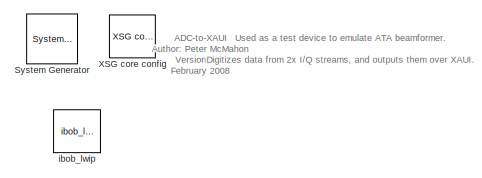
[diagram: root canvas - part 1/5, top left region]
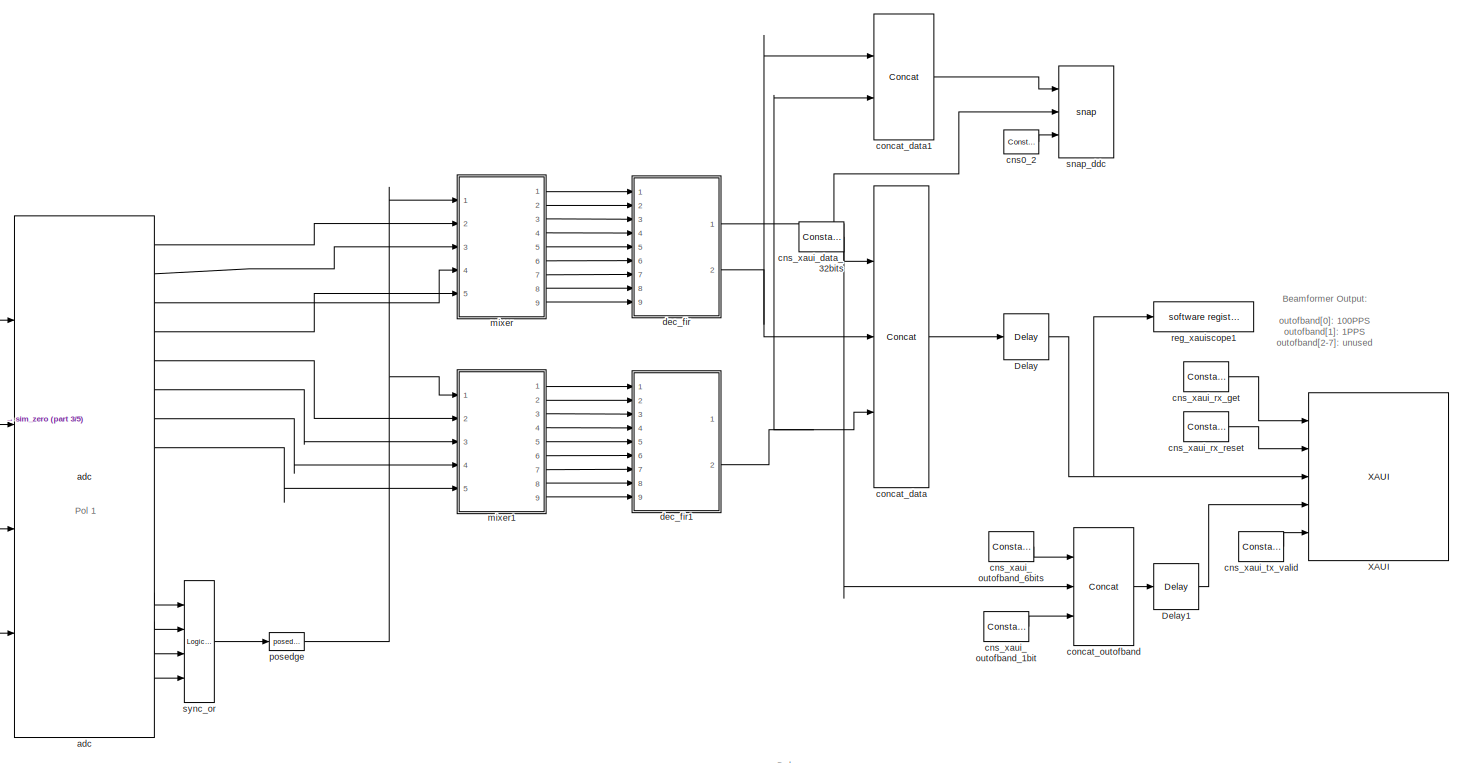
[diagram: root canvas - part 2/5, top left region]
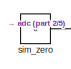
[diagram: root canvas - part 3/5, top left region]
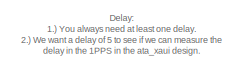
[diagram: root canvas - part 4/5, middle left region]
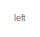
[diagram: root canvas - part 5/5, bottom right region]
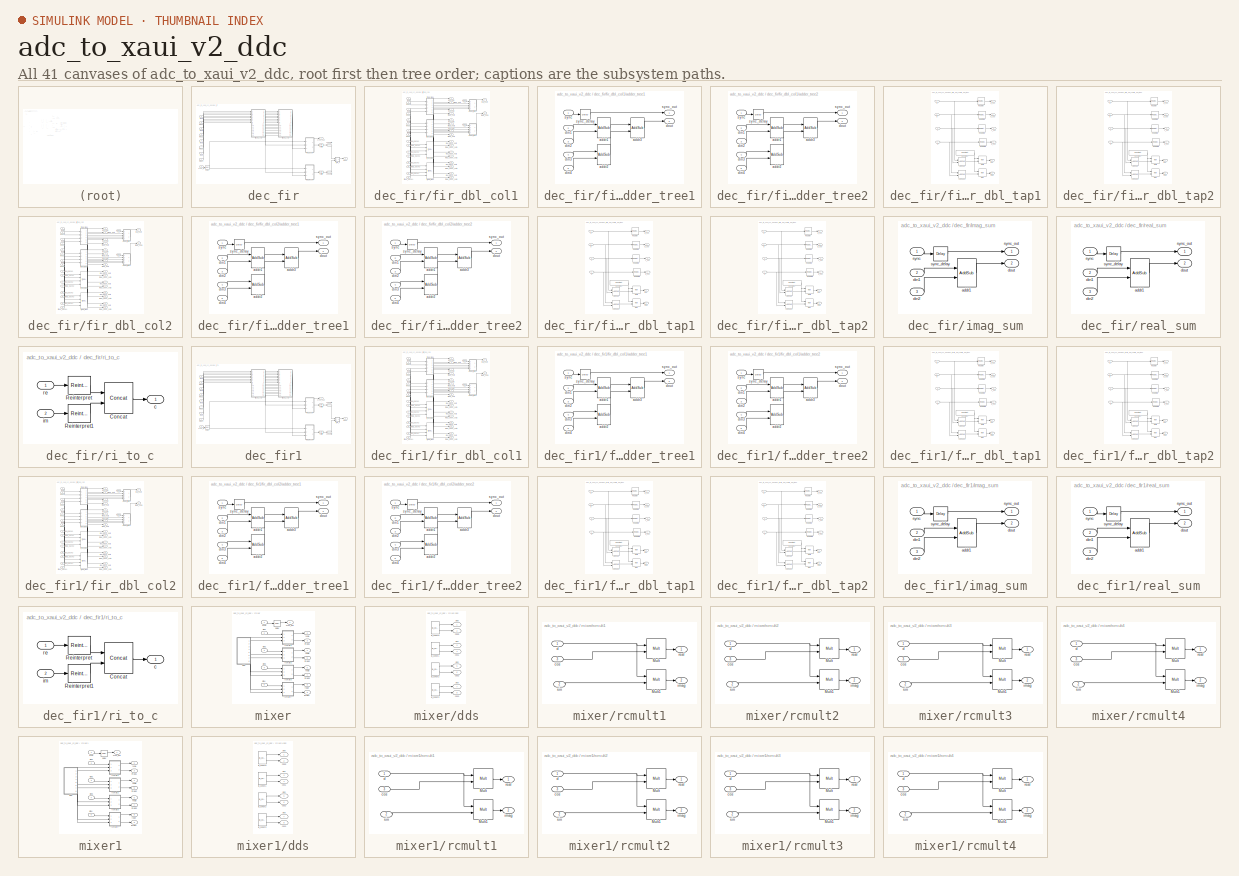
[diagram: thumbnail index - all 41 canvases of the model, root first then tree order]
MODEL adc_to_xaui_v2_ddc
KIND model
BLOCK [Reference]  System Generator  REF=xbsIndex_r3/ System Generator
  AttributesFormatString = System\\nGenerator
  Ports = []
  ShowPortLabels = on
  SourceBlock = xbsIndex_r3/ System Generator
  SourceType = Xilinx System Generator
  Tag = genX
  UserData = DataTag0
  UserDataPersistent = on
  core_generation = According to Block Masks
  dbl_ovrd = According to Block Masks
  deprecated_control = off
  directory = ./adc_to_xaui_v2_ddc/sysgen
  eval_field = 0
  incr_netlist = off
  package = ff1152
  part = xc2vp50
  run_coregen = off
  simulink_period = 1
  speed = -7
  synthesis_tool = XST
  sysclk_period = 8
  testbench = off
  trim_vbits = Everywhere in SubSystem
  xilinxfamily = Virtex2P
BLOCK [Reference] Delay  REF=xbsIndex_r3/Delay
  Ports = [1, 1]
  SourceBlock = xbsIndex_r3/Delay
  SourceType = Xilinx Delay Block
  accept_only_valid = off
  dbl_ovrd = off
  en = off
  explicit_period = off
  init_zero = on
  latency = 5
  period = 1
  reg_retiming = off
  show_param = off
  xl_area = [0, 0, 0, 0, 0, 0, 0]
  xl_use_area = off
BLOCK [Reference] Delay1  REF=xbsIndex_r3/Delay
  Ports = [1, 1]
  SourceBlock = xbsIndex_r3/Delay
  SourceType = Xilinx Delay Block
  accept_only_valid = off
  dbl_ovrd = off
  en = off
  explicit_period = off
  init_zero = on
  latency = 5
  period = 1
  reg_retiming = off
  show_param = off
  xl_area = [0, 0, 0, 0, 0, 0, 0]
  xl_use_area = off
BLOCK [Reference] XAUI  REF=xps_library/XAUI  (lib defined in mdl_00b5cec29cd0, mdl_02ab6ecaa3d1, +5 more)
  Ports = [5, 7]
  ShowPortLabels = on
  SourceBlock = xps_library/XAUI
  SourceType = xaui
  Tag = xps:xaui
  demux = 1
  port = iBOB:1
  pre_emph = 2
  show_param = on
  swing = 800
BLOCK [Reference] XSG core config  REF=xps_library/XSG core config  (lib defined in mdl_00b5cec29cd0, mdl_02ab6ecaa3d1, +5 more)
  Ports = []
  ShowPortLabels = on
  SourceBlock = xps_library/XSG core config
  SourceType = xsg core config
  Tag = xps:xsg
  clk_rate = 125
  clk_src = adc0_clk
  gpio_clk_bit_index = 0
  gpio_clk_io_group = iBOB:sma
  hw_sys = iBOB
  ibob_linux = off
  mpc_type = powerpc405
  sample_period = 1
  synthesis_tool = XST
BLOCK [Reference] adc  REF=xps_library/adc  (lib defined in mdl_00b5cec29cd0, mdl_02ab6ecaa3d1, +5 more)
  Ports = [4, 17]
  ShowPortLabels = on
  SourceBlock = xps_library/adc
  SourceType = adc
  Tag = xps:adc
  adc_brd = iBOB:adc0
  adc_clk_rate = 500
  adc_interleave = off
  sample_period = 1
BLOCK [Reference] cns0_2  REF=xbsIndex_r3/Constant
  Ports = [0, 1]
  SourceBlock = xbsIndex_r3/Constant
  SourceType = Xilinx Constant Block
  arith_type = Boolean
  bin_pt = 0
  carry = CIN
  const = 0
  dbl_ovrd = off
  equ = P=C
  explicit_period = on
  inp1 = P
  inp2 = PCIN>>17
  iostate = 0
  n_bits = 1
  opr = +
  opselect = C
  period = 1
BLOCK [Reference] cns_xaui_data_32bits  REF=xbsIndex_r3/Constant
  Ports = [0, 1]
  SourceBlock = xbsIndex_r3/Constant
  SourceType = Xilinx Constant Block
  arith_type = Unsigned
  bin_pt = 0
  carry = CIN
  const = 0
  dbl_ovrd = off
  equ = P=C
  explicit_period = on
  inp1 = P
  inp2 = PCIN>>17
  iostate = 0
  n_bits = 32
  opr = +
  opselect = C
  period = 1
BLOCK [Reference] cns_xaui_outofband_1bit  REF=xbsIndex_r3/Constant
  Ports = [0, 1]
  SourceBlock = xbsIndex_r3/Constant
  SourceType = Xilinx Constant Block
  arith_type = Unsigned
  bin_pt = 0
  carry = CIN
  const = 0
  dbl_ovrd = off
  equ = P=C
  explicit_period = on
  inp1 = P
  inp2 = PCIN>>17
  iostate = 0
  n_bits = 1
  opr = +
  opselect = C
  period = 1
BLOCK [Reference] cns_xaui_outofband_6bits  REF=xbsIndex_r3/Constant
  Ports = [0, 1]
  SourceBlock = xbsIndex_r3/Constant
  SourceType = Xilinx Constant Block
  arith_type = Unsigned
  bin_pt = 0
  carry = CIN
  const = 0
  dbl_ovrd = off
  equ = P=C
  explicit_period = on
  inp1 = P
  inp2 = PCIN>>17
  iostate = 0
  n_bits = 6
  opr = +
  opselect = C
  period = 1
BLOCK [Reference] cns_xaui_rx_get  REF=xbsIndex_r3/Constant
  Ports = [0, 1]
  SourceBlock = xbsIndex_r3/Constant
  SourceType = Xilinx Constant Block
  arith_type = Boolean
  bin_pt = 0
  carry = CIN
  const = 1
  dbl_ovrd = off
  equ = P=C
  explicit_period = on
  inp1 = P
  inp2 = PCIN>>17
  iostate = 0
  n_bits = 1
  opr = +
  opselect = C
  period = 1
BLOCK [Reference] cns_xaui_rx_reset  REF=xbsIndex_r3/Constant
  Ports = [0, 1]
  SourceBlock = xbsIndex_r3/Constant
  SourceType = Xilinx Constant Block
  arith_type = Boolean
  bin_pt = 0
  carry = CIN
  const = 0
  dbl_ovrd = off
  equ = P=C
  explicit_period = on
  inp1 = P
  inp2 = PCIN>>17
  iostate = 0
  n_bits = 1
  opr = +
  opselect = C
  period = 1
BLOCK [Reference] cns_xaui_tx_valid  REF=xbsIndex_r3/Constant
  Ports = [0, 1]
  SourceBlock = xbsIndex_r3/Constant
  SourceType = Xilinx Constant Block
  arith_type = Boolean
  bin_pt = 0
  carry = CIN
  const = 1
  dbl_ovrd = off
  equ = P=C
  explicit_period = on
  inp1 = P
  inp2 = PCIN>>17
  iostate = 0
  n_bits = 8
  opr = +
  opselect = C
  period = 1
BLOCK [Reference] concat_data  REF=xbsIndex_r3/Concat
  Ports = [3, 1]
  SourceBlock = xbsIndex_r3/Concat
  SourceType = Xilinx Bus Concatenator
  dbl_ovrd = off
  explicit_period = off
  num_inputs = 3
  period = 1
BLOCK [Reference] concat_data1  REF=xbsIndex_r3/Concat
  Ports = [2, 1]
  SourceBlock = xbsIndex_r3/Concat
  SourceType = Xilinx Bus Concatenator
  dbl_ovrd = off
  explicit_period = off
  num_inputs = 2
  period = 1
BLOCK [Reference] concat_outofband  REF=xbsIndex_r3/Concat
  Ports = [3, 1]
  SourceBlock = xbsIndex_r3/Concat
  SourceType = Xilinx Bus Concatenator
  dbl_ovrd = off
  explicit_period = off
  num_inputs = 3
  period = 1
BLOCK [SubSystem] dec_fir
  AncestorBlock = casper_library/Downconverter/dec_fir
  AttributesFormatString = 16 taps\n8_7 r/i
  MaskCallbackString = |||||
  MaskDescription = FIR filter which can handle multiple time samples in parallel and decimates down to 1 time sample.  If coefficients are symmetric, will automatically fold before multiplying.
  MaskEnableString = on,on,on,on,on,on
  MaskHelp = \n<h1>Description</h1>\n\nFIR filter which can handle multiple time samples in parallel and decimates down to 1 time sample.  If coefficients are symmetric, will automatically fold before multiplying.\n\n<h2>Mask Parameters</h2>\n\n<b>Number of Parallel Streams</b> (n_inputs): The number of time samples which arrive in parallel.<br><br>\n\n<b>Coefficients</b> (coeff): The FIR coefficients.  If thi...<+492ch>
  MaskIconFrame = on
  MaskIconOpaque = on
  MaskIconRotate = none
  MaskIconUnits = autoscale
  MaskInitialization = dec_fir_init(gcb, ...\n    'n_inputs', n_inputs, ...\n    'coeff', coeff, ...\n    'n_bits', n_bits, ...\n    'quantization', quantization, ...\n    'add_latency', add_latency, ...\n    'mult_latency', mult_latency);
  MaskPromptString = Number of Parallel Streams|Coefficients|Bit Width Out|Quantization Behavior|Add Latency|Mult Latency
  MaskSelfModifiable = on
  MaskStyleString = edit,edit,edit,popup(Truncate|Round  (unbiased: +/- Inf)|Round  (unbiased: Even Values)),edit,edit
  MaskTabNameString = ,,,,,
  MaskToolTipString = on,on,on,on,on,on
  MaskTunableValueString = on,on,on,on,on,on
  MaskType = dec_fir
  MaskValueString = 4|.9 * [-0.0161   -0.0428   -0.0504   -0.0249    0.0354    0.1170    0.1948    0.2422    0.2422    0.1948    0.1170  0.0354   -0.0249   -0.0504   -0.0428   -0.0161]|8|Round  (unbiased: Even Values)|2|2
  MaskVarAliasString = ,,,,,
  MaskVariables = n_inputs=@1;coeff=@2;n_bits=@3;quantization=&4;add_latency=@5;mult_latency=@6;
  MaskVisibilityString = on,on,on,on,on,on
  MinAlgLoopOccurrences = off
  Ports = [9, 2]
  RTWSystemCode = Auto
  TreatAsAtomicUnit = off
  UserData = DataTag1
  UserDataPersistent = on
BLOCK [Reference] dec_fir/convert1  REF=xbsIndex_r3/Convert
  Ports = [1, 1]
  SourceBlock = xbsIndex_r3/Convert
  SourceType = Xilinx Converter Block
  arith_type = Signed  (2's comp)
  bin_pt = 7
  dbl_ovrd = off
  explicit_period = on
  inserted_by_tool = off
  latency = 2
  n_bits = 8
  overflow = Saturate
  period = 1
  pipeline = on
  quantization = Round  (unbiased: Even Values)
  show_param = on
  xl_area = [0, 0, 0, 0, 0, 0, 0]
  xl_use_area = off
BLOCK [Reference] dec_fir/convert2  REF=xbsIndex_r3/Convert
  Ports = [1, 1]
  SourceBlock = xbsIndex_r3/Convert
  SourceType = Xilinx Converter Block
  arith_type = Signed  (2's comp)
  bin_pt = 7
  dbl_ovrd = off
  explicit_period = on
  inserted_by_tool = off
  latency = 2
  n_bits = 8
  overflow = Saturate
  period = 1
  pipeline = on
  quantization = Round  (unbiased: Even Values)
  show_param = on
  xl_area = [0, 0, 0, 0, 0, 0, 0]
  xl_use_area = off
BLOCK [Reference] dec_fir/delay  REF=xbsIndex_r3/Delay
  Ports = [1, 1]
  SourceBlock = xbsIndex_r3/Delay
  SourceType = Xilinx Delay Block
  accept_only_valid = off
  dbl_ovrd = off
  en = off
  explicit_period = off
  init_zero = on
  latency = 12
  period = 1
  reg_retiming = off
  show_param = off
  xl_area = [0, 0, 0, 0, 0, 0, 0]
  xl_use_area = off
BLOCK [Outport] dec_fir/dout
  BusOutputAsStruct = off
  IconDisplay = Port number
  Port = 2
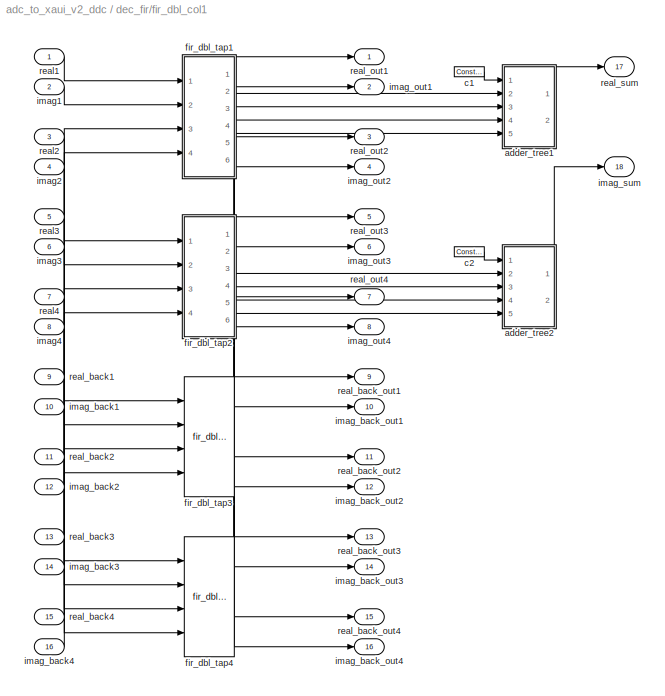
BLOCK [SubSystem] dec_fir/fir_dbl_col1
  AncestorBlock = casper_library/Downconverter/fir_dbl_col
  MaskCallbackString = |||
  MaskEnableString = on,on,on,on
  MaskIconFrame = on
  MaskIconOpaque = on
  MaskIconRotate = none
  MaskIconUnits = autoscale
  MaskInitialization = fir_dbl_col_init(gcb, ...\n    'n_inputs', n_inputs, ...\n    'coeff', coeff, ...\n    'mult_latency', mult_latency, ...\n    'add_latency', add_latency);
  MaskPromptString = Inputs|Coefficients|Add latency|Mult Latency
  MaskSelfModifiable = on
  MaskStyleString = edit,edit,edit,edit
  MaskTabNameString = ,,,
  MaskToolTipString = on,on,on,on
  MaskTunableValueString = on,on,on,on
  MaskType = fir_dbl_col
  MaskValueString = 4|[-0.02241 -0.04536 -0.03852 -0.01449]|2|2
  MaskVarAliasString = ,,,
  MaskVariables = n_inputs=@1;coeff=@2;add_latency=@3;mult_latency=@4;
  MaskVisibilityString = on,on,on,on
  MinAlgLoopOccurrences = off
  Ports = [16, 18]
  RTWSystemCode = Auto
  TreatAsAtomicUnit = off
  UserData = DataTag2
  UserDataPersistent = on
BLOCK [SubSystem] dec_fir/fir_dbl_col1/adder_tree1
  AncestorBlock = casper_library/Misc/adder_tree
  AttributesFormatString = latency 4
  MaskCallbackString = |
  MaskDescription = Sums all inputs using a tree of adds and delays.
  MaskEnableString = on,on
  MaskHelp = eval('xlWeb([getenv(''MLIB_ROOT''), ''<path>''])')
  MaskIconFrame = on
  MaskIconOpaque = on
  MaskIconRotate = none
  MaskIconUnits = autoscale
  MaskInitialization = adder_tree_init(gcb, ...\n    'n_inputs', n_inputs, ...\n    'latency', latency);
  MaskPromptString = Number of Inputs|Add Latency
  MaskSelfModifiable = on
  MaskStyleString = edit,edit
  MaskTabNameString = ,
  MaskToolTipString = on,on
  MaskTunableValueString = on,on
  MaskType = adder_tree
  MaskValueString = 4|2
  MaskVarAliasString = ,
  MaskVariables = n_inputs=@1;latency=@2;
  MaskVisibilityString = on,on
  MinAlgLoopOccurrences = off
  Ports = [5, 2]
  RTWSystemCode = Auto
  TreatAsAtomicUnit = off
  UserData = DataTag3
  UserDataPersistent = on
BLOCK [Reference] dec_fir/fir_dbl_col1/adder_tree1/addr1  REF=xbsIndex_r3/AddSub
  Ports = [2, 1]
  SourceBlock = xbsIndex_r3/AddSub
  SourceType = Xilinx Adder/Subtractor
  arith_type = Unsigned
  bin_pt = 2
  dbl_ovrd = off
  en = off
  explicit_period = off
  gen_core = off
  latency = 2
  mode = Addition
  n_bits = 8
  overflow = Wrap
  period = 1
  pipeline = on
  precision = Full
  quantization = Truncate
  show_param = off
  use_carryin = off
  use_carryout = off
  use_core = on
  use_rpm = on
  xl_area = [0, 0, 0, 0, 0, 0, 0]
  xl_use_area = off
BLOCK [Reference] dec_fir/fir_dbl_col1/adder_tree1/addr2  REF=xbsIndex_r3/AddSub
  Ports = [2, 1]
  SourceBlock = xbsIndex_r3/AddSub
  SourceType = Xilinx Adder/Subtractor
  arith_type = Unsigned
  bin_pt = 2
  dbl_ovrd = off
  en = off
  explicit_period = off
  gen_core = off
  latency = 2
  mode = Addition
  n_bits = 8
  overflow = Wrap
  period = 1
  pipeline = on
  precision = Full
  quantization = Truncate
  show_param = off
  use_carryin = off
  use_carryout = off
  use_core = on
  use_rpm = on
  xl_area = [0, 0, 0, 0, 0, 0, 0]
  xl_use_area = off
BLOCK [Reference] dec_fir/fir_dbl_col1/adder_tree1/addr3  REF=xbsIndex_r3/AddSub
  Ports = [2, 1]
  SourceBlock = xbsIndex_r3/AddSub
  SourceType = Xilinx Adder/Subtractor
  arith_type = Unsigned
  bin_pt = 2
  dbl_ovrd = off
  en = off
  explicit_period = off
  gen_core = off
  latency = 2
  mode = Addition
  n_bits = 8
  overflow = Wrap
  period = 1
  pipeline = on
  precision = Full
  quantization = Truncate
  show_param = off
  use_carryin = off
  use_carryout = off
  use_core = on
  use_rpm = on
  xl_area = [0, 0, 0, 0, 0, 0, 0]
  xl_use_area = off
BLOCK [Inport] dec_fir/fir_dbl_col1/adder_tree1/din1
  IconDisplay = Port number
  LatchInput = off
  Port = 2
BLOCK [Inport] dec_fir/fir_dbl_col1/adder_tree1/din2
  IconDisplay = Port number
  LatchInput = off
  Port = 3
BLOCK [Inport] dec_fir/fir_dbl_col1/adder_tree1/din3
  IconDisplay = Port number
  LatchInput = off
  Port = 4
BLOCK [Inport] dec_fir/fir_dbl_col1/adder_tree1/din4
  IconDisplay = Port number
  LatchInput = off
  Port = 5
BLOCK [Outport] dec_fir/fir_dbl_col1/adder_tree1/dout
  BusOutputAsStruct = off
  IconDisplay = Port number
  Port = 2
BLOCK [Inport] dec_fir/fir_dbl_col1/adder_tree1/sync
  IconDisplay = Port number
  LatchInput = off
  Port = 1
BLOCK [Reference] dec_fir/fir_dbl_col1/adder_tree1/sync_delay  REF=xbsIndex_r3/Delay
  Ports = [1, 1]
  SourceBlock = xbsIndex_r3/Delay
  SourceType = Xilinx Delay Block
  accept_only_valid = off
  dbl_ovrd = off
  en = off
  explicit_period = off
  init_zero = on
  latency = 4
  period = 1
  reg_retiming = off
  show_param = off
  xl_area = [0, 0, 0, 0, 0, 0, 0]
  xl_use_area = off
BLOCK [Outport] dec_fir/fir_dbl_col1/adder_tree1/sync_out
  BusOutputAsStruct = off
  IconDisplay = Port number
BLOCK [SubSystem] dec_fir/fir_dbl_col1/adder_tree2
  AncestorBlock = casper_library/Misc/adder_tree
  AttributesFormatString = latency 4
  MaskCallbackString = |
  MaskDescription = Sums all inputs using a tree of adds and delays.
  MaskEnableString = on,on
  MaskHelp = eval('xlWeb([getenv(''MLIB_ROOT''), ''<path>''])')
  MaskIconFrame = on
  MaskIconOpaque = on
  MaskIconRotate = none
  MaskIconUnits = autoscale
  MaskInitialization = adder_tree_init(gcb, ...\n    'n_inputs', n_inputs, ...\n    'latency', latency);
  MaskPromptString = Number of Inputs|Add Latency
  MaskSelfModifiable = on
  MaskStyleString = edit,edit
  MaskTabNameString = ,
  MaskToolTipString = on,on
  MaskTunableValueString = on,on
  MaskType = adder_tree
  MaskValueString = 4|2
  MaskVarAliasString = ,
  MaskVariables = n_inputs=@1;latency=@2;
  MaskVisibilityString = on,on
  MinAlgLoopOccurrences = off
  Ports = [5, 2]
  RTWSystemCode = Auto
  TreatAsAtomicUnit = off
  UserData = DataTag4
  UserDataPersistent = on
BLOCK [Reference] dec_fir/fir_dbl_col1/adder_tree2/addr1  REF=xbsIndex_r3/AddSub
  Ports = [2, 1]
  SourceBlock = xbsIndex_r3/AddSub
  SourceType = Xilinx Adder/Subtractor
  arith_type = Unsigned
  bin_pt = 2
  dbl_ovrd = off
  en = off
  explicit_period = off
  gen_core = off
  latency = 2
  mode = Addition
  n_bits = 8
  overflow = Wrap
  period = 1
  pipeline = on
  precision = Full
  quantization = Truncate
  show_param = off
  use_carryin = off
  use_carryout = off
  use_core = on
  use_rpm = on
  xl_area = [0, 0, 0, 0, 0, 0, 0]
  xl_use_area = off
BLOCK [Reference] dec_fir/fir_dbl_col1/adder_tree2/addr2  REF=xbsIndex_r3/AddSub
  Ports = [2, 1]
  SourceBlock = xbsIndex_r3/AddSub
  SourceType = Xilinx Adder/Subtractor
  arith_type = Unsigned
  bin_pt = 2
  dbl_ovrd = off
  en = off
  explicit_period = off
  gen_core = off
  latency = 2
  mode = Addition
  n_bits = 8
  overflow = Wrap
  period = 1
  pipeline = on
  precision = Full
  quantization = Truncate
  show_param = off
  use_carryin = off
  use_carryout = off
  use_core = on
  use_rpm = on
  xl_area = [0, 0, 0, 0, 0, 0, 0]
  xl_use_area = off
BLOCK [Reference] dec_fir/fir_dbl_col1/adder_tree2/addr3  REF=xbsIndex_r3/AddSub
  Ports = [2, 1]
  SourceBlock = xbsIndex_r3/AddSub
  SourceType = Xilinx Adder/Subtractor
  arith_type = Unsigned
  bin_pt = 2
  dbl_ovrd = off
  en = off
  explicit_period = off
  gen_core = off
  latency = 2
  mode = Addition
  n_bits = 8
  overflow = Wrap
  period = 1
  pipeline = on
  precision = Full
  quantization = Truncate
  show_param = off
  use_carryin = off
  use_carryout = off
  use_core = on
  use_rpm = on
  xl_area = [0, 0, 0, 0, 0, 0, 0]
  xl_use_area = off
BLOCK [Inport] dec_fir/fir_dbl_col1/adder_tree2/din1
  IconDisplay = Port number
  LatchInput = off
  Port = 2
BLOCK [Inport] dec_fir/fir_dbl_col1/adder_tree2/din2
  IconDisplay = Port number
  LatchInput = off
  Port = 3
BLOCK [Inport] dec_fir/fir_dbl_col1/adder_tree2/din3
  IconDisplay = Port number
  LatchInput = off
  Port = 4
BLOCK [Inport] dec_fir/fir_dbl_col1/adder_tree2/din4
  IconDisplay = Port number
  LatchInput = off
  Port = 5
BLOCK [Outport] dec_fir/fir_dbl_col1/adder_tree2/dout
  BusOutputAsStruct = off
  IconDisplay = Port number
  Port = 2
BLOCK [Inport] dec_fir/fir_dbl_col1/adder_tree2/sync
  IconDisplay = Port number
  LatchInput = off
  Port = 1
BLOCK [Reference] dec_fir/fir_dbl_col1/adder_tree2/sync_delay  REF=xbsIndex_r3/Delay
  Ports = [1, 1]
  SourceBlock = xbsIndex_r3/Delay
  SourceType = Xilinx Delay Block
  accept_only_valid = off
  dbl_ovrd = off
  en = off
  explicit_period = off
  init_zero = on
  latency = 4
  period = 1
  reg_retiming = off
  show_param = off
  xl_area = [0, 0, 0, 0, 0, 0, 0]
  xl_use_area = off
BLOCK [Outport] dec_fir/fir_dbl_col1/adder_tree2/sync_out
  BusOutputAsStruct = off
  IconDisplay = Port number
BLOCK [Reference] dec_fir/fir_dbl_col1/c1  REF=xbsIndex_r3/Constant
  Ports = [0, 1]
  SourceBlock = xbsIndex_r3/Constant
  SourceType = Xilinx Constant Block
  arith_type = Unsigned
  bin_pt = 0
  carry = CIN
  const = 1
  dbl_ovrd = off
  equ = P=C
  explicit_period = on
  inp1 = P
  inp2 = PCIN>>17
  iostate = 0
  n_bits = 1
  opr = +
  opselect = C
  period = 1
BLOCK [Reference] dec_fir/fir_dbl_col1/c2  REF=xbsIndex_r3/Constant
  Ports = [0, 1]
  SourceBlock = xbsIndex_r3/Constant
  SourceType = Xilinx Constant Block
  arith_type = Unsigned
  bin_pt = 0
  carry = CIN
  const = 1
  dbl_ovrd = off
  equ = P=C
  explicit_period = on
  inp1 = P
  inp2 = PCIN>>17
  iostate = 0
  n_bits = 1
  opr = +
  opselect = C
  period = 1
BLOCK [SubSystem] dec_fir/fir_dbl_col1/fir_dbl_tap1
  AncestorBlock = casper_library/Downconverter/fir_dbl_tap
  MaskCallbackString = ||
  MaskEnableString = on,on,on
  MaskIconFrame = on
  MaskIconOpaque = on
  MaskIconRotate = none
  MaskIconUnits = autoscale
  MaskPromptString = factor|Add latency|Mult latency
  MaskSelfModifiable = on
  MaskStyleString = edit,edit,edit
  MaskTabNameString = ,,
  MaskToolTipString = on,on,on
  MaskTunableValueString = on,on,on
  MaskType = fir_dbl_tap
  MaskValueString = -0.02241|2|2
  MaskVarAliasString = ,,
  MaskVariables = factor=@1;add_latency=@2;mult_latency=@3;
  MaskVisibilityString = on,on,on
  MinAlgLoopOccurrences = off
  Ports = [4, 6]
  RTWSystemCode = Auto
  TreatAsAtomicUnit = off
BLOCK [Reference] dec_fir/fir_dbl_col1/fir_dbl_tap1/AddSub  REF=xbsIndex_r3/AddSub
  Ports = [2, 1]
  SourceBlock = xbsIndex_r3/AddSub
  SourceType = Xilinx Adder/Subtractor
  arith_type = Signed  (2's comp)
  bin_pt = 16
  dbl_ovrd = off
  en = off
  explicit_period = on
  gen_core = off
  latency = add_latency
  mode = Addition
  n_bits = 18
  overflow = Wrap
  period = 1
  pipeline = off
  precision = User Defined
  quantization = Truncate
  show_param = off
  use_carryin = off
  use_carryout = off
  use_core = on
  use_rpm = on
  xl_area = [0, 0, 0, 0, 0, 0, 0]
  xl_use_area = off
BLOCK [Reference] dec_fir/fir_dbl_col1/fir_dbl_tap1/AddSub1  REF=xbsIndex_r3/AddSub
  Ports = [2, 1]
  SourceBlock = xbsIndex_r3/AddSub
  SourceType = Xilinx Adder/Subtractor
  arith_type = Signed  (2's comp)
  bin_pt = 16
  dbl_ovrd = off
  en = off
  explicit_period = on
  gen_core = off
  latency = add_latency
  mode = Addition
  n_bits = 18
  overflow = Wrap
  period = 1
  pipeline = off
  precision = User Defined
  quantization = Truncate
  show_param = off
  use_carryin = off
  use_carryout = off
  use_core = on
  use_rpm = on
  xl_area = [0, 0, 0, 0, 0, 0, 0]
  xl_use_area = off
BLOCK [Reference] dec_fir/fir_dbl_col1/fir_dbl_tap1/Constant  REF=xbsIndex_r3/Constant
  Ports = [0, 1]
  SourceBlock = xbsIndex_r3/Constant
  SourceType = Xilinx Constant Block
  arith_type = Signed  (2's comp)
  bin_pt = 17
  carry = CIN
  const = factor
  dbl_ovrd = off
  equ = P=C
  explicit_period = on
  inp1 = P
  inp2 = PCIN>>17
  iostate = 0
  n_bits = 18
  opr = +
  opselect = C
  period = 1
BLOCK [Reference] dec_fir/fir_dbl_col1/fir_dbl_tap1/Mult  REF=xbsIndex_r3/Mult
  Ports = [2, 1]
  SourceBlock = xbsIndex_r3/Mult
  SourceType = Xilinx Multiplier
  arith_type = Signed  (2's comp)
  bin_pt = 17
  dbl_ovrd = off
  en = off
  explicit_period = off
  gen_core = off
  latency = mult_latency
  mult_type = Parallel
  n_bits = 18
  overflow = Wrap
  oversample = 2
  period = 1
  pipeline = on
  placement_style = Rectangular Shape
  precision = Full
  quantization = Truncate
  show_param = on
  use_embedded = on
  use_rpm = off
  xl_area = [0, 0, 0, 0, 0, 0, 0]
  xl_use_area = off
BLOCK [Reference] dec_fir/fir_dbl_col1/fir_dbl_tap1/Mult1  REF=xbsIndex_r3/Mult
  Ports = [2, 1]
  SourceBlock = xbsIndex_r3/Mult
  SourceType = Xilinx Multiplier
  arith_type = Signed  (2's comp)
  bin_pt = 17
  dbl_ovrd = off
  en = off
  explicit_period = off
  gen_core = off
  latency = mult_latency
  mult_type = Parallel
  n_bits = 18
  overflow = Wrap
  oversample = 2
  period = 1
  pipeline = on
  placement_style = Rectangular Shape
  precision = Full
  quantization = Truncate
  show_param = on
  use_embedded = on
  use_rpm = off
  xl_area = [0, 0, 0, 0, 0, 0, 0]
  xl_use_area = off
BLOCK [Reference] dec_fir/fir_dbl_col1/fir_dbl_tap1/Register  REF=xbsIndex_r3/Register
  Ports = [1, 1]
  SourceBlock = xbsIndex_r3/Register
  SourceType = Xilinx Register Block
  dbl_ovrd = off
  en = off
  explicit_period = on
  init = 0
  out_en = off
  period = 1
  reg_only_valid = off
  rst = off
  show_param = off
  xl_area = [0, 0, 0, 0, 0, 0, 0]
  xl_use_area = off
BLOCK [Reference] dec_fir/fir_dbl_col1/fir_dbl_tap1/Register1  REF=xbsIndex_r3/Register
  Ports = [1, 1]
  SourceBlock = xbsIndex_r3/Register
  SourceType = Xilinx Register Block
  dbl_ovrd = off
  en = off
  explicit_period = on
  init = 0
  out_en = off
  period = 1
  reg_only_valid = off
  rst = off
  show_param = off
  xl_area = [0, 0, 0, 0, 0, 0, 0]
  xl_use_area = off
BLOCK [Reference] dec_fir/fir_dbl_col1/fir_dbl_tap1/Register2  REF=xbsIndex_r3/Register
  Ports = [1, 1]
  SourceBlock = xbsIndex_r3/Register
  SourceType = Xilinx Register Block
  dbl_ovrd = off
  en = off
  explicit_period = on
  init = 0
  out_en = off
  period = 1
  reg_only_valid = off
  rst = off
  show_param = off
  xl_area = [0, 0, 0, 0, 0, 0, 0]
  xl_use_area = off
BLOCK [Reference] dec_fir/fir_dbl_col1/fir_dbl_tap1/Register3  REF=xbsIndex_r3/Register
  Ports = [1, 1]
  SourceBlock = xbsIndex_r3/Register
  SourceType = Xilinx Register Block
  dbl_ovrd = off
  en = off
  explicit_period = on
  init = 0
  out_en = off
  period = 1
  reg_only_valid = off
  rst = off
  show_param = off
  xl_area = [0, 0, 0, 0, 0, 0, 0]
  xl_use_area = off
BLOCK [Inport] dec_fir/fir_dbl_col1/fir_dbl_tap1/a
  IconDisplay = Port number
  LatchInput = off
  Port = 1
BLOCK [Outport] dec_fir/fir_dbl_col1/fir_dbl_tap1/a_out
  BusOutputAsStruct = off
  IconDisplay = Port number
BLOCK [Inport] dec_fir/fir_dbl_col1/fir_dbl_tap1/b
  IconDisplay = Port number
  LatchInput = off
  Port = 2
BLOCK [Outport] dec_fir/fir_dbl_col1/fir_dbl_tap1/b_out
  BusOutputAsStruct = off
  IconDisplay = Port number
  Port = 2
BLOCK [Inport] dec_fir/fir_dbl_col1/fir_dbl_tap1/c
  IconDisplay = Port number
  LatchInput = off
  Port = 3
BLOCK [Outport] dec_fir/fir_dbl_col1/fir_dbl_tap1/c_out
  BusOutputAsStruct = off
  IconDisplay = Port number
  Port = 3
BLOCK [Inport] dec_fir/fir_dbl_col1/fir_dbl_tap1/d
  IconDisplay = Port number
  LatchInput = off
  Port = 4
BLOCK [Outport] dec_fir/fir_dbl_col1/fir_dbl_tap1/d_out
  BusOutputAsStruct = off
  IconDisplay = Port number
  Port = 4
BLOCK [Outport] dec_fir/fir_dbl_col1/fir_dbl_tap1/imag
  BusOutputAsStruct = off
  IconDisplay = Port number
  Port = 6
BLOCK [Outport] dec_fir/fir_dbl_col1/fir_dbl_tap1/real
  BusOutputAsStruct = off
  IconDisplay = Port number
  Port = 5
BLOCK [SubSystem] dec_fir/fir_dbl_col1/fir_dbl_tap2
  AncestorBlock = casper_library/Downconverter/fir_dbl_tap
  MaskCallbackString = ||
  MaskEnableString = on,on,on
  MaskIconFrame = on
  MaskIconOpaque = on
  MaskIconRotate = none
  MaskIconUnits = autoscale
  MaskPromptString = factor|Add latency|Mult latency
  MaskSelfModifiable = on
  MaskStyleString = edit,edit,edit
  MaskTabNameString = ,,
  MaskToolTipString = on,on,on
  MaskTunableValueString = on,on,on
  MaskType = fir_dbl_tap
  MaskValueString = -0.04536|2|2
  MaskVarAliasString = ,,
  MaskVariables = factor=@1;add_latency=@2;mult_latency=@3;
  MaskVisibilityString = on,on,on
  MinAlgLoopOccurrences = off
  Ports = [4, 6]
  RTWSystemCode = Auto
  TreatAsAtomicUnit = off
BLOCK [Reference] dec_fir/fir_dbl_col1/fir_dbl_tap2/AddSub  REF=xbsIndex_r3/AddSub
  Ports = [2, 1]
  SourceBlock = xbsIndex_r3/AddSub
  SourceType = Xilinx Adder/Subtractor
  arith_type = Signed  (2's comp)
  bin_pt = 16
  dbl_ovrd = off
  en = off
  explicit_period = on
  gen_core = off
  latency = add_latency
  mode = Addition
  n_bits = 18
  overflow = Wrap
  period = 1
  pipeline = off
  precision = User Defined
  quantization = Truncate
  show_param = off
  use_carryin = off
  use_carryout = off
  use_core = on
  use_rpm = on
  xl_area = [0, 0, 0, 0, 0, 0, 0]
  xl_use_area = off
BLOCK [Reference] dec_fir/fir_dbl_col1/fir_dbl_tap2/AddSub1  REF=xbsIndex_r3/AddSub
  Ports = [2, 1]
  SourceBlock = xbsIndex_r3/AddSub
  SourceType = Xilinx Adder/Subtractor
  arith_type = Signed  (2's comp)
  bin_pt = 16
  dbl_ovrd = off
  en = off
  explicit_period = on
  gen_core = off
  latency = add_latency
  mode = Addition
  n_bits = 18
  overflow = Wrap
  period = 1
  pipeline = off
  precision = User Defined
  quantization = Truncate
  show_param = off
  use_carryin = off
  use_carryout = off
  use_core = on
  use_rpm = on
  xl_area = [0, 0, 0, 0, 0, 0, 0]
  xl_use_area = off
BLOCK [Reference] dec_fir/fir_dbl_col1/fir_dbl_tap2/Constant  REF=xbsIndex_r3/Constant
  Ports = [0, 1]
  SourceBlock = xbsIndex_r3/Constant
  SourceType = Xilinx Constant Block
  arith_type = Signed  (2's comp)
  bin_pt = 17
  carry = CIN
  const = factor
  dbl_ovrd = off
  equ = P=C
  explicit_period = on
  inp1 = P
  inp2 = PCIN>>17
  iostate = 0
  n_bits = 18
  opr = +
  opselect = C
  period = 1
BLOCK [Reference] dec_fir/fir_dbl_col1/fir_dbl_tap2/Mult  REF=xbsIndex_r3/Mult
  Ports = [2, 1]
  SourceBlock = xbsIndex_r3/Mult
  SourceType = Xilinx Multiplier
  arith_type = Signed  (2's comp)
  bin_pt = 17
  dbl_ovrd = off
  en = off
  explicit_period = off
  gen_core = off
  latency = mult_latency
  mult_type = Parallel
  n_bits = 18
  overflow = Wrap
  oversample = 2
  period = 1
  pipeline = on
  placement_style = Rectangular Shape
  precision = Full
  quantization = Truncate
  show_param = on
  use_embedded = on
  use_rpm = off
  xl_area = [0, 0, 0, 0, 0, 0, 0]
  xl_use_area = off
BLOCK [Reference] dec_fir/fir_dbl_col1/fir_dbl_tap2/Mult1  REF=xbsIndex_r3/Mult
  Ports = [2, 1]
  SourceBlock = xbsIndex_r3/Mult
  SourceType = Xilinx Multiplier
  arith_type = Signed  (2's comp)
  bin_pt = 17
  dbl_ovrd = off
  en = off
  explicit_period = off
  gen_core = off
  latency = mult_latency
  mult_type = Parallel
  n_bits = 18
  overflow = Wrap
  oversample = 2
  period = 1
  pipeline = on
  placement_style = Rectangular Shape
  precision = Full
  quantization = Truncate
  show_param = on
  use_embedded = on
  use_rpm = off
  xl_area = [0, 0, 0, 0, 0, 0, 0]
  xl_use_area = off
BLOCK [Reference] dec_fir/fir_dbl_col1/fir_dbl_tap2/Register  REF=xbsIndex_r3/Register
  Ports = [1, 1]
  SourceBlock = xbsIndex_r3/Register
  SourceType = Xilinx Register Block
  dbl_ovrd = off
  en = off
  explicit_period = on
  init = 0
  out_en = off
  period = 1
  reg_only_valid = off
  rst = off
  show_param = off
  xl_area = [0, 0, 0, 0, 0, 0, 0]
  xl_use_area = off
BLOCK [Reference] dec_fir/fir_dbl_col1/fir_dbl_tap2/Register1  REF=xbsIndex_r3/Register
  Ports = [1, 1]
  SourceBlock = xbsIndex_r3/Register
  SourceType = Xilinx Register Block
  dbl_ovrd = off
  en = off
  explicit_period = on
  init = 0
  out_en = off
  period = 1
  reg_only_valid = off
  rst = off
  show_param = off
  xl_area = [0, 0, 0, 0, 0, 0, 0]
  xl_use_area = off
BLOCK [Reference] dec_fir/fir_dbl_col1/fir_dbl_tap2/Register2  REF=xbsIndex_r3/Register
  Ports = [1, 1]
  SourceBlock = xbsIndex_r3/Register
  SourceType = Xilinx Register Block
  dbl_ovrd = off
  en = off
  explicit_period = on
  init = 0
  out_en = off
  period = 1
  reg_only_valid = off
  rst = off
  show_param = off
  xl_area = [0, 0, 0, 0, 0, 0, 0]
  xl_use_area = off
BLOCK [Reference] dec_fir/fir_dbl_col1/fir_dbl_tap2/Register3  REF=xbsIndex_r3/Register
  Ports = [1, 1]
  SourceBlock = xbsIndex_r3/Register
  SourceType = Xilinx Register Block
  dbl_ovrd = off
  en = off
  explicit_period = on
  init = 0
  out_en = off
  period = 1
  reg_only_valid = off
  rst = off
  show_param = off
  xl_area = [0, 0, 0, 0, 0, 0, 0]
  xl_use_area = off
BLOCK [Inport] dec_fir/fir_dbl_col1/fir_dbl_tap2/a
  IconDisplay = Port number
  LatchInput = off
  Port = 1
BLOCK [Outport] dec_fir/fir_dbl_col1/fir_dbl_tap2/a_out
  BusOutputAsStruct = off
  IconDisplay = Port number
BLOCK [Inport] dec_fir/fir_dbl_col1/fir_dbl_tap2/b
  IconDisplay = Port number
  LatchInput = off
  Port = 2
BLOCK [Outport] dec_fir/fir_dbl_col1/fir_dbl_tap2/b_out
  BusOutputAsStruct = off
  IconDisplay = Port number
  Port = 2
BLOCK [Inport] dec_fir/fir_dbl_col1/fir_dbl_tap2/c
  IconDisplay = Port number
  LatchInput = off
  Port = 3
BLOCK [Outport] dec_fir/fir_dbl_col1/fir_dbl_tap2/c_out
  BusOutputAsStruct = off
  IconDisplay = Port number
  Port = 3
BLOCK [Inport] dec_fir/fir_dbl_col1/fir_dbl_tap2/d
  IconDisplay = Port number
  LatchInput = off
  Port = 4
BLOCK [Outport] dec_fir/fir_dbl_col1/fir_dbl_tap2/d_out
  BusOutputAsStruct = off
  IconDisplay = Port number
  Port = 4
BLOCK [Outport] dec_fir/fir_dbl_col1/fir_dbl_tap2/imag
  BusOutputAsStruct = off
  IconDisplay = Port number
  Port = 6
BLOCK [Outport] dec_fir/fir_dbl_col1/fir_dbl_tap2/real
  BusOutputAsStruct = off
  IconDisplay = Port number
  Port = 5
BLOCK [Reference] dec_fir/fir_dbl_col1/fir_dbl_tap3  REF=casper_library/Downconverter/fir_dbl_tap  (lib defined in mdl_138b2fc3435f, mdl_4ed325b712b3, +2 more)
  Ports = [4, 6]
  ShowPortLabels = on
  SourceBlock = casper_library/Downconverter/fir_dbl_tap
  SourceType = fir_dbl_tap
  add_latency = 2
  factor = -0.03852
  mult_latency = 2
BLOCK [Reference] dec_fir/fir_dbl_col1/fir_dbl_tap4  REF=casper_library/Downconverter/fir_dbl_tap  (lib defined in mdl_138b2fc3435f, mdl_4ed325b712b3, +2 more)
  Ports = [4, 6]
  ShowPortLabels = on
  SourceBlock = casper_library/Downconverter/fir_dbl_tap
  SourceType = fir_dbl_tap
  add_latency = 2
  factor = -0.01449
  mult_latency = 2
BLOCK [Inport] dec_fir/fir_dbl_col1/imag1
  IconDisplay = Port number
  LatchInput = off
  Port = 2
BLOCK [Inport] dec_fir/fir_dbl_col1/imag2
  IconDisplay = Port number
  LatchInput = off
  Port = 4
BLOCK [Inport] dec_fir/fir_dbl_col1/imag3
  IconDisplay = Port number
  LatchInput = off
  Port = 6
BLOCK [Inport] dec_fir/fir_dbl_col1/imag4
  IconDisplay = Port number
  LatchInput = off
  Port = 8
BLOCK [Inport] dec_fir/fir_dbl_col1/imag_back1
  IconDisplay = Port number
  LatchInput = off
  Port = 10
BLOCK [Inport] dec_fir/fir_dbl_col1/imag_back2
  IconDisplay = Port number
  LatchInput = off
  Port = 12
BLOCK [Inport] dec_fir/fir_dbl_col1/imag_back3
  IconDisplay = Port number
  LatchInput = off
  Port = 14
BLOCK [Inport] dec_fir/fir_dbl_col1/imag_back4
  IconDisplay = Port number
  LatchInput = off
  Port = 16
BLOCK [Outport] dec_fir/fir_dbl_col1/imag_back_out1
  BusOutputAsStruct = off
  IconDisplay = Port number
  Port = 10
BLOCK [Outport] dec_fir/fir_dbl_col1/imag_back_out2
  BusOutputAsStruct = off
  IconDisplay = Port number
  Port = 12
BLOCK [Outport] dec_fir/fir_dbl_col1/imag_back_out3
  BusOutputAsStruct = off
  IconDisplay = Port number
  Port = 14
BLOCK [Outport] dec_fir/fir_dbl_col1/imag_back_out4
  BusOutputAsStruct = off
  IconDisplay = Port number
  Port = 16
BLOCK [Outport] dec_fir/fir_dbl_col1/imag_out1
  BusOutputAsStruct = off
  IconDisplay = Port number
  Port = 2
BLOCK [Outport] dec_fir/fir_dbl_col1/imag_out2
  BusOutputAsStruct = off
  IconDisplay = Port number
  Port = 4
BLOCK [Outport] dec_fir/fir_dbl_col1/imag_out3
  BusOutputAsStruct = off
  IconDisplay = Port number
  Port = 6
BLOCK [Outport] dec_fir/fir_dbl_col1/imag_out4
  BusOutputAsStruct = off
  IconDisplay = Port number
  Port = 8
BLOCK [Outport] dec_fir/fir_dbl_col1/imag_sum
  BusOutputAsStruct = off
  IconDisplay = Port number
  Port = 18
BLOCK [Inport] dec_fir/fir_dbl_col1/real1
  IconDisplay = Port number
  LatchInput = off
  Port = 1
BLOCK [Inport] dec_fir/fir_dbl_col1/real2
  IconDisplay = Port number
  LatchInput = off
  Port = 3
BLOCK [Inport] dec_fir/fir_dbl_col1/real3
  IconDisplay = Port number
  LatchInput = off
  Port = 5
BLOCK [Inport] dec_fir/fir_dbl_col1/real4
  IconDisplay = Port number
  LatchInput = off
  Port = 7
BLOCK [Inport] dec_fir/fir_dbl_col1/real_back1
  IconDisplay = Port number
  LatchInput = off
  Port = 9
BLOCK [Inport] dec_fir/fir_dbl_col1/real_back2
  IconDisplay = Port number
  LatchInput = off
  Port = 11
BLOCK [Inport] dec_fir/fir_dbl_col1/real_back3
  IconDisplay = Port number
  LatchInput = off
  Port = 13
BLOCK [Inport] dec_fir/fir_dbl_col1/real_back4
  IconDisplay = Port number
  LatchInput = off
  Port = 15
BLOCK [Outport] dec_fir/fir_dbl_col1/real_back_out1
  BusOutputAsStruct = off
  IconDisplay = Port number
  Port = 9
BLOCK [Outport] dec_fir/fir_dbl_col1/real_back_out2
  BusOutputAsStruct = off
  IconDisplay = Port number
  Port = 11
BLOCK [Outport] dec_fir/fir_dbl_col1/real_back_out3
  BusOutputAsStruct = off
  IconDisplay = Port number
  Port = 13
BLOCK [Outport] dec_fir/fir_dbl_col1/real_back_out4
  BusOutputAsStruct = off
  IconDisplay = Port number
  Port = 15
BLOCK [Outport] dec_fir/fir_dbl_col1/real_out1
  BusOutputAsStruct = off
  IconDisplay = Port number
BLOCK [Outport] dec_fir/fir_dbl_col1/real_out2
  BusOutputAsStruct = off
  IconDisplay = Port number
  Port = 3
BLOCK [Outport] dec_fir/fir_dbl_col1/real_out3
  BusOutputAsStruct = off
  IconDisplay = Port number
  Port = 5
BLOCK [Outport] dec_fir/fir_dbl_col1/real_out4
  BusOutputAsStruct = off
  IconDisplay = Port number
  Port = 7
BLOCK [Outport] dec_fir/fir_dbl_col1/real_sum
  BusOutputAsStruct = off
  IconDisplay = Port number
  Port = 17
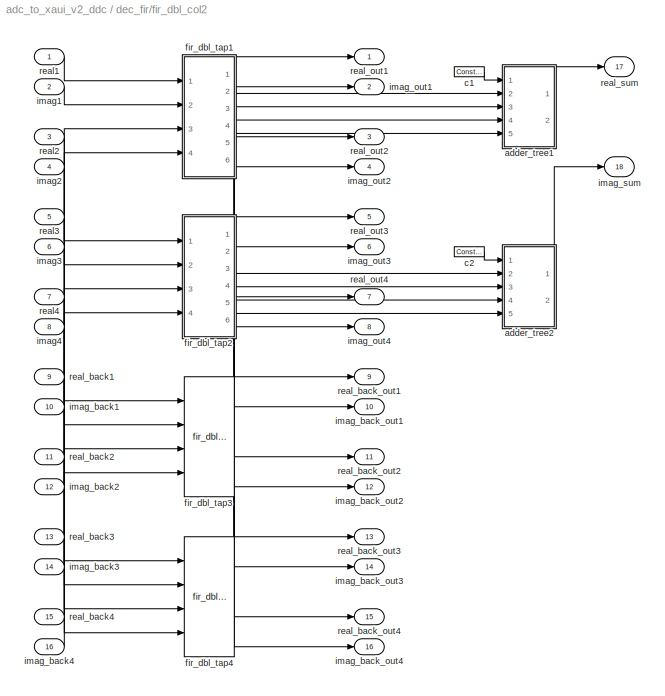
BLOCK [SubSystem] dec_fir/fir_dbl_col2
  AncestorBlock = casper_library/Downconverter/fir_dbl_col
  MaskCallbackString = |||
  MaskEnableString = on,on,on,on
  MaskIconFrame = on
  MaskIconOpaque = on
  MaskIconRotate = none
  MaskIconUnits = autoscale
  MaskInitialization = fir_dbl_col_init(gcb, ...\n    'n_inputs', n_inputs, ...\n    'coeff', coeff, ...\n    'mult_latency', mult_latency, ...\n    'add_latency', add_latency);
  MaskPromptString = Inputs|Coefficients|Add latency|Mult Latency
  MaskSelfModifiable = on
  MaskStyleString = edit,edit,edit,edit
  MaskTabNameString = ,,,
  MaskToolTipString = on,on,on,on
  MaskTunableValueString = on,on,on,on
  MaskType = fir_dbl_col
  MaskValueString = 4|[0.21798 0.17532 0.1053 0.03186]|2|2
  MaskVarAliasString = ,,,
  MaskVariables = n_inputs=@1;coeff=@2;add_latency=@3;mult_latency=@4;
  MaskVisibilityString = on,on,on,on
  MinAlgLoopOccurrences = off
  Ports = [16, 18]
  RTWSystemCode = Auto
  TreatAsAtomicUnit = off
  UserData = DataTag5
  UserDataPersistent = on
BLOCK [SubSystem] dec_fir/fir_dbl_col2/adder_tree1
  AncestorBlock = casper_library/Misc/adder_tree
  AttributesFormatString = latency 4
  MaskCallbackString = |
  MaskDescription = Sums all inputs using a tree of adds and delays.
  MaskEnableString = on,on
  MaskHelp = eval('xlWeb([getenv(''MLIB_ROOT''), ''<path>''])')
  MaskIconFrame = on
  MaskIconOpaque = on
  MaskIconRotate = none
  MaskIconUnits = autoscale
  MaskInitialization = adder_tree_init(gcb, ...\n    'n_inputs', n_inputs, ...\n    'latency', latency);
  MaskPromptString = Number of Inputs|Add Latency
  MaskSelfModifiable = on
  MaskStyleString = edit,edit
  MaskTabNameString = ,
  MaskToolTipString = on,on
  MaskTunableValueString = on,on
  MaskType = adder_tree
  MaskValueString = 4|2
  MaskVarAliasString = ,
  MaskVariables = n_inputs=@1;latency=@2;
  MaskVisibilityString = on,on
  MinAlgLoopOccurrences = off
  Ports = [5, 2]
  RTWSystemCode = Auto
  TreatAsAtomicUnit = off
  UserData = DataTag6
  UserDataPersistent = on
BLOCK [Reference] dec_fir/fir_dbl_col2/adder_tree1/addr1  REF=xbsIndex_r3/AddSub
  Ports = [2, 1]
  SourceBlock = xbsIndex_r3/AddSub
  SourceType = Xilinx Adder/Subtractor
  arith_type = Unsigned
  bin_pt = 2
  dbl_ovrd = off
  en = off
  explicit_period = off
  gen_core = off
  latency = 2
  mode = Addition
  n_bits = 8
  overflow = Wrap
  period = 1
  pipeline = on
  precision = Full
  quantization = Truncate
  show_param = off
  use_carryin = off
  use_carryout = off
  use_core = on
  use_rpm = on
  xl_area = [0, 0, 0, 0, 0, 0, 0]
  xl_use_area = off
BLOCK [Reference] dec_fir/fir_dbl_col2/adder_tree1/addr2  REF=xbsIndex_r3/AddSub
  Ports = [2, 1]
  SourceBlock = xbsIndex_r3/AddSub
  SourceType = Xilinx Adder/Subtractor
  arith_type = Unsigned
  bin_pt = 2
  dbl_ovrd = off
  en = off
  explicit_period = off
  gen_core = off
  latency = 2
  mode = Addition
  n_bits = 8
  overflow = Wrap
  period = 1
  pipeline = on
  precision = Full
  quantization = Truncate
  show_param = off
  use_carryin = off
  use_carryout = off
  use_core = on
  use_rpm = on
  xl_area = [0, 0, 0, 0, 0, 0, 0]
  xl_use_area = off
BLOCK [Reference] dec_fir/fir_dbl_col2/adder_tree1/addr3  REF=xbsIndex_r3/AddSub
  Ports = [2, 1]
  SourceBlock = xbsIndex_r3/AddSub
  SourceType = Xilinx Adder/Subtractor
  arith_type = Unsigned
  bin_pt = 2
  dbl_ovrd = off
  en = off
  explicit_period = off
  gen_core = off
  latency = 2
  mode = Addition
  n_bits = 8
  overflow = Wrap
  period = 1
  pipeline = on
  precision = Full
  quantization = Truncate
  show_param = off
  use_carryin = off
  use_carryout = off
  use_core = on
  use_rpm = on
  xl_area = [0, 0, 0, 0, 0, 0, 0]
  xl_use_area = off
BLOCK [Inport] dec_fir/fir_dbl_col2/adder_tree1/din1
  IconDisplay = Port number
  LatchInput = off
  Port = 2
BLOCK [Inport] dec_fir/fir_dbl_col2/adder_tree1/din2
  IconDisplay = Port number
  LatchInput = off
  Port = 3
BLOCK [Inport] dec_fir/fir_dbl_col2/adder_tree1/din3
  IconDisplay = Port number
  LatchInput = off
  Port = 4
BLOCK [Inport] dec_fir/fir_dbl_col2/adder_tree1/din4
  IconDisplay = Port number
  LatchInput = off
  Port = 5
BLOCK [Outport] dec_fir/fir_dbl_col2/adder_tree1/dout
  BusOutputAsStruct = off
  IconDisplay = Port number
  Port = 2
BLOCK [Inport] dec_fir/fir_dbl_col2/adder_tree1/sync
  IconDisplay = Port number
  LatchInput = off
  Port = 1
BLOCK [Reference] dec_fir/fir_dbl_col2/adder_tree1/sync_delay  REF=xbsIndex_r3/Delay
  Ports = [1, 1]
  SourceBlock = xbsIndex_r3/Delay
  SourceType = Xilinx Delay Block
  accept_only_valid = off
  dbl_ovrd = off
  en = off
  explicit_period = off
  init_zero = on
  latency = 4
  period = 1
  reg_retiming = off
  show_param = off
  xl_area = [0, 0, 0, 0, 0, 0, 0]
  xl_use_area = off
BLOCK [Outport] dec_fir/fir_dbl_col2/adder_tree1/sync_out
  BusOutputAsStruct = off
  IconDisplay = Port number
BLOCK [SubSystem] dec_fir/fir_dbl_col2/adder_tree2
  AncestorBlock = casper_library/Misc/adder_tree
  AttributesFormatString = latency 4
  MaskCallbackString = |
  MaskDescription = Sums all inputs using a tree of adds and delays.
  MaskEnableString = on,on
  MaskHelp = eval('xlWeb([getenv(''MLIB_ROOT''), ''<path>''])')
  MaskIconFrame = on
  MaskIconOpaque = on
  MaskIconRotate = none
  MaskIconUnits = autoscale
  MaskInitialization = adder_tree_init(gcb, ...\n    'n_inputs', n_inputs, ...\n    'latency', latency);
  MaskPromptString = Number of Inputs|Add Latency
  MaskSelfModifiable = on
  MaskStyleString = edit,edit
  MaskTabNameString = ,
  MaskToolTipString = on,on
  MaskTunableValueString = on,on
  MaskType = adder_tree
  MaskValueString = 4|2
  MaskVarAliasString = ,
  MaskVariables = n_inputs=@1;latency=@2;
  MaskVisibilityString = on,on
  MinAlgLoopOccurrences = off
  Ports = [5, 2]
  RTWSystemCode = Auto
  TreatAsAtomicUnit = off
  UserData = DataTag7
  UserDataPersistent = on
BLOCK [Reference] dec_fir/fir_dbl_col2/adder_tree2/addr1  REF=xbsIndex_r3/AddSub
  Ports = [2, 1]
  SourceBlock = xbsIndex_r3/AddSub
  SourceType = Xilinx Adder/Subtractor
  arith_type = Unsigned
  bin_pt = 2
  dbl_ovrd = off
  en = off
  explicit_period = off
  gen_core = off
  latency = 2
  mode = Addition
  n_bits = 8
  overflow = Wrap
  period = 1
  pipeline = on
  precision = Full
  quantization = Truncate
  show_param = off
  use_carryin = off
  use_carryout = off
  use_core = on
  use_rpm = on
  xl_area = [0, 0, 0, 0, 0, 0, 0]
  xl_use_area = off
BLOCK [Reference] dec_fir/fir_dbl_col2/adder_tree2/addr2  REF=xbsIndex_r3/AddSub
  Ports = [2, 1]
  SourceBlock = xbsIndex_r3/AddSub
  SourceType = Xilinx Adder/Subtractor
  arith_type = Unsigned
  bin_pt = 2
  dbl_ovrd = off
  en = off
  explicit_period = off
  gen_core = off
  latency = 2
  mode = Addition
  n_bits = 8
  overflow = Wrap
  period = 1
  pipeline = on
  precision = Full
  quantization = Truncate
  show_param = off
  use_carryin = off
  use_carryout = off
  use_core = on
  use_rpm = on
  xl_area = [0, 0, 0, 0, 0, 0, 0]
  xl_use_area = off
BLOCK [Reference] dec_fir/fir_dbl_col2/adder_tree2/addr3  REF=xbsIndex_r3/AddSub
  Ports = [2, 1]
  SourceBlock = xbsIndex_r3/AddSub
  SourceType = Xilinx Adder/Subtractor
  arith_type = Unsigned
  bin_pt = 2
  dbl_ovrd = off
  en = off
  explicit_period = off
  gen_core = off
  latency = 2
  mode = Addition
  n_bits = 8
  overflow = Wrap
  period = 1
  pipeline = on
  precision = Full
  quantization = Truncate
  show_param = off
  use_carryin = off
  use_carryout = off
  use_core = on
  use_rpm = on
  xl_area = [0, 0, 0, 0, 0, 0, 0]
  xl_use_area = off
BLOCK [Inport] dec_fir/fir_dbl_col2/adder_tree2/din1
  IconDisplay = Port number
  LatchInput = off
  Port = 2
BLOCK [Inport] dec_fir/fir_dbl_col2/adder_tree2/din2
  IconDisplay = Port number
  LatchInput = off
  Port = 3
BLOCK [Inport] dec_fir/fir_dbl_col2/adder_tree2/din3
  IconDisplay = Port number
  LatchInput = off
  Port = 4
BLOCK [Inport] dec_fir/fir_dbl_col2/adder_tree2/din4
  IconDisplay = Port number
  LatchInput = off
  Port = 5
BLOCK [Outport] dec_fir/fir_dbl_col2/adder_tree2/dout
  BusOutputAsStruct = off
  IconDisplay = Port number
  Port = 2
BLOCK [Inport] dec_fir/fir_dbl_col2/adder_tree2/sync
  IconDisplay = Port number
  LatchInput = off
  Port = 1
BLOCK [Reference] dec_fir/fir_dbl_col2/adder_tree2/sync_delay  REF=xbsIndex_r3/Delay
  Ports = [1, 1]
  SourceBlock = xbsIndex_r3/Delay
  SourceType = Xilinx Delay Block
  accept_only_valid = off
  dbl_ovrd = off
  en = off
  explicit_period = off
  init_zero = on
  latency = 4
  period = 1
  reg_retiming = off
  show_param = off
  xl_area = [0, 0, 0, 0, 0, 0, 0]
  xl_use_area = off
BLOCK [Outport] dec_fir/fir_dbl_col2/adder_tree2/sync_out
  BusOutputAsStruct = off
  IconDisplay = Port number
BLOCK [Reference] dec_fir/fir_dbl_col2/c1  REF=xbsIndex_r3/Constant
  Ports = [0, 1]
  SourceBlock = xbsIndex_r3/Constant
  SourceType = Xilinx Constant Block
  arith_type = Unsigned
  bin_pt = 0
  carry = CIN
  const = 1
  dbl_ovrd = off
  equ = P=C
  explicit_period = on
  inp1 = P
  inp2 = PCIN>>17
  iostate = 0
  n_bits = 1
  opr = +
  opselect = C
  period = 1
BLOCK [Reference] dec_fir/fir_dbl_col2/c2  REF=xbsIndex_r3/Constant
  Ports = [0, 1]
  SourceBlock = xbsIndex_r3/Constant
  SourceType = Xilinx Constant Block
  arith_type = Unsigned
  bin_pt = 0
  carry = CIN
  const = 1
  dbl_ovrd = off
  equ = P=C
  explicit_period = on
  inp1 = P
  inp2 = PCIN>>17
  iostate = 0
  n_bits = 1
  opr = +
  opselect = C
  period = 1
BLOCK [SubSystem] dec_fir/fir_dbl_col2/fir_dbl_tap1
  AncestorBlock = casper_library/Downconverter/fir_dbl_tap
  MaskCallbackString = ||
  MaskEnableString = on,on,on
  MaskIconFrame = on
  MaskIconOpaque = on
  MaskIconRotate = none
  MaskIconUnits = autoscale
  MaskPromptString = factor|Add latency|Mult latency
  MaskSelfModifiable = on
  MaskStyleString = edit,edit,edit
  MaskTabNameString = ,,
  MaskToolTipString = on,on,on
  MaskTunableValueString = on,on,on
  MaskType = fir_dbl_tap
  MaskValueString = 0.21798|2|2
  MaskVarAliasString = ,,
  MaskVariables = factor=@1;add_latency=@2;mult_latency=@3;
  MaskVisibilityString = on,on,on
  MinAlgLoopOccurrences = off
  Ports = [4, 6]
  RTWSystemCode = Auto
  TreatAsAtomicUnit = off
BLOCK [Reference] dec_fir/fir_dbl_col2/fir_dbl_tap1/AddSub  REF=xbsIndex_r3/AddSub
  Ports = [2, 1]
  SourceBlock = xbsIndex_r3/AddSub
  SourceType = Xilinx Adder/Subtractor
  arith_type = Signed  (2's comp)
  bin_pt = 16
  dbl_ovrd = off
  en = off
  explicit_period = on
  gen_core = off
  latency = add_latency
  mode = Addition
  n_bits = 18
  overflow = Wrap
  period = 1
  pipeline = off
  precision = User Defined
  quantization = Truncate
  show_param = off
  use_carryin = off
  use_carryout = off
  use_core = on
  use_rpm = on
  xl_area = [0, 0, 0, 0, 0, 0, 0]
  xl_use_area = off
BLOCK [Reference] dec_fir/fir_dbl_col2/fir_dbl_tap1/AddSub1  REF=xbsIndex_r3/AddSub
  Ports = [2, 1]
  SourceBlock = xbsIndex_r3/AddSub
  SourceType = Xilinx Adder/Subtractor
  arith_type = Signed  (2's comp)
  bin_pt = 16
  dbl_ovrd = off
  en = off
  explicit_period = on
  gen_core = off
  latency = add_latency
  mode = Addition
  n_bits = 18
  overflow = Wrap
  period = 1
  pipeline = off
  precision = User Defined
  quantization = Truncate
  show_param = off
  use_carryin = off
  use_carryout = off
  use_core = on
  use_rpm = on
  xl_area = [0, 0, 0, 0, 0, 0, 0]
  xl_use_area = off
BLOCK [Reference] dec_fir/fir_dbl_col2/fir_dbl_tap1/Constant  REF=xbsIndex_r3/Constant
  Ports = [0, 1]
  SourceBlock = xbsIndex_r3/Constant
  SourceType = Xilinx Constant Block
  arith_type = Signed  (2's comp)
  bin_pt = 17
  carry = CIN
  const = factor
  dbl_ovrd = off
  equ = P=C
  explicit_period = on
  inp1 = P
  inp2 = PCIN>>17
  iostate = 0
  n_bits = 18
  opr = +
  opselect = C
  period = 1
BLOCK [Reference] dec_fir/fir_dbl_col2/fir_dbl_tap1/Mult  REF=xbsIndex_r3/Mult
  Ports = [2, 1]
  SourceBlock = xbsIndex_r3/Mult
  SourceType = Xilinx Multiplier
  arith_type = Signed  (2's comp)
  bin_pt = 17
  dbl_ovrd = off
  en = off
  explicit_period = off
  gen_core = off
  latency = mult_latency
  mult_type = Parallel
  n_bits = 18
  overflow = Wrap
  oversample = 2
  period = 1
  pipeline = on
  placement_style = Rectangular Shape
  precision = Full
  quantization = Truncate
  show_param = on
  use_embedded = on
  use_rpm = off
  xl_area = [0, 0, 0, 0, 0, 0, 0]
  xl_use_area = off
BLOCK [Reference] dec_fir/fir_dbl_col2/fir_dbl_tap1/Mult1  REF=xbsIndex_r3/Mult
  Ports = [2, 1]
  SourceBlock = xbsIndex_r3/Mult
  SourceType = Xilinx Multiplier
  arith_type = Signed  (2's comp)
  bin_pt = 17
  dbl_ovrd = off
  en = off
  explicit_period = off
  gen_core = off
  latency = mult_latency
  mult_type = Parallel
  n_bits = 18
  overflow = Wrap
  oversample = 2
  period = 1
  pipeline = on
  placement_style = Rectangular Shape
  precision = Full
  quantization = Truncate
  show_param = on
  use_embedded = on
  use_rpm = off
  xl_area = [0, 0, 0, 0, 0, 0, 0]
  xl_use_area = off
BLOCK [Reference] dec_fir/fir_dbl_col2/fir_dbl_tap1/Register  REF=xbsIndex_r3/Register
  Ports = [1, 1]
  SourceBlock = xbsIndex_r3/Register
  SourceType = Xilinx Register Block
  dbl_ovrd = off
  en = off
  explicit_period = on
  init = 0
  out_en = off
  period = 1
  reg_only_valid = off
  rst = off
  show_param = off
  xl_area = [0, 0, 0, 0, 0, 0, 0]
  xl_use_area = off
BLOCK [Reference] dec_fir/fir_dbl_col2/fir_dbl_tap1/Register1  REF=xbsIndex_r3/Register
  Ports = [1, 1]
  SourceBlock = xbsIndex_r3/Register
  SourceType = Xilinx Register Block
  dbl_ovrd = off
  en = off
  explicit_period = on
  init = 0
  out_en = off
  period = 1
  reg_only_valid = off
  rst = off
  show_param = off
  xl_area = [0, 0, 0, 0, 0, 0, 0]
  xl_use_area = off
BLOCK [Reference] dec_fir/fir_dbl_col2/fir_dbl_tap1/Register2  REF=xbsIndex_r3/Register
  Ports = [1, 1]
  SourceBlock = xbsIndex_r3/Register
  SourceType = Xilinx Register Block
  dbl_ovrd = off
  en = off
  explicit_period = on
  init = 0
  out_en = off
  period = 1
  reg_only_valid = off
  rst = off
  show_param = off
  xl_area = [0, 0, 0, 0, 0, 0, 0]
  xl_use_area = off
BLOCK [Reference] dec_fir/fir_dbl_col2/fir_dbl_tap1/Register3  REF=xbsIndex_r3/Register
  Ports = [1, 1]
  SourceBlock = xbsIndex_r3/Register
  SourceType = Xilinx Register Block
  dbl_ovrd = off
  en = off
  explicit_period = on
  init = 0
  out_en = off
  period = 1
  reg_only_valid = off
  rst = off
  show_param = off
  xl_area = [0, 0, 0, 0, 0, 0, 0]
  xl_use_area = off
BLOCK [Inport] dec_fir/fir_dbl_col2/fir_dbl_tap1/a
  IconDisplay = Port number
  LatchInput = off
  Port = 1
BLOCK [Outport] dec_fir/fir_dbl_col2/fir_dbl_tap1/a_out
  BusOutputAsStruct = off
  IconDisplay = Port number
BLOCK [Inport] dec_fir/fir_dbl_col2/fir_dbl_tap1/b
  IconDisplay = Port number
  LatchInput = off
  Port = 2
BLOCK [Outport] dec_fir/fir_dbl_col2/fir_dbl_tap1/b_out
  BusOutputAsStruct = off
  IconDisplay = Port number
  Port = 2
BLOCK [Inport] dec_fir/fir_dbl_col2/fir_dbl_tap1/c
  IconDisplay = Port number
  LatchInput = off
  Port = 3
BLOCK [Outport] dec_fir/fir_dbl_col2/fir_dbl_tap1/c_out
  BusOutputAsStruct = off
  IconDisplay = Port number
  Port = 3
BLOCK [Inport] dec_fir/fir_dbl_col2/fir_dbl_tap1/d
  IconDisplay = Port number
  LatchInput = off
  Port = 4
BLOCK [Outport] dec_fir/fir_dbl_col2/fir_dbl_tap1/d_out
  BusOutputAsStruct = off
  IconDisplay = Port number
  Port = 4
BLOCK [Outport] dec_fir/fir_dbl_col2/fir_dbl_tap1/imag
  BusOutputAsStruct = off
  IconDisplay = Port number
  Port = 6
BLOCK [Outport] dec_fir/fir_dbl_col2/fir_dbl_tap1/real
  BusOutputAsStruct = off
  IconDisplay = Port number
  Port = 5
BLOCK [SubSystem] dec_fir/fir_dbl_col2/fir_dbl_tap2
  AncestorBlock = casper_library/Downconverter/fir_dbl_tap
  MaskCallbackString = ||
  MaskEnableString = on,on,on
  MaskIconFrame = on
  MaskIconOpaque = on
  MaskIconRotate = none
  MaskIconUnits = autoscale
  MaskPromptString = factor|Add latency|Mult latency
  MaskSelfModifiable = on
  MaskStyleString = edit,edit,edit
  MaskTabNameString = ,,
  MaskToolTipString = on,on,on
  MaskTunableValueString = on,on,on
  MaskType = fir_dbl_tap
  MaskValueString = 0.17532|2|2
  MaskVarAliasString = ,,
  MaskVariables = factor=@1;add_latency=@2;mult_latency=@3;
  MaskVisibilityString = on,on,on
  MinAlgLoopOccurrences = off
  Ports = [4, 6]
  RTWSystemCode = Auto
  TreatAsAtomicUnit = off
BLOCK [Reference] dec_fir/fir_dbl_col2/fir_dbl_tap2/AddSub  REF=xbsIndex_r3/AddSub
  Ports = [2, 1]
  SourceBlock = xbsIndex_r3/AddSub
  SourceType = Xilinx Adder/Subtractor
  arith_type = Signed  (2's comp)
  bin_pt = 16
  dbl_ovrd = off
  en = off
  explicit_period = on
  gen_core = off
  latency = add_latency
  mode = Addition
  n_bits = 18
  overflow = Wrap
  period = 1
  pipeline = off
  precision = User Defined
  quantization = Truncate
  show_param = off
  use_carryin = off
  use_carryout = off
  use_core = on
  use_rpm = on
  xl_area = [0, 0, 0, 0, 0, 0, 0]
  xl_use_area = off
BLOCK [Reference] dec_fir/fir_dbl_col2/fir_dbl_tap2/AddSub1  REF=xbsIndex_r3/AddSub
  Ports = [2, 1]
  SourceBlock = xbsIndex_r3/AddSub
  SourceType = Xilinx Adder/Subtractor
  arith_type = Signed  (2's comp)
  bin_pt = 16
  dbl_ovrd = off
  en = off
  explicit_period = on
  gen_core = off
  latency = add_latency
  mode = Addition
  n_bits = 18
  overflow = Wrap
  period = 1
  pipeline = off
  precision = User Defined
  quantization = Truncate
  show_param = off
  use_carryin = off
  use_carryout = off
  use_core = on
  use_rpm = on
  xl_area = [0, 0, 0, 0, 0, 0, 0]
  xl_use_area = off
BLOCK [Reference] dec_fir/fir_dbl_col2/fir_dbl_tap2/Constant  REF=xbsIndex_r3/Constant
  Ports = [0, 1]
  SourceBlock = xbsIndex_r3/Constant
  SourceType = Xilinx Constant Block
  arith_type = Signed  (2's comp)
  bin_pt = 17
  carry = CIN
  const = factor
  dbl_ovrd = off
  equ = P=C
  explicit_period = on
  inp1 = P
  inp2 = PCIN>>17
  iostate = 0
  n_bits = 18
  opr = +
  opselect = C
  period = 1
BLOCK [Reference] dec_fir/fir_dbl_col2/fir_dbl_tap2/Mult  REF=xbsIndex_r3/Mult
  Ports = [2, 1]
  SourceBlock = xbsIndex_r3/Mult
  SourceType = Xilinx Multiplier
  arith_type = Signed  (2's comp)
  bin_pt = 17
  dbl_ovrd = off
  en = off
  explicit_period = off
  gen_core = off
  latency = mult_latency
  mult_type = Parallel
  n_bits = 18
  overflow = Wrap
  oversample = 2
  period = 1
  pipeline = on
  placement_style = Rectangular Shape
  precision = Full
  quantization = Truncate
  show_param = on
  use_embedded = on
  use_rpm = off
  xl_area = [0, 0, 0, 0, 0, 0, 0]
  xl_use_area = off
BLOCK [Reference] dec_fir/fir_dbl_col2/fir_dbl_tap2/Mult1  REF=xbsIndex_r3/Mult
  Ports = [2, 1]
  SourceBlock = xbsIndex_r3/Mult
  SourceType = Xilinx Multiplier
  arith_type = Signed  (2's comp)
  bin_pt = 17
  dbl_ovrd = off
  en = off
  explicit_period = off
  gen_core = off
  latency = mult_latency
  mult_type = Parallel
  n_bits = 18
  overflow = Wrap
  oversample = 2
  period = 1
  pipeline = on
  placement_style = Rectangular Shape
  precision = Full
  quantization = Truncate
  show_param = on
  use_embedded = on
  use_rpm = off
  xl_area = [0, 0, 0, 0, 0, 0, 0]
  xl_use_area = off
BLOCK [Reference] dec_fir/fir_dbl_col2/fir_dbl_tap2/Register  REF=xbsIndex_r3/Register
  Ports = [1, 1]
  SourceBlock = xbsIndex_r3/Register
  SourceType = Xilinx Register Block
  dbl_ovrd = off
  en = off
  explicit_period = on
  init = 0
  out_en = off
  period = 1
  reg_only_valid = off
  rst = off
  show_param = off
  xl_area = [0, 0, 0, 0, 0, 0, 0]
  xl_use_area = off
BLOCK [Reference] dec_fir/fir_dbl_col2/fir_dbl_tap2/Register1  REF=xbsIndex_r3/Register
  Ports = [1, 1]
  SourceBlock = xbsIndex_r3/Register
  SourceType = Xilinx Register Block
  dbl_ovrd = off
  en = off
  explicit_period = on
  init = 0
  out_en = off
  period = 1
  reg_only_valid = off
  rst = off
  show_param = off
  xl_area = [0, 0, 0, 0, 0, 0, 0]
  xl_use_area = off
BLOCK [Reference] dec_fir/fir_dbl_col2/fir_dbl_tap2/Register2  REF=xbsIndex_r3/Register
  Ports = [1, 1]
  SourceBlock = xbsIndex_r3/Register
  SourceType = Xilinx Register Block
  dbl_ovrd = off
  en = off
  explicit_period = on
  init = 0
  out_en = off
  period = 1
  reg_only_valid = off
  rst = off
  show_param = off
  xl_area = [0, 0, 0, 0, 0, 0, 0]
  xl_use_area = off
BLOCK [Reference] dec_fir/fir_dbl_col2/fir_dbl_tap2/Register3  REF=xbsIndex_r3/Register
  Ports = [1, 1]
  SourceBlock = xbsIndex_r3/Register
  SourceType = Xilinx Register Block
  dbl_ovrd = off
  en = off
  explicit_period = on
  init = 0
  out_en = off
  period = 1
  reg_only_valid = off
  rst = off
  show_param = off
  xl_area = [0, 0, 0, 0, 0, 0, 0]
  xl_use_area = off
BLOCK [Inport] dec_fir/fir_dbl_col2/fir_dbl_tap2/a
  IconDisplay = Port number
  LatchInput = off
  Port = 1
BLOCK [Outport] dec_fir/fir_dbl_col2/fir_dbl_tap2/a_out
  BusOutputAsStruct = off
  IconDisplay = Port number
BLOCK [Inport] dec_fir/fir_dbl_col2/fir_dbl_tap2/b
  IconDisplay = Port number
  LatchInput = off
  Port = 2
BLOCK [Outport] dec_fir/fir_dbl_col2/fir_dbl_tap2/b_out
  BusOutputAsStruct = off
  IconDisplay = Port number
  Port = 2
BLOCK [Inport] dec_fir/fir_dbl_col2/fir_dbl_tap2/c
  IconDisplay = Port number
  LatchInput = off
  Port = 3
BLOCK [Outport] dec_fir/fir_dbl_col2/fir_dbl_tap2/c_out
  BusOutputAsStruct = off
  IconDisplay = Port number
  Port = 3
BLOCK [Inport] dec_fir/fir_dbl_col2/fir_dbl_tap2/d
  IconDisplay = Port number
  LatchInput = off
  Port = 4
BLOCK [Outport] dec_fir/fir_dbl_col2/fir_dbl_tap2/d_out
  BusOutputAsStruct = off
  IconDisplay = Port number
  Port = 4
BLOCK [Outport] dec_fir/fir_dbl_col2/fir_dbl_tap2/imag
  BusOutputAsStruct = off
  IconDisplay = Port number
  Port = 6
BLOCK [Outport] dec_fir/fir_dbl_col2/fir_dbl_tap2/real
  BusOutputAsStruct = off
  IconDisplay = Port number
  Port = 5
BLOCK [Reference] dec_fir/fir_dbl_col2/fir_dbl_tap3  REF=casper_library/Downconverter/fir_dbl_tap  (lib defined in mdl_138b2fc3435f, mdl_4ed325b712b3, +2 more)
  Ports = [4, 6]
  ShowPortLabels = on
  SourceBlock = casper_library/Downconverter/fir_dbl_tap
  SourceType = fir_dbl_tap
  add_latency = 2
  factor = 0.1053
  mult_latency = 2
BLOCK [Reference] dec_fir/fir_dbl_col2/fir_dbl_tap4  REF=casper_library/Downconverter/fir_dbl_tap  (lib defined in mdl_138b2fc3435f, mdl_4ed325b712b3, +2 more)
  Ports = [4, 6]
  ShowPortLabels = on
  SourceBlock = casper_library/Downconverter/fir_dbl_tap
  SourceType = fir_dbl_tap
  add_latency = 2
  factor = 0.03186
  mult_latency = 2
BLOCK [Inport] dec_fir/fir_dbl_col2/imag1
  IconDisplay = Port number
  LatchInput = off
  Port = 2
BLOCK [Inport] dec_fir/fir_dbl_col2/imag2
  IconDisplay = Port number
  LatchInput = off
  Port = 4
BLOCK [Inport] dec_fir/fir_dbl_col2/imag3
  IconDisplay = Port number
  LatchInput = off
  Port = 6
BLOCK [Inport] dec_fir/fir_dbl_col2/imag4
  IconDisplay = Port number
  LatchInput = off
  Port = 8
BLOCK [Inport] dec_fir/fir_dbl_col2/imag_back1
  IconDisplay = Port number
  LatchInput = off
  Port = 10
BLOCK [Inport] dec_fir/fir_dbl_col2/imag_back2
  IconDisplay = Port number
  LatchInput = off
  Port = 12
BLOCK [Inport] dec_fir/fir_dbl_col2/imag_back3
  IconDisplay = Port number
  LatchInput = off
  Port = 14
BLOCK [Inport] dec_fir/fir_dbl_col2/imag_back4
  IconDisplay = Port number
  LatchInput = off
  Port = 16
BLOCK [Outport] dec_fir/fir_dbl_col2/imag_back_out1
  BusOutputAsStruct = off
  IconDisplay = Port number
  Port = 10
BLOCK [Outport] dec_fir/fir_dbl_col2/imag_back_out2
  BusOutputAsStruct = off
  IconDisplay = Port number
  Port = 12
BLOCK [Outport] dec_fir/fir_dbl_col2/imag_back_out3
  BusOutputAsStruct = off
  IconDisplay = Port number
  Port = 14
BLOCK [Outport] dec_fir/fir_dbl_col2/imag_back_out4
  BusOutputAsStruct = off
  IconDisplay = Port number
  Port = 16
BLOCK [Outport] dec_fir/fir_dbl_col2/imag_out1
  BusOutputAsStruct = off
  IconDisplay = Port number
  Port = 2
BLOCK [Outport] dec_fir/fir_dbl_col2/imag_out2
  BusOutputAsStruct = off
  IconDisplay = Port number
  Port = 4
BLOCK [Outport] dec_fir/fir_dbl_col2/imag_out3
  BusOutputAsStruct = off
  IconDisplay = Port number
  Port = 6
BLOCK [Outport] dec_fir/fir_dbl_col2/imag_out4
  BusOutputAsStruct = off
  IconDisplay = Port number
  Port = 8
BLOCK [Outport] dec_fir/fir_dbl_col2/imag_sum
  BusOutputAsStruct = off
  IconDisplay = Port number
  Port = 18
BLOCK [Inport] dec_fir/fir_dbl_col2/real1
  IconDisplay = Port number
  LatchInput = off
  Port = 1
BLOCK [Inport] dec_fir/fir_dbl_col2/real2
  IconDisplay = Port number
  LatchInput = off
  Port = 3
BLOCK [Inport] dec_fir/fir_dbl_col2/real3
  IconDisplay = Port number
  LatchInput = off
  Port = 5
BLOCK [Inport] dec_fir/fir_dbl_col2/real4
  IconDisplay = Port number
  LatchInput = off
  Port = 7
BLOCK [Inport] dec_fir/fir_dbl_col2/real_back1
  IconDisplay = Port number
  LatchInput = off
  Port = 9
BLOCK [Inport] dec_fir/fir_dbl_col2/real_back2
  IconDisplay = Port number
  LatchInput = off
  Port = 11
BLOCK [Inport] dec_fir/fir_dbl_col2/real_back3
  IconDisplay = Port number
  LatchInput = off
  Port = 13
BLOCK [Inport] dec_fir/fir_dbl_col2/real_back4
  IconDisplay = Port number
  LatchInput = off
  Port = 15
BLOCK [Outport] dec_fir/fir_dbl_col2/real_back_out1
  BusOutputAsStruct = off
  IconDisplay = Port number
  Port = 9
BLOCK [Outport] dec_fir/fir_dbl_col2/real_back_out2
  BusOutputAsStruct = off
  IconDisplay = Port number
  Port = 11
BLOCK [Outport] dec_fir/fir_dbl_col2/real_back_out3
  BusOutputAsStruct = off
  IconDisplay = Port number
  Port = 13
BLOCK [Outport] dec_fir/fir_dbl_col2/real_back_out4
  BusOutputAsStruct = off
  IconDisplay = Port number
  Port = 15
BLOCK [Outport] dec_fir/fir_dbl_col2/real_out1
  BusOutputAsStruct = off
  IconDisplay = Port number
BLOCK [Outport] dec_fir/fir_dbl_col2/real_out2
  BusOutputAsStruct = off
  IconDisplay = Port number
  Port = 3
BLOCK [Outport] dec_fir/fir_dbl_col2/real_out3
  BusOutputAsStruct = off
  IconDisplay = Port number
  Port = 5
BLOCK [Outport] dec_fir/fir_dbl_col2/real_out4
  BusOutputAsStruct = off
  IconDisplay = Port number
  Port = 7
BLOCK [Outport] dec_fir/fir_dbl_col2/real_sum
  BusOutputAsStruct = off
  IconDisplay = Port number
  Port = 17
BLOCK [Inport] dec_fir/imag1
  IconDisplay = Port number
  LatchInput = off
  Port = 3
BLOCK [Inport] dec_fir/imag2
  IconDisplay = Port number
  LatchInput = off
  Port = 5
BLOCK [Inport] dec_fir/imag3
  IconDisplay = Port number
  LatchInput = off
  Port = 7
BLOCK [Inport] dec_fir/imag4
  IconDisplay = Port number
  LatchInput = off
  Port = 9
BLOCK [SubSystem] dec_fir/imag_sum
  AncestorBlock = casper_library/Misc/adder_tree
  AttributesFormatString = latency 2
  MaskCallbackString = |
  MaskDescription = Sums all inputs using a tree of adds and delays.
  MaskEnableString = on,on
  MaskHelp = eval('xlWeb([getenv(''MLIB_ROOT''), ''<path>''])')
  MaskIconFrame = on
  MaskIconOpaque = on
  MaskIconRotate = none
  MaskIconUnits = autoscale
  MaskInitialization = adder_tree_init(gcb, ...\n    'n_inputs', n_inputs, ...\n    'latency', latency);
  MaskPromptString = Number of Inputs|Add Latency
  MaskSelfModifiable = on
  MaskStyleString = edit,edit
  MaskTabNameString = ,
  MaskToolTipString = on,on
  MaskTunableValueString = on,on
  MaskType = adder_tree
  MaskValueString = 2|2
  MaskVarAliasString = ,
  MaskVariables = n_inputs=@1;latency=@2;
  MaskVisibilityString = on,on
  MinAlgLoopOccurrences = off
  Ports = [3, 2]
  RTWSystemCode = Auto
  TreatAsAtomicUnit = off
  UserData = DataTag8
  UserDataPersistent = on
BLOCK [Reference] dec_fir/imag_sum/addr1  REF=xbsIndex_r3/AddSub
  Ports = [2, 1]
  SourceBlock = xbsIndex_r3/AddSub
  SourceType = Xilinx Adder/Subtractor
  arith_type = Unsigned
  bin_pt = 2
  dbl_ovrd = off
  en = off
  explicit_period = off
  gen_core = off
  latency = 2
  mode = Addition
  n_bits = 8
  overflow = Wrap
  period = 1
  pipeline = on
  precision = Full
  quantization = Truncate
  show_param = off
  use_carryin = off
  use_carryout = off
  use_core = on
  use_rpm = on
  xl_area = [0, 0, 0, 0, 0, 0, 0]
  xl_use_area = off
BLOCK [Inport] dec_fir/imag_sum/din1
  IconDisplay = Port number
  LatchInput = off
  Port = 2
BLOCK [Inport] dec_fir/imag_sum/din2
  IconDisplay = Port number
  LatchInput = off
  Port = 3
BLOCK [Outport] dec_fir/imag_sum/dout
  BusOutputAsStruct = off
  IconDisplay = Port number
  Port = 2
BLOCK [Inport] dec_fir/imag_sum/sync
  IconDisplay = Port number
  LatchInput = off
  Port = 1
BLOCK [Reference] dec_fir/imag_sum/sync_delay  REF=xbsIndex_r3/Delay
  Ports = [1, 1]
  SourceBlock = xbsIndex_r3/Delay
  SourceType = Xilinx Delay Block
  accept_only_valid = off
  dbl_ovrd = off
  en = off
  explicit_period = off
  init_zero = on
  latency = 2
  period = 1
  reg_retiming = off
  show_param = off
  xl_area = [0, 0, 0, 0, 0, 0, 0]
  xl_use_area = off
BLOCK [Outport] dec_fir/imag_sum/sync_out
  BusOutputAsStruct = off
  IconDisplay = Port number
BLOCK [Inport] dec_fir/real1
  IconDisplay = Port number
  LatchInput = off
  Port = 2
BLOCK [Inport] dec_fir/real2
  IconDisplay = Port number
  LatchInput = off
  Port = 4
BLOCK [Inport] dec_fir/real3
  IconDisplay = Port number
  LatchInput = off
  Port = 6
BLOCK [Inport] dec_fir/real4
  IconDisplay = Port number
  LatchInput = off
  Port = 8
BLOCK [SubSystem] dec_fir/real_sum
  AncestorBlock = casper_library/Misc/adder_tree
  AttributesFormatString = latency 2
  MaskCallbackString = |
  MaskDescription = Sums all inputs using a tree of adds and delays.
  MaskEnableString = on,on
  MaskHelp = eval('xlWeb([getenv(''MLIB_ROOT''), ''<path>''])')
  MaskIconFrame = on
  MaskIconOpaque = on
  MaskIconRotate = none
  MaskIconUnits = autoscale
  MaskInitialization = adder_tree_init(gcb, ...\n    'n_inputs', n_inputs, ...\n    'latency', latency);
  MaskPromptString = Number of Inputs|Add Latency
  MaskSelfModifiable = on
  MaskStyleString = edit,edit
  MaskTabNameString = ,
  MaskToolTipString = on,on
  MaskTunableValueString = on,on
  MaskType = adder_tree
  MaskValueString = 2|2
  MaskVarAliasString = ,
  MaskVariables = n_inputs=@1;latency=@2;
  MaskVisibilityString = on,on
  MinAlgLoopOccurrences = off
  Ports = [3, 2]
  RTWSystemCode = Auto
  TreatAsAtomicUnit = off
  UserData = DataTag9
  UserDataPersistent = on
BLOCK [Reference] dec_fir/real_sum/addr1  REF=xbsIndex_r3/AddSub
  Ports = [2, 1]
  SourceBlock = xbsIndex_r3/AddSub
  SourceType = Xilinx Adder/Subtractor
  arith_type = Unsigned
  bin_pt = 2
  dbl_ovrd = off
  en = off
  explicit_period = off
  gen_core = off
  latency = 2
  mode = Addition
  n_bits = 8
  overflow = Wrap
  period = 1
  pipeline = on
  precision = Full
  quantization = Truncate
  show_param = off
  use_carryin = off
  use_carryout = off
  use_core = on
  use_rpm = on
  xl_area = [0, 0, 0, 0, 0, 0, 0]
  xl_use_area = off
BLOCK [Inport] dec_fir/real_sum/din1
  IconDisplay = Port number
  LatchInput = off
  Port = 2
BLOCK [Inport] dec_fir/real_sum/din2
  IconDisplay = Port number
  LatchInput = off
  Port = 3
BLOCK [Outport] dec_fir/real_sum/dout
  BusOutputAsStruct = off
  IconDisplay = Port number
  Port = 2
BLOCK [Inport] dec_fir/real_sum/sync
  IconDisplay = Port number
  LatchInput = off
  Port = 1
BLOCK [Reference] dec_fir/real_sum/sync_delay  REF=xbsIndex_r3/Delay
  Ports = [1, 1]
  SourceBlock = xbsIndex_r3/Delay
  SourceType = Xilinx Delay Block
  accept_only_valid = off
  dbl_ovrd = off
  en = off
  explicit_period = off
  init_zero = on
  latency = 2
  period = 1
  reg_retiming = off
  show_param = off
  xl_area = [0, 0, 0, 0, 0, 0, 0]
  xl_use_area = off
BLOCK [Outport] dec_fir/real_sum/sync_out
  BusOutputAsStruct = off
  IconDisplay = Port number
BLOCK [SubSystem] dec_fir/ri_to_c
  MinAlgLoopOccurrences = off
  Ports = [2, 1]
  RTWSystemCode = Auto
  TreatAsAtomicUnit = off
BLOCK [Reference] dec_fir/ri_to_c/Concat  REF=xbsIndex_r3/Concat
  Ports = [2, 1]
  SourceBlock = xbsIndex_r3/Concat
  SourceType = Xilinx Bus Concatenator
  dbl_ovrd = off
  explicit_period = off
  num_inputs = 2
  period = 1
BLOCK [Reference] dec_fir/ri_to_c/Reinterpret  REF=xbsIndex_r3/Reinterpret
  Ports = [1, 1]
  SourceBlock = xbsIndex_r3/Reinterpret
  SourceType = Xilinx Type Reinterpreting Block
  arith_type = Unsigned
  bin_pt = 0
  force_arith_type = on
  force_bin_pt = on
  force_valid = on
BLOCK [Reference] dec_fir/ri_to_c/Reinterpret1  REF=xbsIndex_r3/Reinterpret
  Ports = [1, 1]
  SourceBlock = xbsIndex_r3/Reinterpret
  SourceType = Xilinx Type Reinterpreting Block
  arith_type = Unsigned
  bin_pt = 0
  force_arith_type = on
  force_bin_pt = on
  force_valid = on
BLOCK [Outport] dec_fir/ri_to_c/c
  BusOutputAsStruct = off
  IconDisplay = Port number
BLOCK [Inport] dec_fir/ri_to_c/im
  IconDisplay = Port number
  LatchInput = off
  Port = 2
BLOCK [Inport] dec_fir/ri_to_c/re
  IconDisplay = Port number
  LatchInput = off
  Port = 1
BLOCK [Reference] dec_fir/shift1  REF=xbsIndex_r3/Shift
  Ports = [1, 1]
  SourceBlock = xbsIndex_r3/Shift
  SourceType = Xilinx Shift Block
  arith_type = Signed  (2's comp)
  bin_pt = 2
  dbl_ovrd = off
  en = off
  explicit_period = off
  latency = 0
  n_bits = 8
  overflow = Wrap
  period = 1
  precision = Full
  quantization = Truncate
  shift_bits = 1
  shift_dir = Left
  show_param = off
  xl_area = [0, 0, 0, 0, 0, 0, 0]
  xl_use_area = off
BLOCK [Reference] dec_fir/shift2  REF=xbsIndex_r3/Shift
  Ports = [1, 1]
  SourceBlock = xbsIndex_r3/Shift
  SourceType = Xilinx Shift Block
  arith_type = Signed  (2's comp)
  bin_pt = 2
  dbl_ovrd = off
  en = off
  explicit_period = off
  latency = 0
  n_bits = 8
  overflow = Wrap
  period = 1
  precision = Full
  quantization = Truncate
  shift_bits = 1
  shift_dir = Left
  show_param = off
  xl_area = [0, 0, 0, 0, 0, 0, 0]
  xl_use_area = off
BLOCK [Inport] dec_fir/sync_in
  IconDisplay = Port number
  LatchInput = off
  Port = 1
BLOCK [Outport] dec_fir/sync_out
  BusOutputAsStruct = off
  IconDisplay = Port number
BLOCK [SubSystem] dec_fir1
  AncestorBlock = casper_library/Downconverter/dec_fir
  AttributesFormatString = 16 taps\n8_7 r/i
  MaskCallbackString = |||||
  MaskDescription = FIR filter which can handle multiple time samples in parallel and decimates down to 1 time sample.  If coefficients are symmetric, will automatically fold before multiplying.
  MaskEnableString = on,on,on,on,on,on
  MaskHelp = \n<h1>Description</h1>\n\nFIR filter which can handle multiple time samples in parallel and decimates down to 1 time sample.  If coefficients are symmetric, will automatically fold before multiplying.\n\n<h2>Mask Parameters</h2>\n\n<b>Number of Parallel Streams</b> (n_inputs): The number of time samples which arrive in parallel.<br><br>\n\n<b>Coefficients</b> (coeff): The FIR coefficients.  If thi...<+492ch>
  MaskIconFrame = on
  MaskIconOpaque = on
  MaskIconRotate = none
  MaskIconUnits = autoscale
  MaskInitialization = dec_fir_init(gcb, ...\n    'n_inputs', n_inputs, ...\n    'coeff', coeff, ...\n    'n_bits', n_bits, ...\n    'quantization', quantization, ...\n    'add_latency', add_latency, ...\n    'mult_latency', mult_latency);
  MaskPromptString = Number of Parallel Streams|Coefficients|Bit Width Out|Quantization Behavior|Add Latency|Mult Latency
  MaskSelfModifiable = on
  MaskStyleString = edit,edit,edit,popup(Truncate|Round  (unbiased: +/- Inf)|Round  (unbiased: Even Values)),edit,edit
  MaskTabNameString = ,,,,,
  MaskToolTipString = on,on,on,on,on,on
  MaskTunableValueString = on,on,on,on,on,on
  MaskType = dec_fir
  MaskValueString = 4|.9 * [-0.0161   -0.0428   -0.0504   -0.0249    0.0354    0.1170    0.1948    0.2422    0.2422    0.1948    0.1170  0.0354   -0.0249   -0.0504   -0.0428   -0.0161]|8|Round  (unbiased: Even Values)|2|2
  MaskVarAliasString = ,,,,,
  MaskVariables = n_inputs=@1;coeff=@2;n_bits=@3;quantization=&4;add_latency=@5;mult_latency=@6;
  MaskVisibilityString = on,on,on,on,on,on
  MinAlgLoopOccurrences = off
  Ports = [9, 2]
  RTWSystemCode = Auto
  TreatAsAtomicUnit = off
  UserData = DataTag10
  UserDataPersistent = on
BLOCK [Reference] dec_fir1/convert1  REF=xbsIndex_r3/Convert
  Ports = [1, 1]
  SourceBlock = xbsIndex_r3/Convert
  SourceType = Xilinx Converter Block
  arith_type = Signed  (2's comp)
  bin_pt = 7
  dbl_ovrd = off
  explicit_period = on
  inserted_by_tool = off
  latency = 2
  n_bits = 8
  overflow = Saturate
  period = 1
  pipeline = on
  quantization = Round  (unbiased: Even Values)
  show_param = on
  xl_area = [0, 0, 0, 0, 0, 0, 0]
  xl_use_area = off
BLOCK [Reference] dec_fir1/convert2  REF=xbsIndex_r3/Convert
  Ports = [1, 1]
  SourceBlock = xbsIndex_r3/Convert
  SourceType = Xilinx Converter Block
  arith_type = Signed  (2's comp)
  bin_pt = 7
  dbl_ovrd = off
  explicit_period = on
  inserted_by_tool = off
  latency = 2
  n_bits = 8
  overflow = Saturate
  period = 1
  pipeline = on
  quantization = Round  (unbiased: Even Values)
  show_param = on
  xl_area = [0, 0, 0, 0, 0, 0, 0]
  xl_use_area = off
BLOCK [Reference] dec_fir1/delay  REF=xbsIndex_r3/Delay
  Ports = [1, 1]
  SourceBlock = xbsIndex_r3/Delay
  SourceType = Xilinx Delay Block
  accept_only_valid = off
  dbl_ovrd = off
  en = off
  explicit_period = off
  init_zero = on
  latency = 12
  period = 1
  reg_retiming = off
  show_param = off
  xl_area = [0, 0, 0, 0, 0, 0, 0]
  xl_use_area = off
BLOCK [Outport] dec_fir1/dout
  BusOutputAsStruct = off
  IconDisplay = Port number
  Port = 2
BLOCK [SubSystem] dec_fir1/fir_dbl_col1
  AncestorBlock = casper_library/Downconverter/fir_dbl_col
  MaskCallbackString = |||
  MaskEnableString = on,on,on,on
  MaskIconFrame = on
  MaskIconOpaque = on
  MaskIconRotate = none
  MaskIconUnits = autoscale
  MaskInitialization = fir_dbl_col_init(gcb, ...\n    'n_inputs', n_inputs, ...\n    'coeff', coeff, ...\n    'mult_latency', mult_latency, ...\n    'add_latency', add_latency);
  MaskPromptString = Inputs|Coefficients|Add latency|Mult Latency
  MaskSelfModifiable = on
  MaskStyleString = edit,edit,edit,edit
  MaskTabNameString = ,,,
  MaskToolTipString = on,on,on,on
  MaskTunableValueString = on,on,on,on
  MaskType = fir_dbl_col
  MaskValueString = 4|[-0.02241 -0.04536 -0.03852 -0.01449]|2|2
  MaskVarAliasString = ,,,
  MaskVariables = n_inputs=@1;coeff=@2;add_latency=@3;mult_latency=@4;
  MaskVisibilityString = on,on,on,on
  MinAlgLoopOccurrences = off
  Ports = [16, 18]
  RTWSystemCode = Auto
  TreatAsAtomicUnit = off
  UserData = DataTag11
  UserDataPersistent = on
BLOCK [SubSystem] dec_fir1/fir_dbl_col1/adder_tree1
  AncestorBlock = casper_library/Misc/adder_tree
  AttributesFormatString = latency 4
  MaskCallbackString = |
  MaskDescription = Sums all inputs using a tree of adds and delays.
  MaskEnableString = on,on
  MaskHelp = eval('xlWeb([getenv(''MLIB_ROOT''), ''<path>''])')
  MaskIconFrame = on
  MaskIconOpaque = on
  MaskIconRotate = none
  MaskIconUnits = autoscale
  MaskInitialization = adder_tree_init(gcb, ...\n    'n_inputs', n_inputs, ...\n    'latency', latency);
  MaskPromptString = Number of Inputs|Add Latency
  MaskSelfModifiable = on
  MaskStyleString = edit,edit
  MaskTabNameString = ,
  MaskToolTipString = on,on
  MaskTunableValueString = on,on
  MaskType = adder_tree
  MaskValueString = 4|2
  MaskVarAliasString = ,
  MaskVariables = n_inputs=@1;latency=@2;
  MaskVisibilityString = on,on
  MinAlgLoopOccurrences = off
  Ports = [5, 2]
  RTWSystemCode = Auto
  TreatAsAtomicUnit = off
  UserData = DataTag12
  UserDataPersistent = on
BLOCK [Reference] dec_fir1/fir_dbl_col1/adder_tree1/addr1  REF=xbsIndex_r3/AddSub
  Ports = [2, 1]
  SourceBlock = xbsIndex_r3/AddSub
  SourceType = Xilinx Adder/Subtractor
  arith_type = Unsigned
  bin_pt = 2
  dbl_ovrd = off
  en = off
  explicit_period = off
  gen_core = off
  latency = 2
  mode = Addition
  n_bits = 8
  overflow = Wrap
  period = 1
  pipeline = on
  precision = Full
  quantization = Truncate
  show_param = off
  use_carryin = off
  use_carryout = off
  use_core = on
  use_rpm = on
  xl_area = [0, 0, 0, 0, 0, 0, 0]
  xl_use_area = off
BLOCK [Reference] dec_fir1/fir_dbl_col1/adder_tree1/addr2  REF=xbsIndex_r3/AddSub
  Ports = [2, 1]
  SourceBlock = xbsIndex_r3/AddSub
  SourceType = Xilinx Adder/Subtractor
  arith_type = Unsigned
  bin_pt = 2
  dbl_ovrd = off
  en = off
  explicit_period = off
  gen_core = off
  latency = 2
  mode = Addition
  n_bits = 8
  overflow = Wrap
  period = 1
  pipeline = on
  precision = Full
  quantization = Truncate
  show_param = off
  use_carryin = off
  use_carryout = off
  use_core = on
  use_rpm = on
  xl_area = [0, 0, 0, 0, 0, 0, 0]
  xl_use_area = off
BLOCK [Reference] dec_fir1/fir_dbl_col1/adder_tree1/addr3  REF=xbsIndex_r3/AddSub
  Ports = [2, 1]
  SourceBlock = xbsIndex_r3/AddSub
  SourceType = Xilinx Adder/Subtractor
  arith_type = Unsigned
  bin_pt = 2
  dbl_ovrd = off
  en = off
  explicit_period = off
  gen_core = off
  latency = 2
  mode = Addition
  n_bits = 8
  overflow = Wrap
  period = 1
  pipeline = on
  precision = Full
  quantization = Truncate
  show_param = off
  use_carryin = off
  use_carryout = off
  use_core = on
  use_rpm = on
  xl_area = [0, 0, 0, 0, 0, 0, 0]
  xl_use_area = off
BLOCK [Inport] dec_fir1/fir_dbl_col1/adder_tree1/din1
  IconDisplay = Port number
  LatchInput = off
  Port = 2
BLOCK [Inport] dec_fir1/fir_dbl_col1/adder_tree1/din2
  IconDisplay = Port number
  LatchInput = off
  Port = 3
BLOCK [Inport] dec_fir1/fir_dbl_col1/adder_tree1/din3
  IconDisplay = Port number
  LatchInput = off
  Port = 4
BLOCK [Inport] dec_fir1/fir_dbl_col1/adder_tree1/din4
  IconDisplay = Port number
  LatchInput = off
  Port = 5
BLOCK [Outport] dec_fir1/fir_dbl_col1/adder_tree1/dout
  BusOutputAsStruct = off
  IconDisplay = Port number
  Port = 2
BLOCK [Inport] dec_fir1/fir_dbl_col1/adder_tree1/sync
  IconDisplay = Port number
  LatchInput = off
  Port = 1
BLOCK [Reference] dec_fir1/fir_dbl_col1/adder_tree1/sync_delay  REF=xbsIndex_r3/Delay
  Ports = [1, 1]
  SourceBlock = xbsIndex_r3/Delay
  SourceType = Xilinx Delay Block
  accept_only_valid = off
  dbl_ovrd = off
  en = off
  explicit_period = off
  init_zero = on
  latency = 4
  period = 1
  reg_retiming = off
  show_param = off
  xl_area = [0, 0, 0, 0, 0, 0, 0]
  xl_use_area = off
BLOCK [Outport] dec_fir1/fir_dbl_col1/adder_tree1/sync_out
  BusOutputAsStruct = off
  IconDisplay = Port number
BLOCK [SubSystem] dec_fir1/fir_dbl_col1/adder_tree2
  AncestorBlock = casper_library/Misc/adder_tree
  AttributesFormatString = latency 4
  MaskCallbackString = |
  MaskDescription = Sums all inputs using a tree of adds and delays.
  MaskEnableString = on,on
  MaskHelp = eval('xlWeb([getenv(''MLIB_ROOT''), ''<path>''])')
  MaskIconFrame = on
  MaskIconOpaque = on
  MaskIconRotate = none
  MaskIconUnits = autoscale
  MaskInitialization = adder_tree_init(gcb, ...\n    'n_inputs', n_inputs, ...\n    'latency', latency);
  MaskPromptString = Number of Inputs|Add Latency
  MaskSelfModifiable = on
  MaskStyleString = edit,edit
  MaskTabNameString = ,
  MaskToolTipString = on,on
  MaskTunableValueString = on,on
  MaskType = adder_tree
  MaskValueString = 4|2
  MaskVarAliasString = ,
  MaskVariables = n_inputs=@1;latency=@2;
  MaskVisibilityString = on,on
  MinAlgLoopOccurrences = off
  Ports = [5, 2]
  RTWSystemCode = Auto
  TreatAsAtomicUnit = off
  UserData = DataTag13
  UserDataPersistent = on
BLOCK [Reference] dec_fir1/fir_dbl_col1/adder_tree2/addr1  REF=xbsIndex_r3/AddSub
  Ports = [2, 1]
  SourceBlock = xbsIndex_r3/AddSub
  SourceType = Xilinx Adder/Subtractor
  arith_type = Unsigned
  bin_pt = 2
  dbl_ovrd = off
  en = off
  explicit_period = off
  gen_core = off
  latency = 2
  mode = Addition
  n_bits = 8
  overflow = Wrap
  period = 1
  pipeline = on
  precision = Full
  quantization = Truncate
  show_param = off
  use_carryin = off
  use_carryout = off
  use_core = on
  use_rpm = on
  xl_area = [0, 0, 0, 0, 0, 0, 0]
  xl_use_area = off
BLOCK [Reference] dec_fir1/fir_dbl_col1/adder_tree2/addr2  REF=xbsIndex_r3/AddSub
  Ports = [2, 1]
  SourceBlock = xbsIndex_r3/AddSub
  SourceType = Xilinx Adder/Subtractor
  arith_type = Unsigned
  bin_pt = 2
  dbl_ovrd = off
  en = off
  explicit_period = off
  gen_core = off
  latency = 2
  mode = Addition
  n_bits = 8
  overflow = Wrap
  period = 1
  pipeline = on
  precision = Full
  quantization = Truncate
  show_param = off
  use_carryin = off
  use_carryout = off
  use_core = on
  use_rpm = on
  xl_area = [0, 0, 0, 0, 0, 0, 0]
  xl_use_area = off
BLOCK [Reference] dec_fir1/fir_dbl_col1/adder_tree2/addr3  REF=xbsIndex_r3/AddSub
  Ports = [2, 1]
  SourceBlock = xbsIndex_r3/AddSub
  SourceType = Xilinx Adder/Subtractor
  arith_type = Unsigned
  bin_pt = 2
  dbl_ovrd = off
  en = off
  explicit_period = off
  gen_core = off
  latency = 2
  mode = Addition
  n_bits = 8
  overflow = Wrap
  period = 1
  pipeline = on
  precision = Full
  quantization = Truncate
  show_param = off
  use_carryin = off
  use_carryout = off
  use_core = on
  use_rpm = on
  xl_area = [0, 0, 0, 0, 0, 0, 0]
  xl_use_area = off
BLOCK [Inport] dec_fir1/fir_dbl_col1/adder_tree2/din1
  IconDisplay = Port number
  LatchInput = off
  Port = 2
BLOCK [Inport] dec_fir1/fir_dbl_col1/adder_tree2/din2
  IconDisplay = Port number
  LatchInput = off
  Port = 3
BLOCK [Inport] dec_fir1/fir_dbl_col1/adder_tree2/din3
  IconDisplay = Port number
  LatchInput = off
  Port = 4
BLOCK [Inport] dec_fir1/fir_dbl_col1/adder_tree2/din4
  IconDisplay = Port number
  LatchInput = off
  Port = 5
BLOCK [Outport] dec_fir1/fir_dbl_col1/adder_tree2/dout
  BusOutputAsStruct = off
  IconDisplay = Port number
  Port = 2
BLOCK [Inport] dec_fir1/fir_dbl_col1/adder_tree2/sync
  IconDisplay = Port number
  LatchInput = off
  Port = 1
BLOCK [Reference] dec_fir1/fir_dbl_col1/adder_tree2/sync_delay  REF=xbsIndex_r3/Delay
  Ports = [1, 1]
  SourceBlock = xbsIndex_r3/Delay
  SourceType = Xilinx Delay Block
  accept_only_valid = off
  dbl_ovrd = off
  en = off
  explicit_period = off
  init_zero = on
  latency = 4
  period = 1
  reg_retiming = off
  show_param = off
  xl_area = [0, 0, 0, 0, 0, 0, 0]
  xl_use_area = off
BLOCK [Outport] dec_fir1/fir_dbl_col1/adder_tree2/sync_out
  BusOutputAsStruct = off
  IconDisplay = Port number
BLOCK [Reference] dec_fir1/fir_dbl_col1/c1  REF=xbsIndex_r3/Constant
  Ports = [0, 1]
  SourceBlock = xbsIndex_r3/Constant
  SourceType = Xilinx Constant Block
  arith_type = Unsigned
  bin_pt = 0
  carry = CIN
  const = 1
  dbl_ovrd = off
  equ = P=C
  explicit_period = on
  inp1 = P
  inp2 = PCIN>>17
  iostate = 0
  n_bits = 1
  opr = +
  opselect = C
  period = 1
BLOCK [Reference] dec_fir1/fir_dbl_col1/c2  REF=xbsIndex_r3/Constant
  Ports = [0, 1]
  SourceBlock = xbsIndex_r3/Constant
  SourceType = Xilinx Constant Block
  arith_type = Unsigned
  bin_pt = 0
  carry = CIN
  const = 1
  dbl_ovrd = off
  equ = P=C
  explicit_period = on
  inp1 = P
  inp2 = PCIN>>17
  iostate = 0
  n_bits = 1
  opr = +
  opselect = C
  period = 1
BLOCK [SubSystem] dec_fir1/fir_dbl_col1/fir_dbl_tap1
  AncestorBlock = casper_library/Downconverter/fir_dbl_tap
  MaskCallbackString = ||
  MaskEnableString = on,on,on
  MaskIconFrame = on
  MaskIconOpaque = on
  MaskIconRotate = none
  MaskIconUnits = autoscale
  MaskPromptString = factor|Add latency|Mult latency
  MaskSelfModifiable = on
  MaskStyleString = edit,edit,edit
  MaskTabNameString = ,,
  MaskToolTipString = on,on,on
  MaskTunableValueString = on,on,on
  MaskType = fir_dbl_tap
  MaskValueString = -0.02241|2|2
  MaskVarAliasString = ,,
  MaskVariables = factor=@1;add_latency=@2;mult_latency=@3;
  MaskVisibilityString = on,on,on
  MinAlgLoopOccurrences = off
  Ports = [4, 6]
  RTWSystemCode = Auto
  TreatAsAtomicUnit = off
BLOCK [Reference] dec_fir1/fir_dbl_col1/fir_dbl_tap1/AddSub  REF=xbsIndex_r3/AddSub
  Ports = [2, 1]
  SourceBlock = xbsIndex_r3/AddSub
  SourceType = Xilinx Adder/Subtractor
  arith_type = Signed  (2's comp)
  bin_pt = 16
  dbl_ovrd = off
  en = off
  explicit_period = on
  gen_core = off
  latency = add_latency
  mode = Addition
  n_bits = 18
  overflow = Wrap
  period = 1
  pipeline = off
  precision = User Defined
  quantization = Truncate
  show_param = off
  use_carryin = off
  use_carryout = off
  use_core = on
  use_rpm = on
  xl_area = [0, 0, 0, 0, 0, 0, 0]
  xl_use_area = off
BLOCK [Reference] dec_fir1/fir_dbl_col1/fir_dbl_tap1/AddSub1  REF=xbsIndex_r3/AddSub
  Ports = [2, 1]
  SourceBlock = xbsIndex_r3/AddSub
  SourceType = Xilinx Adder/Subtractor
  arith_type = Signed  (2's comp)
  bin_pt = 16
  dbl_ovrd = off
  en = off
  explicit_period = on
  gen_core = off
  latency = add_latency
  mode = Addition
  n_bits = 18
  overflow = Wrap
  period = 1
  pipeline = off
  precision = User Defined
  quantization = Truncate
  show_param = off
  use_carryin = off
  use_carryout = off
  use_core = on
  use_rpm = on
  xl_area = [0, 0, 0, 0, 0, 0, 0]
  xl_use_area = off
BLOCK [Reference] dec_fir1/fir_dbl_col1/fir_dbl_tap1/Constant  REF=xbsIndex_r3/Constant
  Ports = [0, 1]
  SourceBlock = xbsIndex_r3/Constant
  SourceType = Xilinx Constant Block
  arith_type = Signed  (2's comp)
  bin_pt = 17
  carry = CIN
  const = factor
  dbl_ovrd = off
  equ = P=C
  explicit_period = on
  inp1 = P
  inp2 = PCIN>>17
  iostate = 0
  n_bits = 18
  opr = +
  opselect = C
  period = 1
BLOCK [Reference] dec_fir1/fir_dbl_col1/fir_dbl_tap1/Mult  REF=xbsIndex_r3/Mult
  Ports = [2, 1]
  SourceBlock = xbsIndex_r3/Mult
  SourceType = Xilinx Multiplier
  arith_type = Signed  (2's comp)
  bin_pt = 17
  dbl_ovrd = off
  en = off
  explicit_period = off
  gen_core = off
  latency = mult_latency
  mult_type = Parallel
  n_bits = 18
  overflow = Wrap
  oversample = 2
  period = 1
  pipeline = on
  placement_style = Rectangular Shape
  precision = Full
  quantization = Truncate
  show_param = on
  use_embedded = on
  use_rpm = off
  xl_area = [0, 0, 0, 0, 0, 0, 0]
  xl_use_area = off
BLOCK [Reference] dec_fir1/fir_dbl_col1/fir_dbl_tap1/Mult1  REF=xbsIndex_r3/Mult
  Ports = [2, 1]
  SourceBlock = xbsIndex_r3/Mult
  SourceType = Xilinx Multiplier
  arith_type = Signed  (2's comp)
  bin_pt = 17
  dbl_ovrd = off
  en = off
  explicit_period = off
  gen_core = off
  latency = mult_latency
  mult_type = Parallel
  n_bits = 18
  overflow = Wrap
  oversample = 2
  period = 1
  pipeline = on
  placement_style = Rectangular Shape
  precision = Full
  quantization = Truncate
  show_param = on
  use_embedded = on
  use_rpm = off
  xl_area = [0, 0, 0, 0, 0, 0, 0]
  xl_use_area = off
BLOCK [Reference] dec_fir1/fir_dbl_col1/fir_dbl_tap1/Register  REF=xbsIndex_r3/Register
  Ports = [1, 1]
  SourceBlock = xbsIndex_r3/Register
  SourceType = Xilinx Register Block
  dbl_ovrd = off
  en = off
  explicit_period = on
  init = 0
  out_en = off
  period = 1
  reg_only_valid = off
  rst = off
  show_param = off
  xl_area = [0, 0, 0, 0, 0, 0, 0]
  xl_use_area = off
BLOCK [Reference] dec_fir1/fir_dbl_col1/fir_dbl_tap1/Register1  REF=xbsIndex_r3/Register
  Ports = [1, 1]
  SourceBlock = xbsIndex_r3/Register
  SourceType = Xilinx Register Block
  dbl_ovrd = off
  en = off
  explicit_period = on
  init = 0
  out_en = off
  period = 1
  reg_only_valid = off
  rst = off
  show_param = off
  xl_area = [0, 0, 0, 0, 0, 0, 0]
  xl_use_area = off
BLOCK [Reference] dec_fir1/fir_dbl_col1/fir_dbl_tap1/Register2  REF=xbsIndex_r3/Register
  Ports = [1, 1]
  SourceBlock = xbsIndex_r3/Register
  SourceType = Xilinx Register Block
  dbl_ovrd = off
  en = off
  explicit_period = on
  init = 0
  out_en = off
  period = 1
  reg_only_valid = off
  rst = off
  show_param = off
  xl_area = [0, 0, 0, 0, 0, 0, 0]
  xl_use_area = off
BLOCK [Reference] dec_fir1/fir_dbl_col1/fir_dbl_tap1/Register3  REF=xbsIndex_r3/Register
  Ports = [1, 1]
  SourceBlock = xbsIndex_r3/Register
  SourceType = Xilinx Register Block
  dbl_ovrd = off
  en = off
  explicit_period = on
  init = 0
  out_en = off
  period = 1
  reg_only_valid = off
  rst = off
  show_param = off
  xl_area = [0, 0, 0, 0, 0, 0, 0]
  xl_use_area = off
BLOCK [Inport] dec_fir1/fir_dbl_col1/fir_dbl_tap1/a
  IconDisplay = Port number
  LatchInput = off
  Port = 1
BLOCK [Outport] dec_fir1/fir_dbl_col1/fir_dbl_tap1/a_out
  BusOutputAsStruct = off
  IconDisplay = Port number
BLOCK [Inport] dec_fir1/fir_dbl_col1/fir_dbl_tap1/b
  IconDisplay = Port number
  LatchInput = off
  Port = 2
BLOCK [Outport] dec_fir1/fir_dbl_col1/fir_dbl_tap1/b_out
  BusOutputAsStruct = off
  IconDisplay = Port number
  Port = 2
BLOCK [Inport] dec_fir1/fir_dbl_col1/fir_dbl_tap1/c
  IconDisplay = Port number
  LatchInput = off
  Port = 3
BLOCK [Outport] dec_fir1/fir_dbl_col1/fir_dbl_tap1/c_out
  BusOutputAsStruct = off
  IconDisplay = Port number
  Port = 3
BLOCK [Inport] dec_fir1/fir_dbl_col1/fir_dbl_tap1/d
  IconDisplay = Port number
  LatchInput = off
  Port = 4
BLOCK [Outport] dec_fir1/fir_dbl_col1/fir_dbl_tap1/d_out
  BusOutputAsStruct = off
  IconDisplay = Port number
  Port = 4
BLOCK [Outport] dec_fir1/fir_dbl_col1/fir_dbl_tap1/imag
  BusOutputAsStruct = off
  IconDisplay = Port number
  Port = 6
BLOCK [Outport] dec_fir1/fir_dbl_col1/fir_dbl_tap1/real
  BusOutputAsStruct = off
  IconDisplay = Port number
  Port = 5
BLOCK [SubSystem] dec_fir1/fir_dbl_col1/fir_dbl_tap2
  AncestorBlock = casper_library/Downconverter/fir_dbl_tap
  MaskCallbackString = ||
  MaskEnableString = on,on,on
  MaskIconFrame = on
  MaskIconOpaque = on
  MaskIconRotate = none
  MaskIconUnits = autoscale
  MaskPromptString = factor|Add latency|Mult latency
  MaskSelfModifiable = on
  MaskStyleString = edit,edit,edit
  MaskTabNameString = ,,
  MaskToolTipString = on,on,on
  MaskTunableValueString = on,on,on
  MaskType = fir_dbl_tap
  MaskValueString = -0.04536|2|2
  MaskVarAliasString = ,,
  MaskVariables = factor=@1;add_latency=@2;mult_latency=@3;
  MaskVisibilityString = on,on,on
  MinAlgLoopOccurrences = off
  Ports = [4, 6]
  RTWSystemCode = Auto
  TreatAsAtomicUnit = off
BLOCK [Reference] dec_fir1/fir_dbl_col1/fir_dbl_tap2/AddSub  REF=xbsIndex_r3/AddSub
  Ports = [2, 1]
  SourceBlock = xbsIndex_r3/AddSub
  SourceType = Xilinx Adder/Subtractor
  arith_type = Signed  (2's comp)
  bin_pt = 16
  dbl_ovrd = off
  en = off
  explicit_period = on
  gen_core = off
  latency = add_latency
  mode = Addition
  n_bits = 18
  overflow = Wrap
  period = 1
  pipeline = off
  precision = User Defined
  quantization = Truncate
  show_param = off
  use_carryin = off
  use_carryout = off
  use_core = on
  use_rpm = on
  xl_area = [0, 0, 0, 0, 0, 0, 0]
  xl_use_area = off
BLOCK [Reference] dec_fir1/fir_dbl_col1/fir_dbl_tap2/AddSub1  REF=xbsIndex_r3/AddSub
  Ports = [2, 1]
  SourceBlock = xbsIndex_r3/AddSub
  SourceType = Xilinx Adder/Subtractor
  arith_type = Signed  (2's comp)
  bin_pt = 16
  dbl_ovrd = off
  en = off
  explicit_period = on
  gen_core = off
  latency = add_latency
  mode = Addition
  n_bits = 18
  overflow = Wrap
  period = 1
  pipeline = off
  precision = User Defined
  quantization = Truncate
  show_param = off
  use_carryin = off
  use_carryout = off
  use_core = on
  use_rpm = on
  xl_area = [0, 0, 0, 0, 0, 0, 0]
  xl_use_area = off
BLOCK [Reference] dec_fir1/fir_dbl_col1/fir_dbl_tap2/Constant  REF=xbsIndex_r3/Constant
  Ports = [0, 1]
  SourceBlock = xbsIndex_r3/Constant
  SourceType = Xilinx Constant Block
  arith_type = Signed  (2's comp)
  bin_pt = 17
  carry = CIN
  const = factor
  dbl_ovrd = off
  equ = P=C
  explicit_period = on
  inp1 = P
  inp2 = PCIN>>17
  iostate = 0
  n_bits = 18
  opr = +
  opselect = C
  period = 1
BLOCK [Reference] dec_fir1/fir_dbl_col1/fir_dbl_tap2/Mult  REF=xbsIndex_r3/Mult
  Ports = [2, 1]
  SourceBlock = xbsIndex_r3/Mult
  SourceType = Xilinx Multiplier
  arith_type = Signed  (2's comp)
  bin_pt = 17
  dbl_ovrd = off
  en = off
  explicit_period = off
  gen_core = off
  latency = mult_latency
  mult_type = Parallel
  n_bits = 18
  overflow = Wrap
  oversample = 2
  period = 1
  pipeline = on
  placement_style = Rectangular Shape
  precision = Full
  quantization = Truncate
  show_param = on
  use_embedded = on
  use_rpm = off
  xl_area = [0, 0, 0, 0, 0, 0, 0]
  xl_use_area = off
BLOCK [Reference] dec_fir1/fir_dbl_col1/fir_dbl_tap2/Mult1  REF=xbsIndex_r3/Mult
  Ports = [2, 1]
  SourceBlock = xbsIndex_r3/Mult
  SourceType = Xilinx Multiplier
  arith_type = Signed  (2's comp)
  bin_pt = 17
  dbl_ovrd = off
  en = off
  explicit_period = off
  gen_core = off
  latency = mult_latency
  mult_type = Parallel
  n_bits = 18
  overflow = Wrap
  oversample = 2
  period = 1
  pipeline = on
  placement_style = Rectangular Shape
  precision = Full
  quantization = Truncate
  show_param = on
  use_embedded = on
  use_rpm = off
  xl_area = [0, 0, 0, 0, 0, 0, 0]
  xl_use_area = off
BLOCK [Reference] dec_fir1/fir_dbl_col1/fir_dbl_tap2/Register  REF=xbsIndex_r3/Register
  Ports = [1, 1]
  SourceBlock = xbsIndex_r3/Register
  SourceType = Xilinx Register Block
  dbl_ovrd = off
  en = off
  explicit_period = on
  init = 0
  out_en = off
  period = 1
  reg_only_valid = off
  rst = off
  show_param = off
  xl_area = [0, 0, 0, 0, 0, 0, 0]
  xl_use_area = off
BLOCK [Reference] dec_fir1/fir_dbl_col1/fir_dbl_tap2/Register1  REF=xbsIndex_r3/Register
  Ports = [1, 1]
  SourceBlock = xbsIndex_r3/Register
  SourceType = Xilinx Register Block
  dbl_ovrd = off
  en = off
  explicit_period = on
  init = 0
  out_en = off
  period = 1
  reg_only_valid = off
  rst = off
  show_param = off
  xl_area = [0, 0, 0, 0, 0, 0, 0]
  xl_use_area = off
BLOCK [Reference] dec_fir1/fir_dbl_col1/fir_dbl_tap2/Register2  REF=xbsIndex_r3/Register
  Ports = [1, 1]
  SourceBlock = xbsIndex_r3/Register
  SourceType = Xilinx Register Block
  dbl_ovrd = off
  en = off
  explicit_period = on
  init = 0
  out_en = off
  period = 1
  reg_only_valid = off
  rst = off
  show_param = off
  xl_area = [0, 0, 0, 0, 0, 0, 0]
  xl_use_area = off
BLOCK [Reference] dec_fir1/fir_dbl_col1/fir_dbl_tap2/Register3  REF=xbsIndex_r3/Register
  Ports = [1, 1]
  SourceBlock = xbsIndex_r3/Register
  SourceType = Xilinx Register Block
  dbl_ovrd = off
  en = off
  explicit_period = on
  init = 0
  out_en = off
  period = 1
  reg_only_valid = off
  rst = off
  show_param = off
  xl_area = [0, 0, 0, 0, 0, 0, 0]
  xl_use_area = off
BLOCK [Inport] dec_fir1/fir_dbl_col1/fir_dbl_tap2/a
  IconDisplay = Port number
  LatchInput = off
  Port = 1
BLOCK [Outport] dec_fir1/fir_dbl_col1/fir_dbl_tap2/a_out
  BusOutputAsStruct = off
  IconDisplay = Port number
BLOCK [Inport] dec_fir1/fir_dbl_col1/fir_dbl_tap2/b
  IconDisplay = Port number
  LatchInput = off
  Port = 2
BLOCK [Outport] dec_fir1/fir_dbl_col1/fir_dbl_tap2/b_out
  BusOutputAsStruct = off
  IconDisplay = Port number
  Port = 2
BLOCK [Inport] dec_fir1/fir_dbl_col1/fir_dbl_tap2/c
  IconDisplay = Port number
  LatchInput = off
  Port = 3
BLOCK [Outport] dec_fir1/fir_dbl_col1/fir_dbl_tap2/c_out
  BusOutputAsStruct = off
  IconDisplay = Port number
  Port = 3
BLOCK [Inport] dec_fir1/fir_dbl_col1/fir_dbl_tap2/d
  IconDisplay = Port number
  LatchInput = off
  Port = 4
BLOCK [Outport] dec_fir1/fir_dbl_col1/fir_dbl_tap2/d_out
  BusOutputAsStruct = off
  IconDisplay = Port number
  Port = 4
BLOCK [Outport] dec_fir1/fir_dbl_col1/fir_dbl_tap2/imag
  BusOutputAsStruct = off
  IconDisplay = Port number
  Port = 6
BLOCK [Outport] dec_fir1/fir_dbl_col1/fir_dbl_tap2/real
  BusOutputAsStruct = off
  IconDisplay = Port number
  Port = 5
BLOCK [Reference] dec_fir1/fir_dbl_col1/fir_dbl_tap3  REF=casper_library/Downconverter/fir_dbl_tap  (lib defined in mdl_138b2fc3435f, mdl_4ed325b712b3, +2 more)
  Ports = [4, 6]
  ShowPortLabels = on
  SourceBlock = casper_library/Downconverter/fir_dbl_tap
  SourceType = fir_dbl_tap
  add_latency = 2
  factor = -0.03852
  mult_latency = 2
BLOCK [Reference] dec_fir1/fir_dbl_col1/fir_dbl_tap4  REF=casper_library/Downconverter/fir_dbl_tap  (lib defined in mdl_138b2fc3435f, mdl_4ed325b712b3, +2 more)
  Ports = [4, 6]
  ShowPortLabels = on
  SourceBlock = casper_library/Downconverter/fir_dbl_tap
  SourceType = fir_dbl_tap
  add_latency = 2
  factor = -0.01449
  mult_latency = 2
BLOCK [Inport] dec_fir1/fir_dbl_col1/imag1
  IconDisplay = Port number
  LatchInput = off
  Port = 2
BLOCK [Inport] dec_fir1/fir_dbl_col1/imag2
  IconDisplay = Port number
  LatchInput = off
  Port = 4
BLOCK [Inport] dec_fir1/fir_dbl_col1/imag3
  IconDisplay = Port number
  LatchInput = off
  Port = 6
BLOCK [Inport] dec_fir1/fir_dbl_col1/imag4
  IconDisplay = Port number
  LatchInput = off
  Port = 8
BLOCK [Inport] dec_fir1/fir_dbl_col1/imag_back1
  IconDisplay = Port number
  LatchInput = off
  Port = 10
BLOCK [Inport] dec_fir1/fir_dbl_col1/imag_back2
  IconDisplay = Port number
  LatchInput = off
  Port = 12
BLOCK [Inport] dec_fir1/fir_dbl_col1/imag_back3
  IconDisplay = Port number
  LatchInput = off
  Port = 14
BLOCK [Inport] dec_fir1/fir_dbl_col1/imag_back4
  IconDisplay = Port number
  LatchInput = off
  Port = 16
BLOCK [Outport] dec_fir1/fir_dbl_col1/imag_back_out1
  BusOutputAsStruct = off
  IconDisplay = Port number
  Port = 10
BLOCK [Outport] dec_fir1/fir_dbl_col1/imag_back_out2
  BusOutputAsStruct = off
  IconDisplay = Port number
  Port = 12
BLOCK [Outport] dec_fir1/fir_dbl_col1/imag_back_out3
  BusOutputAsStruct = off
  IconDisplay = Port number
  Port = 14
BLOCK [Outport] dec_fir1/fir_dbl_col1/imag_back_out4
  BusOutputAsStruct = off
  IconDisplay = Port number
  Port = 16
BLOCK [Outport] dec_fir1/fir_dbl_col1/imag_out1
  BusOutputAsStruct = off
  IconDisplay = Port number
  Port = 2
BLOCK [Outport] dec_fir1/fir_dbl_col1/imag_out2
  BusOutputAsStruct = off
  IconDisplay = Port number
  Port = 4
BLOCK [Outport] dec_fir1/fir_dbl_col1/imag_out3
  BusOutputAsStruct = off
  IconDisplay = Port number
  Port = 6
BLOCK [Outport] dec_fir1/fir_dbl_col1/imag_out4
  BusOutputAsStruct = off
  IconDisplay = Port number
  Port = 8
BLOCK [Outport] dec_fir1/fir_dbl_col1/imag_sum
  BusOutputAsStruct = off
  IconDisplay = Port number
  Port = 18
BLOCK [Inport] dec_fir1/fir_dbl_col1/real1
  IconDisplay = Port number
  LatchInput = off
  Port = 1
BLOCK [Inport] dec_fir1/fir_dbl_col1/real2
  IconDisplay = Port number
  LatchInput = off
  Port = 3
BLOCK [Inport] dec_fir1/fir_dbl_col1/real3
  IconDisplay = Port number
  LatchInput = off
  Port = 5
BLOCK [Inport] dec_fir1/fir_dbl_col1/real4
  IconDisplay = Port number
  LatchInput = off
  Port = 7
BLOCK [Inport] dec_fir1/fir_dbl_col1/real_back1
  IconDisplay = Port number
  LatchInput = off
  Port = 9
BLOCK [Inport] dec_fir1/fir_dbl_col1/real_back2
  IconDisplay = Port number
  LatchInput = off
  Port = 11
BLOCK [Inport] dec_fir1/fir_dbl_col1/real_back3
  IconDisplay = Port number
  LatchInput = off
  Port = 13
BLOCK [Inport] dec_fir1/fir_dbl_col1/real_back4
  IconDisplay = Port number
  LatchInput = off
  Port = 15
BLOCK [Outport] dec_fir1/fir_dbl_col1/real_back_out1
  BusOutputAsStruct = off
  IconDisplay = Port number
  Port = 9
BLOCK [Outport] dec_fir1/fir_dbl_col1/real_back_out2
  BusOutputAsStruct = off
  IconDisplay = Port number
  Port = 11
BLOCK [Outport] dec_fir1/fir_dbl_col1/real_back_out3
  BusOutputAsStruct = off
  IconDisplay = Port number
  Port = 13
BLOCK [Outport] dec_fir1/fir_dbl_col1/real_back_out4
  BusOutputAsStruct = off
  IconDisplay = Port number
  Port = 15
BLOCK [Outport] dec_fir1/fir_dbl_col1/real_out1
  BusOutputAsStruct = off
  IconDisplay = Port number
BLOCK [Outport] dec_fir1/fir_dbl_col1/real_out2
  BusOutputAsStruct = off
  IconDisplay = Port number
  Port = 3
BLOCK [Outport] dec_fir1/fir_dbl_col1/real_out3
  BusOutputAsStruct = off
  IconDisplay = Port number
  Port = 5
BLOCK [Outport] dec_fir1/fir_dbl_col1/real_out4
  BusOutputAsStruct = off
  IconDisplay = Port number
  Port = 7
BLOCK [Outport] dec_fir1/fir_dbl_col1/real_sum
  BusOutputAsStruct = off
  IconDisplay = Port number
  Port = 17
BLOCK [SubSystem] dec_fir1/fir_dbl_col2
  AncestorBlock = casper_library/Downconverter/fir_dbl_col
  MaskCallbackString = |||
  MaskEnableString = on,on,on,on
  MaskIconFrame = on
  MaskIconOpaque = on
  MaskIconRotate = none
  MaskIconUnits = autoscale
  MaskInitialization = fir_dbl_col_init(gcb, ...\n    'n_inputs', n_inputs, ...\n    'coeff', coeff, ...\n    'mult_latency', mult_latency, ...\n    'add_latency', add_latency);
  MaskPromptString = Inputs|Coefficients|Add latency|Mult Latency
  MaskSelfModifiable = on
  MaskStyleString = edit,edit,edit,edit
  MaskTabNameString = ,,,
  MaskToolTipString = on,on,on,on
  MaskTunableValueString = on,on,on,on
  MaskType = fir_dbl_col
  MaskValueString = 4|[0.21798 0.17532 0.1053 0.03186]|2|2
  MaskVarAliasString = ,,,
  MaskVariables = n_inputs=@1;coeff=@2;add_latency=@3;mult_latency=@4;
  MaskVisibilityString = on,on,on,on
  MinAlgLoopOccurrences = off
  Ports = [16, 18]
  RTWSystemCode = Auto
  TreatAsAtomicUnit = off
  UserData = DataTag14
  UserDataPersistent = on
BLOCK [SubSystem] dec_fir1/fir_dbl_col2/adder_tree1
  AncestorBlock = casper_library/Misc/adder_tree
  AttributesFormatString = latency 4
  MaskCallbackString = |
  MaskDescription = Sums all inputs using a tree of adds and delays.
  MaskEnableString = on,on
  MaskHelp = eval('xlWeb([getenv(''MLIB_ROOT''), ''<path>''])')
  MaskIconFrame = on
  MaskIconOpaque = on
  MaskIconRotate = none
  MaskIconUnits = autoscale
  MaskInitialization = adder_tree_init(gcb, ...\n    'n_inputs', n_inputs, ...\n    'latency', latency);
  MaskPromptString = Number of Inputs|Add Latency
  MaskSelfModifiable = on
  MaskStyleString = edit,edit
  MaskTabNameString = ,
  MaskToolTipString = on,on
  MaskTunableValueString = on,on
  MaskType = adder_tree
  MaskValueString = 4|2
  MaskVarAliasString = ,
  MaskVariables = n_inputs=@1;latency=@2;
  MaskVisibilityString = on,on
  MinAlgLoopOccurrences = off
  Ports = [5, 2]
  RTWSystemCode = Auto
  TreatAsAtomicUnit = off
  UserData = DataTag15
  UserDataPersistent = on
BLOCK [Reference] dec_fir1/fir_dbl_col2/adder_tree1/addr1  REF=xbsIndex_r3/AddSub
  Ports = [2, 1]
  SourceBlock = xbsIndex_r3/AddSub
  SourceType = Xilinx Adder/Subtractor
  arith_type = Unsigned
  bin_pt = 2
  dbl_ovrd = off
  en = off
  explicit_period = off
  gen_core = off
  latency = 2
  mode = Addition
  n_bits = 8
  overflow = Wrap
  period = 1
  pipeline = on
  precision = Full
  quantization = Truncate
  show_param = off
  use_carryin = off
  use_carryout = off
  use_core = on
  use_rpm = on
  xl_area = [0, 0, 0, 0, 0, 0, 0]
  xl_use_area = off
BLOCK [Reference] dec_fir1/fir_dbl_col2/adder_tree1/addr2  REF=xbsIndex_r3/AddSub
  Ports = [2, 1]
  SourceBlock = xbsIndex_r3/AddSub
  SourceType = Xilinx Adder/Subtractor
  arith_type = Unsigned
  bin_pt = 2
  dbl_ovrd = off
  en = off
  explicit_period = off
  gen_core = off
  latency = 2
  mode = Addition
  n_bits = 8
  overflow = Wrap
  period = 1
  pipeline = on
  precision = Full
  quantization = Truncate
  show_param = off
  use_carryin = off
  use_carryout = off
  use_core = on
  use_rpm = on
  xl_area = [0, 0, 0, 0, 0, 0, 0]
  xl_use_area = off
BLOCK [Reference] dec_fir1/fir_dbl_col2/adder_tree1/addr3  REF=xbsIndex_r3/AddSub
  Ports = [2, 1]
  SourceBlock = xbsIndex_r3/AddSub
  SourceType = Xilinx Adder/Subtractor
  arith_type = Unsigned
  bin_pt = 2
  dbl_ovrd = off
  en = off
  explicit_period = off
  gen_core = off
  latency = 2
  mode = Addition
  n_bits = 8
  overflow = Wrap
  period = 1
  pipeline = on
  precision = Full
  quantization = Truncate
  show_param = off
  use_carryin = off
  use_carryout = off
  use_core = on
  use_rpm = on
  xl_area = [0, 0, 0, 0, 0, 0, 0]
  xl_use_area = off
BLOCK [Inport] dec_fir1/fir_dbl_col2/adder_tree1/din1
  IconDisplay = Port number
  LatchInput = off
  Port = 2
BLOCK [Inport] dec_fir1/fir_dbl_col2/adder_tree1/din2
  IconDisplay = Port number
  LatchInput = off
  Port = 3
BLOCK [Inport] dec_fir1/fir_dbl_col2/adder_tree1/din3
  IconDisplay = Port number
  LatchInput = off
  Port = 4
BLOCK [Inport] dec_fir1/fir_dbl_col2/adder_tree1/din4
  IconDisplay = Port number
  LatchInput = off
  Port = 5
BLOCK [Outport] dec_fir1/fir_dbl_col2/adder_tree1/dout
  BusOutputAsStruct = off
  IconDisplay = Port number
  Port = 2
BLOCK [Inport] dec_fir1/fir_dbl_col2/adder_tree1/sync
  IconDisplay = Port number
  LatchInput = off
  Port = 1
BLOCK [Reference] dec_fir1/fir_dbl_col2/adder_tree1/sync_delay  REF=xbsIndex_r3/Delay
  Ports = [1, 1]
  SourceBlock = xbsIndex_r3/Delay
  SourceType = Xilinx Delay Block
  accept_only_valid = off
  dbl_ovrd = off
  en = off
  explicit_period = off
  init_zero = on
  latency = 4
  period = 1
  reg_retiming = off
  show_param = off
  xl_area = [0, 0, 0, 0, 0, 0, 0]
  xl_use_area = off
BLOCK [Outport] dec_fir1/fir_dbl_col2/adder_tree1/sync_out
  BusOutputAsStruct = off
  IconDisplay = Port number
BLOCK [SubSystem] dec_fir1/fir_dbl_col2/adder_tree2
  AncestorBlock = casper_library/Misc/adder_tree
  AttributesFormatString = latency 4
  MaskCallbackString = |
  MaskDescription = Sums all inputs using a tree of adds and delays.
  MaskEnableString = on,on
  MaskHelp = eval('xlWeb([getenv(''MLIB_ROOT''), ''<path>''])')
  MaskIconFrame = on
  MaskIconOpaque = on
  MaskIconRotate = none
  MaskIconUnits = autoscale
  MaskInitialization = adder_tree_init(gcb, ...\n    'n_inputs', n_inputs, ...\n    'latency', latency);
  MaskPromptString = Number of Inputs|Add Latency
  MaskSelfModifiable = on
  MaskStyleString = edit,edit
  MaskTabNameString = ,
  MaskToolTipString = on,on
  MaskTunableValueString = on,on
  MaskType = adder_tree
  MaskValueString = 4|2
  MaskVarAliasString = ,
  MaskVariables = n_inputs=@1;latency=@2;
  MaskVisibilityString = on,on
  MinAlgLoopOccurrences = off
  Ports = [5, 2]
  RTWSystemCode = Auto
  TreatAsAtomicUnit = off
  UserData = DataTag16
  UserDataPersistent = on
BLOCK [Reference] dec_fir1/fir_dbl_col2/adder_tree2/addr1  REF=xbsIndex_r3/AddSub
  Ports = [2, 1]
  SourceBlock = xbsIndex_r3/AddSub
  SourceType = Xilinx Adder/Subtractor
  arith_type = Unsigned
  bin_pt = 2
  dbl_ovrd = off
  en = off
  explicit_period = off
  gen_core = off
  latency = 2
  mode = Addition
  n_bits = 8
  overflow = Wrap
  period = 1
  pipeline = on
  precision = Full
  quantization = Truncate
  show_param = off
  use_carryin = off
  use_carryout = off
  use_core = on
  use_rpm = on
  xl_area = [0, 0, 0, 0, 0, 0, 0]
  xl_use_area = off
BLOCK [Reference] dec_fir1/fir_dbl_col2/adder_tree2/addr2  REF=xbsIndex_r3/AddSub
  Ports = [2, 1]
  SourceBlock = xbsIndex_r3/AddSub
  SourceType = Xilinx Adder/Subtractor
  arith_type = Unsigned
  bin_pt = 2
  dbl_ovrd = off
  en = off
  explicit_period = off
  gen_core = off
  latency = 2
  mode = Addition
  n_bits = 8
  overflow = Wrap
  period = 1
  pipeline = on
  precision = Full
  quantization = Truncate
  show_param = off
  use_carryin = off
  use_carryout = off
  use_core = on
  use_rpm = on
  xl_area = [0, 0, 0, 0, 0, 0, 0]
  xl_use_area = off
BLOCK [Reference] dec_fir1/fir_dbl_col2/adder_tree2/addr3  REF=xbsIndex_r3/AddSub
  Ports = [2, 1]
  SourceBlock = xbsIndex_r3/AddSub
  SourceType = Xilinx Adder/Subtractor
  arith_type = Unsigned
  bin_pt = 2
  dbl_ovrd = off
  en = off
  explicit_period = off
  gen_core = off
  latency = 2
  mode = Addition
  n_bits = 8
  overflow = Wrap
  period = 1
  pipeline = on
  precision = Full
  quantization = Truncate
  show_param = off
  use_carryin = off
  use_carryout = off
  use_core = on
  use_rpm = on
  xl_area = [0, 0, 0, 0, 0, 0, 0]
  xl_use_area = off
BLOCK [Inport] dec_fir1/fir_dbl_col2/adder_tree2/din1
  IconDisplay = Port number
  LatchInput = off
  Port = 2
BLOCK [Inport] dec_fir1/fir_dbl_col2/adder_tree2/din2
  IconDisplay = Port number
  LatchInput = off
  Port = 3
BLOCK [Inport] dec_fir1/fir_dbl_col2/adder_tree2/din3
  IconDisplay = Port number
  LatchInput = off
  Port = 4
BLOCK [Inport] dec_fir1/fir_dbl_col2/adder_tree2/din4
  IconDisplay = Port number
  LatchInput = off
  Port = 5
BLOCK [Outport] dec_fir1/fir_dbl_col2/adder_tree2/dout
  BusOutputAsStruct = off
  IconDisplay = Port number
  Port = 2
BLOCK [Inport] dec_fir1/fir_dbl_col2/adder_tree2/sync
  IconDisplay = Port number
  LatchInput = off
  Port = 1
BLOCK [Reference] dec_fir1/fir_dbl_col2/adder_tree2/sync_delay  REF=xbsIndex_r3/Delay
  Ports = [1, 1]
  SourceBlock = xbsIndex_r3/Delay
  SourceType = Xilinx Delay Block
  accept_only_valid = off
  dbl_ovrd = off
  en = off
  explicit_period = off
  init_zero = on
  latency = 4
  period = 1
  reg_retiming = off
  show_param = off
  xl_area = [0, 0, 0, 0, 0, 0, 0]
  xl_use_area = off
BLOCK [Outport] dec_fir1/fir_dbl_col2/adder_tree2/sync_out
  BusOutputAsStruct = off
  IconDisplay = Port number
BLOCK [Reference] dec_fir1/fir_dbl_col2/c1  REF=xbsIndex_r3/Constant
  Ports = [0, 1]
  SourceBlock = xbsIndex_r3/Constant
  SourceType = Xilinx Constant Block
  arith_type = Unsigned
  bin_pt = 0
  carry = CIN
  const = 1
  dbl_ovrd = off
  equ = P=C
  explicit_period = on
  inp1 = P
  inp2 = PCIN>>17
  iostate = 0
  n_bits = 1
  opr = +
  opselect = C
  period = 1
BLOCK [Reference] dec_fir1/fir_dbl_col2/c2  REF=xbsIndex_r3/Constant
  Ports = [0, 1]
  SourceBlock = xbsIndex_r3/Constant
  SourceType = Xilinx Constant Block
  arith_type = Unsigned
  bin_pt = 0
  carry = CIN
  const = 1
  dbl_ovrd = off
  equ = P=C
  explicit_period = on
  inp1 = P
  inp2 = PCIN>>17
  iostate = 0
  n_bits = 1
  opr = +
  opselect = C
  period = 1
BLOCK [SubSystem] dec_fir1/fir_dbl_col2/fir_dbl_tap1
  AncestorBlock = casper_library/Downconverter/fir_dbl_tap
  MaskCallbackString = ||
  MaskEnableString = on,on,on
  MaskIconFrame = on
  MaskIconOpaque = on
  MaskIconRotate = none
  MaskIconUnits = autoscale
  MaskPromptString = factor|Add latency|Mult latency
  MaskSelfModifiable = on
  MaskStyleString = edit,edit,edit
  MaskTabNameString = ,,
  MaskToolTipString = on,on,on
  MaskTunableValueString = on,on,on
  MaskType = fir_dbl_tap
  MaskValueString = 0.21798|2|2
  MaskVarAliasString = ,,
  MaskVariables = factor=@1;add_latency=@2;mult_latency=@3;
  MaskVisibilityString = on,on,on
  MinAlgLoopOccurrences = off
  Ports = [4, 6]
  RTWSystemCode = Auto
  TreatAsAtomicUnit = off
BLOCK [Reference] dec_fir1/fir_dbl_col2/fir_dbl_tap1/AddSub  REF=xbsIndex_r3/AddSub
  Ports = [2, 1]
  SourceBlock = xbsIndex_r3/AddSub
  SourceType = Xilinx Adder/Subtractor
  arith_type = Signed  (2's comp)
  bin_pt = 16
  dbl_ovrd = off
  en = off
  explicit_period = on
  gen_core = off
  latency = add_latency
  mode = Addition
  n_bits = 18
  overflow = Wrap
  period = 1
  pipeline = off
  precision = User Defined
  quantization = Truncate
  show_param = off
  use_carryin = off
  use_carryout = off
  use_core = on
  use_rpm = on
  xl_area = [0, 0, 0, 0, 0, 0, 0]
  xl_use_area = off
BLOCK [Reference] dec_fir1/fir_dbl_col2/fir_dbl_tap1/AddSub1  REF=xbsIndex_r3/AddSub
  Ports = [2, 1]
  SourceBlock = xbsIndex_r3/AddSub
  SourceType = Xilinx Adder/Subtractor
  arith_type = Signed  (2's comp)
  bin_pt = 16
  dbl_ovrd = off
  en = off
  explicit_period = on
  gen_core = off
  latency = add_latency
  mode = Addition
  n_bits = 18
  overflow = Wrap
  period = 1
  pipeline = off
  precision = User Defined
  quantization = Truncate
  show_param = off
  use_carryin = off
  use_carryout = off
  use_core = on
  use_rpm = on
  xl_area = [0, 0, 0, 0, 0, 0, 0]
  xl_use_area = off
BLOCK [Reference] dec_fir1/fir_dbl_col2/fir_dbl_tap1/Constant  REF=xbsIndex_r3/Constant
  Ports = [0, 1]
  SourceBlock = xbsIndex_r3/Constant
  SourceType = Xilinx Constant Block
  arith_type = Signed  (2's comp)
  bin_pt = 17
  carry = CIN
  const = factor
  dbl_ovrd = off
  equ = P=C
  explicit_period = on
  inp1 = P
  inp2 = PCIN>>17
  iostate = 0
  n_bits = 18
  opr = +
  opselect = C
  period = 1
BLOCK [Reference] dec_fir1/fir_dbl_col2/fir_dbl_tap1/Mult  REF=xbsIndex_r3/Mult
  Ports = [2, 1]
  SourceBlock = xbsIndex_r3/Mult
  SourceType = Xilinx Multiplier
  arith_type = Signed  (2's comp)
  bin_pt = 17
  dbl_ovrd = off
  en = off
  explicit_period = off
  gen_core = off
  latency = mult_latency
  mult_type = Parallel
  n_bits = 18
  overflow = Wrap
  oversample = 2
  period = 1
  pipeline = on
  placement_style = Rectangular Shape
  precision = Full
  quantization = Truncate
  show_param = on
  use_embedded = on
  use_rpm = off
  xl_area = [0, 0, 0, 0, 0, 0, 0]
  xl_use_area = off
BLOCK [Reference] dec_fir1/fir_dbl_col2/fir_dbl_tap1/Mult1  REF=xbsIndex_r3/Mult
  Ports = [2, 1]
  SourceBlock = xbsIndex_r3/Mult
  SourceType = Xilinx Multiplier
  arith_type = Signed  (2's comp)
  bin_pt = 17
  dbl_ovrd = off
  en = off
  explicit_period = off
  gen_core = off
  latency = mult_latency
  mult_type = Parallel
  n_bits = 18
  overflow = Wrap
  oversample = 2
  period = 1
  pipeline = on
  placement_style = Rectangular Shape
  precision = Full
  quantization = Truncate
  show_param = on
  use_embedded = on
  use_rpm = off
  xl_area = [0, 0, 0, 0, 0, 0, 0]
  xl_use_area = off
BLOCK [Reference] dec_fir1/fir_dbl_col2/fir_dbl_tap1/Register  REF=xbsIndex_r3/Register
  Ports = [1, 1]
  SourceBlock = xbsIndex_r3/Register
  SourceType = Xilinx Register Block
  dbl_ovrd = off
  en = off
  explicit_period = on
  init = 0
  out_en = off
  period = 1
  reg_only_valid = off
  rst = off
  show_param = off
  xl_area = [0, 0, 0, 0, 0, 0, 0]
  xl_use_area = off
BLOCK [Reference] dec_fir1/fir_dbl_col2/fir_dbl_tap1/Register1  REF=xbsIndex_r3/Register
  Ports = [1, 1]
  SourceBlock = xbsIndex_r3/Register
  SourceType = Xilinx Register Block
  dbl_ovrd = off
  en = off
  explicit_period = on
  init = 0
  out_en = off
  period = 1
  reg_only_valid = off
  rst = off
  show_param = off
  xl_area = [0, 0, 0, 0, 0, 0, 0]
  xl_use_area = off
BLOCK [Reference] dec_fir1/fir_dbl_col2/fir_dbl_tap1/Register2  REF=xbsIndex_r3/Register
  Ports = [1, 1]
  SourceBlock = xbsIndex_r3/Register
  SourceType = Xilinx Register Block
  dbl_ovrd = off
  en = off
  explicit_period = on
  init = 0
  out_en = off
  period = 1
  reg_only_valid = off
  rst = off
  show_param = off
  xl_area = [0, 0, 0, 0, 0, 0, 0]
  xl_use_area = off
BLOCK [Reference] dec_fir1/fir_dbl_col2/fir_dbl_tap1/Register3  REF=xbsIndex_r3/Register
  Ports = [1, 1]
  SourceBlock = xbsIndex_r3/Register
  SourceType = Xilinx Register Block
  dbl_ovrd = off
  en = off
  explicit_period = on
  init = 0
  out_en = off
  period = 1
  reg_only_valid = off
  rst = off
  show_param = off
  xl_area = [0, 0, 0, 0, 0, 0, 0]
  xl_use_area = off
BLOCK [Inport] dec_fir1/fir_dbl_col2/fir_dbl_tap1/a
  IconDisplay = Port number
  LatchInput = off
  Port = 1
BLOCK [Outport] dec_fir1/fir_dbl_col2/fir_dbl_tap1/a_out
  BusOutputAsStruct = off
  IconDisplay = Port number
BLOCK [Inport] dec_fir1/fir_dbl_col2/fir_dbl_tap1/b
  IconDisplay = Port number
  LatchInput = off
  Port = 2
BLOCK [Outport] dec_fir1/fir_dbl_col2/fir_dbl_tap1/b_out
  BusOutputAsStruct = off
  IconDisplay = Port number
  Port = 2
BLOCK [Inport] dec_fir1/fir_dbl_col2/fir_dbl_tap1/c
  IconDisplay = Port number
  LatchInput = off
  Port = 3
BLOCK [Outport] dec_fir1/fir_dbl_col2/fir_dbl_tap1/c_out
  BusOutputAsStruct = off
  IconDisplay = Port number
  Port = 3
BLOCK [Inport] dec_fir1/fir_dbl_col2/fir_dbl_tap1/d
  IconDisplay = Port number
  LatchInput = off
  Port = 4
BLOCK [Outport] dec_fir1/fir_dbl_col2/fir_dbl_tap1/d_out
  BusOutputAsStruct = off
  IconDisplay = Port number
  Port = 4
BLOCK [Outport] dec_fir1/fir_dbl_col2/fir_dbl_tap1/imag
  BusOutputAsStruct = off
  IconDisplay = Port number
  Port = 6
BLOCK [Outport] dec_fir1/fir_dbl_col2/fir_dbl_tap1/real
  BusOutputAsStruct = off
  IconDisplay = Port number
  Port = 5
BLOCK [SubSystem] dec_fir1/fir_dbl_col2/fir_dbl_tap2
  AncestorBlock = casper_library/Downconverter/fir_dbl_tap
  MaskCallbackString = ||
  MaskEnableString = on,on,on
  MaskIconFrame = on
  MaskIconOpaque = on
  MaskIconRotate = none
  MaskIconUnits = autoscale
  MaskPromptString = factor|Add latency|Mult latency
  MaskSelfModifiable = on
  MaskStyleString = edit,edit,edit
  MaskTabNameString = ,,
  MaskToolTipString = on,on,on
  MaskTunableValueString = on,on,on
  MaskType = fir_dbl_tap
  MaskValueString = 0.17532|2|2
  MaskVarAliasString = ,,
  MaskVariables = factor=@1;add_latency=@2;mult_latency=@3;
  MaskVisibilityString = on,on,on
  MinAlgLoopOccurrences = off
  Ports = [4, 6]
  RTWSystemCode = Auto
  TreatAsAtomicUnit = off
BLOCK [Reference] dec_fir1/fir_dbl_col2/fir_dbl_tap2/AddSub  REF=xbsIndex_r3/AddSub
  Ports = [2, 1]
  SourceBlock = xbsIndex_r3/AddSub
  SourceType = Xilinx Adder/Subtractor
  arith_type = Signed  (2's comp)
  bin_pt = 16
  dbl_ovrd = off
  en = off
  explicit_period = on
  gen_core = off
  latency = add_latency
  mode = Addition
  n_bits = 18
  overflow = Wrap
  period = 1
  pipeline = off
  precision = User Defined
  quantization = Truncate
  show_param = off
  use_carryin = off
  use_carryout = off
  use_core = on
  use_rpm = on
  xl_area = [0, 0, 0, 0, 0, 0, 0]
  xl_use_area = off
BLOCK [Reference] dec_fir1/fir_dbl_col2/fir_dbl_tap2/AddSub1  REF=xbsIndex_r3/AddSub
  Ports = [2, 1]
  SourceBlock = xbsIndex_r3/AddSub
  SourceType = Xilinx Adder/Subtractor
  arith_type = Signed  (2's comp)
  bin_pt = 16
  dbl_ovrd = off
  en = off
  explicit_period = on
  gen_core = off
  latency = add_latency
  mode = Addition
  n_bits = 18
  overflow = Wrap
  period = 1
  pipeline = off
  precision = User Defined
  quantization = Truncate
  show_param = off
  use_carryin = off
  use_carryout = off
  use_core = on
  use_rpm = on
  xl_area = [0, 0, 0, 0, 0, 0, 0]
  xl_use_area = off
BLOCK [Reference] dec_fir1/fir_dbl_col2/fir_dbl_tap2/Constant  REF=xbsIndex_r3/Constant
  Ports = [0, 1]
  SourceBlock = xbsIndex_r3/Constant
  SourceType = Xilinx Constant Block
  arith_type = Signed  (2's comp)
  bin_pt = 17
  carry = CIN
  const = factor
  dbl_ovrd = off
  equ = P=C
  explicit_period = on
  inp1 = P
  inp2 = PCIN>>17
  iostate = 0
  n_bits = 18
  opr = +
  opselect = C
  period = 1
BLOCK [Reference] dec_fir1/fir_dbl_col2/fir_dbl_tap2/Mult  REF=xbsIndex_r3/Mult
  Ports = [2, 1]
  SourceBlock = xbsIndex_r3/Mult
  SourceType = Xilinx Multiplier
  arith_type = Signed  (2's comp)
  bin_pt = 17
  dbl_ovrd = off
  en = off
  explicit_period = off
  gen_core = off
  latency = mult_latency
  mult_type = Parallel
  n_bits = 18
  overflow = Wrap
  oversample = 2
  period = 1
  pipeline = on
  placement_style = Rectangular Shape
  precision = Full
  quantization = Truncate
  show_param = on
  use_embedded = on
  use_rpm = off
  xl_area = [0, 0, 0, 0, 0, 0, 0]
  xl_use_area = off
BLOCK [Reference] dec_fir1/fir_dbl_col2/fir_dbl_tap2/Mult1  REF=xbsIndex_r3/Mult
  Ports = [2, 1]
  SourceBlock = xbsIndex_r3/Mult
  SourceType = Xilinx Multiplier
  arith_type = Signed  (2's comp)
  bin_pt = 17
  dbl_ovrd = off
  en = off
  explicit_period = off
  gen_core = off
  latency = mult_latency
  mult_type = Parallel
  n_bits = 18
  overflow = Wrap
  oversample = 2
  period = 1
  pipeline = on
  placement_style = Rectangular Shape
  precision = Full
  quantization = Truncate
  show_param = on
  use_embedded = on
  use_rpm = off
  xl_area = [0, 0, 0, 0, 0, 0, 0]
  xl_use_area = off
BLOCK [Reference] dec_fir1/fir_dbl_col2/fir_dbl_tap2/Register  REF=xbsIndex_r3/Register
  Ports = [1, 1]
  SourceBlock = xbsIndex_r3/Register
  SourceType = Xilinx Register Block
  dbl_ovrd = off
  en = off
  explicit_period = on
  init = 0
  out_en = off
  period = 1
  reg_only_valid = off
  rst = off
  show_param = off
  xl_area = [0, 0, 0, 0, 0, 0, 0]
  xl_use_area = off
BLOCK [Reference] dec_fir1/fir_dbl_col2/fir_dbl_tap2/Register1  REF=xbsIndex_r3/Register
  Ports = [1, 1]
  SourceBlock = xbsIndex_r3/Register
  SourceType = Xilinx Register Block
  dbl_ovrd = off
  en = off
  explicit_period = on
  init = 0
  out_en = off
  period = 1
  reg_only_valid = off
  rst = off
  show_param = off
  xl_area = [0, 0, 0, 0, 0, 0, 0]
  xl_use_area = off
BLOCK [Reference] dec_fir1/fir_dbl_col2/fir_dbl_tap2/Register2  REF=xbsIndex_r3/Register
  Ports = [1, 1]
  SourceBlock = xbsIndex_r3/Register
  SourceType = Xilinx Register Block
  dbl_ovrd = off
  en = off
  explicit_period = on
  init = 0
  out_en = off
  period = 1
  reg_only_valid = off
  rst = off
  show_param = off
  xl_area = [0, 0, 0, 0, 0, 0, 0]
  xl_use_area = off
BLOCK [Reference] dec_fir1/fir_dbl_col2/fir_dbl_tap2/Register3  REF=xbsIndex_r3/Register
  Ports = [1, 1]
  SourceBlock = xbsIndex_r3/Register
  SourceType = Xilinx Register Block
  dbl_ovrd = off
  en = off
  explicit_period = on
  init = 0
  out_en = off
  period = 1
  reg_only_valid = off
  rst = off
  show_param = off
  xl_area = [0, 0, 0, 0, 0, 0, 0]
  xl_use_area = off
BLOCK [Inport] dec_fir1/fir_dbl_col2/fir_dbl_tap2/a
  IconDisplay = Port number
  LatchInput = off
  Port = 1
BLOCK [Outport] dec_fir1/fir_dbl_col2/fir_dbl_tap2/a_out
  BusOutputAsStruct = off
  IconDisplay = Port number
BLOCK [Inport] dec_fir1/fir_dbl_col2/fir_dbl_tap2/b
  IconDisplay = Port number
  LatchInput = off
  Port = 2
BLOCK [Outport] dec_fir1/fir_dbl_col2/fir_dbl_tap2/b_out
  BusOutputAsStruct = off
  IconDisplay = Port number
  Port = 2
BLOCK [Inport] dec_fir1/fir_dbl_col2/fir_dbl_tap2/c
  IconDisplay = Port number
  LatchInput = off
  Port = 3
BLOCK [Outport] dec_fir1/fir_dbl_col2/fir_dbl_tap2/c_out
  BusOutputAsStruct = off
  IconDisplay = Port number
  Port = 3
BLOCK [Inport] dec_fir1/fir_dbl_col2/fir_dbl_tap2/d
  IconDisplay = Port number
  LatchInput = off
  Port = 4
BLOCK [Outport] dec_fir1/fir_dbl_col2/fir_dbl_tap2/d_out
  BusOutputAsStruct = off
  IconDisplay = Port number
  Port = 4
BLOCK [Outport] dec_fir1/fir_dbl_col2/fir_dbl_tap2/imag
  BusOutputAsStruct = off
  IconDisplay = Port number
  Port = 6
BLOCK [Outport] dec_fir1/fir_dbl_col2/fir_dbl_tap2/real
  BusOutputAsStruct = off
  IconDisplay = Port number
  Port = 5
BLOCK [Reference] dec_fir1/fir_dbl_col2/fir_dbl_tap3  REF=casper_library/Downconverter/fir_dbl_tap  (lib defined in mdl_138b2fc3435f, mdl_4ed325b712b3, +2 more)
  Ports = [4, 6]
  ShowPortLabels = on
  SourceBlock = casper_library/Downconverter/fir_dbl_tap
  SourceType = fir_dbl_tap
  add_latency = 2
  factor = 0.1053
  mult_latency = 2
BLOCK [Reference] dec_fir1/fir_dbl_col2/fir_dbl_tap4  REF=casper_library/Downconverter/fir_dbl_tap  (lib defined in mdl_138b2fc3435f, mdl_4ed325b712b3, +2 more)
  Ports = [4, 6]
  ShowPortLabels = on
  SourceBlock = casper_library/Downconverter/fir_dbl_tap
  SourceType = fir_dbl_tap
  add_latency = 2
  factor = 0.03186
  mult_latency = 2
BLOCK [Inport] dec_fir1/fir_dbl_col2/imag1
  IconDisplay = Port number
  LatchInput = off
  Port = 2
BLOCK [Inport] dec_fir1/fir_dbl_col2/imag2
  IconDisplay = Port number
  LatchInput = off
  Port = 4
BLOCK [Inport] dec_fir1/fir_dbl_col2/imag3
  IconDisplay = Port number
  LatchInput = off
  Port = 6
BLOCK [Inport] dec_fir1/fir_dbl_col2/imag4
  IconDisplay = Port number
  LatchInput = off
  Port = 8
BLOCK [Inport] dec_fir1/fir_dbl_col2/imag_back1
  IconDisplay = Port number
  LatchInput = off
  Port = 10
BLOCK [Inport] dec_fir1/fir_dbl_col2/imag_back2
  IconDisplay = Port number
  LatchInput = off
  Port = 12
BLOCK [Inport] dec_fir1/fir_dbl_col2/imag_back3
  IconDisplay = Port number
  LatchInput = off
  Port = 14
BLOCK [Inport] dec_fir1/fir_dbl_col2/imag_back4
  IconDisplay = Port number
  LatchInput = off
  Port = 16
BLOCK [Outport] dec_fir1/fir_dbl_col2/imag_back_out1
  BusOutputAsStruct = off
  IconDisplay = Port number
  Port = 10
BLOCK [Outport] dec_fir1/fir_dbl_col2/imag_back_out2
  BusOutputAsStruct = off
  IconDisplay = Port number
  Port = 12
BLOCK [Outport] dec_fir1/fir_dbl_col2/imag_back_out3
  BusOutputAsStruct = off
  IconDisplay = Port number
  Port = 14
BLOCK [Outport] dec_fir1/fir_dbl_col2/imag_back_out4
  BusOutputAsStruct = off
  IconDisplay = Port number
  Port = 16
BLOCK [Outport] dec_fir1/fir_dbl_col2/imag_out1
  BusOutputAsStruct = off
  IconDisplay = Port number
  Port = 2
BLOCK [Outport] dec_fir1/fir_dbl_col2/imag_out2
  BusOutputAsStruct = off
  IconDisplay = Port number
  Port = 4
BLOCK [Outport] dec_fir1/fir_dbl_col2/imag_out3
  BusOutputAsStruct = off
  IconDisplay = Port number
  Port = 6
BLOCK [Outport] dec_fir1/fir_dbl_col2/imag_out4
  BusOutputAsStruct = off
  IconDisplay = Port number
  Port = 8
BLOCK [Outport] dec_fir1/fir_dbl_col2/imag_sum
  BusOutputAsStruct = off
  IconDisplay = Port number
  Port = 18
BLOCK [Inport] dec_fir1/fir_dbl_col2/real1
  IconDisplay = Port number
  LatchInput = off
  Port = 1
BLOCK [Inport] dec_fir1/fir_dbl_col2/real2
  IconDisplay = Port number
  LatchInput = off
  Port = 3
BLOCK [Inport] dec_fir1/fir_dbl_col2/real3
  IconDisplay = Port number
  LatchInput = off
  Port = 5
BLOCK [Inport] dec_fir1/fir_dbl_col2/real4
  IconDisplay = Port number
  LatchInput = off
  Port = 7
BLOCK [Inport] dec_fir1/fir_dbl_col2/real_back1
  IconDisplay = Port number
  LatchInput = off
  Port = 9
BLOCK [Inport] dec_fir1/fir_dbl_col2/real_back2
  IconDisplay = Port number
  LatchInput = off
  Port = 11
BLOCK [Inport] dec_fir1/fir_dbl_col2/real_back3
  IconDisplay = Port number
  LatchInput = off
  Port = 13
BLOCK [Inport] dec_fir1/fir_dbl_col2/real_back4
  IconDisplay = Port number
  LatchInput = off
  Port = 15
BLOCK [Outport] dec_fir1/fir_dbl_col2/real_back_out1
  BusOutputAsStruct = off
  IconDisplay = Port number
  Port = 9
BLOCK [Outport] dec_fir1/fir_dbl_col2/real_back_out2
  BusOutputAsStruct = off
  IconDisplay = Port number
  Port = 11
BLOCK [Outport] dec_fir1/fir_dbl_col2/real_back_out3
  BusOutputAsStruct = off
  IconDisplay = Port number
  Port = 13
BLOCK [Outport] dec_fir1/fir_dbl_col2/real_back_out4
  BusOutputAsStruct = off
  IconDisplay = Port number
  Port = 15
BLOCK [Outport] dec_fir1/fir_dbl_col2/real_out1
  BusOutputAsStruct = off
  IconDisplay = Port number
BLOCK [Outport] dec_fir1/fir_dbl_col2/real_out2
  BusOutputAsStruct = off
  IconDisplay = Port number
  Port = 3
BLOCK [Outport] dec_fir1/fir_dbl_col2/real_out3
  BusOutputAsStruct = off
  IconDisplay = Port number
  Port = 5
BLOCK [Outport] dec_fir1/fir_dbl_col2/real_out4
  BusOutputAsStruct = off
  IconDisplay = Port number
  Port = 7
BLOCK [Outport] dec_fir1/fir_dbl_col2/real_sum
  BusOutputAsStruct = off
  IconDisplay = Port number
  Port = 17
BLOCK [Inport] dec_fir1/imag1
  IconDisplay = Port number
  LatchInput = off
  Port = 3
BLOCK [Inport] dec_fir1/imag2
  IconDisplay = Port number
  LatchInput = off
  Port = 5
BLOCK [Inport] dec_fir1/imag3
  IconDisplay = Port number
  LatchInput = off
  Port = 7
BLOCK [Inport] dec_fir1/imag4
  IconDisplay = Port number
  LatchInput = off
  Port = 9
BLOCK [SubSystem] dec_fir1/imag_sum
  AncestorBlock = casper_library/Misc/adder_tree
  AttributesFormatString = latency 2
  MaskCallbackString = |
  MaskDescription = Sums all inputs using a tree of adds and delays.
  MaskEnableString = on,on
  MaskHelp = eval('xlWeb([getenv(''MLIB_ROOT''), ''<path>''])')
  MaskIconFrame = on
  MaskIconOpaque = on
  MaskIconRotate = none
  MaskIconUnits = autoscale
  MaskInitialization = adder_tree_init(gcb, ...\n    'n_inputs', n_inputs, ...\n    'latency', latency);
  MaskPromptString = Number of Inputs|Add Latency
  MaskSelfModifiable = on
  MaskStyleString = edit,edit
  MaskTabNameString = ,
  MaskToolTipString = on,on
  MaskTunableValueString = on,on
  MaskType = adder_tree
  MaskValueString = 2|2
  MaskVarAliasString = ,
  MaskVariables = n_inputs=@1;latency=@2;
  MaskVisibilityString = on,on
  MinAlgLoopOccurrences = off
  Ports = [3, 2]
  RTWSystemCode = Auto
  TreatAsAtomicUnit = off
  UserData = DataTag17
  UserDataPersistent = on
BLOCK [Reference] dec_fir1/imag_sum/addr1  REF=xbsIndex_r3/AddSub
  Ports = [2, 1]
  SourceBlock = xbsIndex_r3/AddSub
  SourceType = Xilinx Adder/Subtractor
  arith_type = Unsigned
  bin_pt = 2
  dbl_ovrd = off
  en = off
  explicit_period = off
  gen_core = off
  latency = 2
  mode = Addition
  n_bits = 8
  overflow = Wrap
  period = 1
  pipeline = on
  precision = Full
  quantization = Truncate
  show_param = off
  use_carryin = off
  use_carryout = off
  use_core = on
  use_rpm = on
  xl_area = [0, 0, 0, 0, 0, 0, 0]
  xl_use_area = off
BLOCK [Inport] dec_fir1/imag_sum/din1
  IconDisplay = Port number
  LatchInput = off
  Port = 2
BLOCK [Inport] dec_fir1/imag_sum/din2
  IconDisplay = Port number
  LatchInput = off
  Port = 3
BLOCK [Outport] dec_fir1/imag_sum/dout
  BusOutputAsStruct = off
  IconDisplay = Port number
  Port = 2
BLOCK [Inport] dec_fir1/imag_sum/sync
  IconDisplay = Port number
  LatchInput = off
  Port = 1
BLOCK [Reference] dec_fir1/imag_sum/sync_delay  REF=xbsIndex_r3/Delay
  Ports = [1, 1]
  SourceBlock = xbsIndex_r3/Delay
  SourceType = Xilinx Delay Block
  accept_only_valid = off
  dbl_ovrd = off
  en = off
  explicit_period = off
  init_zero = on
  latency = 2
  period = 1
  reg_retiming = off
  show_param = off
  xl_area = [0, 0, 0, 0, 0, 0, 0]
  xl_use_area = off
BLOCK [Outport] dec_fir1/imag_sum/sync_out
  BusOutputAsStruct = off
  IconDisplay = Port number
BLOCK [Inport] dec_fir1/real1
  IconDisplay = Port number
  LatchInput = off
  Port = 2
BLOCK [Inport] dec_fir1/real2
  IconDisplay = Port number
  LatchInput = off
  Port = 4
BLOCK [Inport] dec_fir1/real3
  IconDisplay = Port number
  LatchInput = off
  Port = 6
BLOCK [Inport] dec_fir1/real4
  IconDisplay = Port number
  LatchInput = off
  Port = 8
BLOCK [SubSystem] dec_fir1/real_sum
  AncestorBlock = casper_library/Misc/adder_tree
  AttributesFormatString = latency 2
  MaskCallbackString = |
  MaskDescription = Sums all inputs using a tree of adds and delays.
  MaskEnableString = on,on
  MaskHelp = eval('xlWeb([getenv(''MLIB_ROOT''), ''<path>''])')
  MaskIconFrame = on
  MaskIconOpaque = on
  MaskIconRotate = none
  MaskIconUnits = autoscale
  MaskInitialization = adder_tree_init(gcb, ...\n    'n_inputs', n_inputs, ...\n    'latency', latency);
  MaskPromptString = Number of Inputs|Add Latency
  MaskSelfModifiable = on
  MaskStyleString = edit,edit
  MaskTabNameString = ,
  MaskToolTipString = on,on
  MaskTunableValueString = on,on
  MaskType = adder_tree
  MaskValueString = 2|2
  MaskVarAliasString = ,
  MaskVariables = n_inputs=@1;latency=@2;
  MaskVisibilityString = on,on
  MinAlgLoopOccurrences = off
  Ports = [3, 2]
  RTWSystemCode = Auto
  TreatAsAtomicUnit = off
  UserData = DataTag18
  UserDataPersistent = on
BLOCK [Reference] dec_fir1/real_sum/addr1  REF=xbsIndex_r3/AddSub
  Ports = [2, 1]
  SourceBlock = xbsIndex_r3/AddSub
  SourceType = Xilinx Adder/Subtractor
  arith_type = Unsigned
  bin_pt = 2
  dbl_ovrd = off
  en = off
  explicit_period = off
  gen_core = off
  latency = 2
  mode = Addition
  n_bits = 8
  overflow = Wrap
  period = 1
  pipeline = on
  precision = Full
  quantization = Truncate
  show_param = off
  use_carryin = off
  use_carryout = off
  use_core = on
  use_rpm = on
  xl_area = [0, 0, 0, 0, 0, 0, 0]
  xl_use_area = off
BLOCK [Inport] dec_fir1/real_sum/din1
  IconDisplay = Port number
  LatchInput = off
  Port = 2
BLOCK [Inport] dec_fir1/real_sum/din2
  IconDisplay = Port number
  LatchInput = off
  Port = 3
BLOCK [Outport] dec_fir1/real_sum/dout
  BusOutputAsStruct = off
  IconDisplay = Port number
  Port = 2
BLOCK [Inport] dec_fir1/real_sum/sync
  IconDisplay = Port number
  LatchInput = off
  Port = 1
BLOCK [Reference] dec_fir1/real_sum/sync_delay  REF=xbsIndex_r3/Delay
  Ports = [1, 1]
  SourceBlock = xbsIndex_r3/Delay
  SourceType = Xilinx Delay Block
  accept_only_valid = off
  dbl_ovrd = off
  en = off
  explicit_period = off
  init_zero = on
  latency = 2
  period = 1
  reg_retiming = off
  show_param = off
  xl_area = [0, 0, 0, 0, 0, 0, 0]
  xl_use_area = off
BLOCK [Outport] dec_fir1/real_sum/sync_out
  BusOutputAsStruct = off
  IconDisplay = Port number
BLOCK [SubSystem] dec_fir1/ri_to_c
  MinAlgLoopOccurrences = off
  Ports = [2, 1]
  RTWSystemCode = Auto
  TreatAsAtomicUnit = off
BLOCK [Reference] dec_fir1/ri_to_c/Concat  REF=xbsIndex_r3/Concat
  Ports = [2, 1]
  SourceBlock = xbsIndex_r3/Concat
  SourceType = Xilinx Bus Concatenator
  dbl_ovrd = off
  explicit_period = off
  num_inputs = 2
  period = 1
BLOCK [Reference] dec_fir1/ri_to_c/Reinterpret  REF=xbsIndex_r3/Reinterpret
  Ports = [1, 1]
  SourceBlock = xbsIndex_r3/Reinterpret
  SourceType = Xilinx Type Reinterpreting Block
  arith_type = Unsigned
  bin_pt = 0
  force_arith_type = on
  force_bin_pt = on
  force_valid = on
BLOCK [Reference] dec_fir1/ri_to_c/Reinterpret1  REF=xbsIndex_r3/Reinterpret
  Ports = [1, 1]
  SourceBlock = xbsIndex_r3/Reinterpret
  SourceType = Xilinx Type Reinterpreting Block
  arith_type = Unsigned
  bin_pt = 0
  force_arith_type = on
  force_bin_pt = on
  force_valid = on
BLOCK [Outport] dec_fir1/ri_to_c/c
  BusOutputAsStruct = off
  IconDisplay = Port number
BLOCK [Inport] dec_fir1/ri_to_c/im
  IconDisplay = Port number
  LatchInput = off
  Port = 2
BLOCK [Inport] dec_fir1/ri_to_c/re
  IconDisplay = Port number
  LatchInput = off
  Port = 1
BLOCK [Reference] dec_fir1/shift1  REF=xbsIndex_r3/Shift
  Ports = [1, 1]
  SourceBlock = xbsIndex_r3/Shift
  SourceType = Xilinx Shift Block
  arith_type = Signed  (2's comp)
  bin_pt = 2
  dbl_ovrd = off
  en = off
  explicit_period = off
  latency = 0
  n_bits = 8
  overflow = Wrap
  period = 1
  precision = Full
  quantization = Truncate
  shift_bits = 1
  shift_dir = Left
  show_param = off
  xl_area = [0, 0, 0, 0, 0, 0, 0]
  xl_use_area = off
BLOCK [Reference] dec_fir1/shift2  REF=xbsIndex_r3/Shift
  Ports = [1, 1]
  SourceBlock = xbsIndex_r3/Shift
  SourceType = Xilinx Shift Block
  arith_type = Signed  (2's comp)
  bin_pt = 2
  dbl_ovrd = off
  en = off
  explicit_period = off
  latency = 0
  n_bits = 8
  overflow = Wrap
  period = 1
  precision = Full
  quantization = Truncate
  shift_bits = 1
  shift_dir = Left
  show_param = off
  xl_area = [0, 0, 0, 0, 0, 0, 0]
  xl_use_area = off
BLOCK [Inport] dec_fir1/sync_in
  IconDisplay = Port number
  LatchInput = off
  Port = 1
BLOCK [Outport] dec_fir1/sync_out
  BusOutputAsStruct = off
  IconDisplay = Port number
BLOCK [Reference] ibob_lwip  REF=xps_library/ibob_lwip  (lib defined in mdl_00b5cec29cd0, mdl_02ab6ecaa3d1, +5 more)
  Ports = []
  ShowPortLabels = on
  SourceBlock = xps_library/ibob_lwip
  SourceType = ibobethlite
BLOCK [SubSystem] mixer
  AncestorBlock = casper_library/Downconverter/mixer
  AttributesFormatString = lo at -1/4
  MaskCallbackString = |||||
  MaskDescription = Digitally mixes an input signal (which can be several samples in parallel) with an LO of the indicated frequency (which is some fraction of the native FPGA clock rate).
  MaskEnableString = on,on,on,on,on,on
  MaskHelp = \n<h1>Description</h1>\n\nDigitally mixes an input signal (which can be several samples in parallel) with an LO of the indicated frequency (which is some fraction of the native FPGA clock rate).\n\n<h2>Mask Parameters</h2>\n\n<b>Frequency Divisions</b> (freq_div):  The (power of 2) denominator of the mixing frequency. <br><br>\n\n<b>Mixing Frequency</b> (freq) = The numerator of the mixing frequen...<+659ch>
  MaskIconFrame = on
  MaskIconOpaque = on
  MaskIconRotate = none
  MaskIconUnits = autoscale
  MaskInitialization = mixer_init(gcb, ...\n    'freq_div', freq_div, ...\n    'freq', freq, ...\n    'nstreams', nstreams, ...\n    'n_bits', n_bits, ...\n    'bram_latency', bram_latency, ...\n    'mult_latency', mult_latency);\n
  MaskPromptString = Frequency Divisions (M)|Mixing Frequency (? / M*2pi)|Number of Parallel Streams|Bit Width|BRAM Latency|Mult Latency
  MaskSelfModifiable = on
  MaskStyleString = edit,edit,edit,edit,edit,edit
  MaskTabNameString = ,,,,,
  MaskToolTipString = on,on,on,on,on,on
  MaskTunableValueString = on,on,on,on,on,on
  MaskType = mixer
  MaskValueString = 4|1|4|8|2|3
  MaskVarAliasString = ,,,,,
  MaskVariables = freq_div=@1;freq=@2;nstreams=@3;n_bits=@4;bram_latency=@5;mult_latency=@6;
  MaskVisibilityString = on,on,on,on,on,on
  MinAlgLoopOccurrences = off
  Ports = [5, 9]
  RTWSystemCode = Auto
  TreatAsAtomicUnit = off
  UserData = DataTag19
  UserDataPersistent = on
BLOCK [SubSystem] mixer/dds
  AncestorBlock = casper_library/Downconverter/dds
  AttributesFormatString = lo at -1/4
  MaskCallbackString = ||||
  MaskEnableString = on,on,on,on,on
  MaskIconFrame = on
  MaskIconOpaque = on
  MaskIconRotate = none
  MaskIconUnits = autoscale
  MaskInitialization = dds_init(gcb, ...\n    'freq_div', freq_div, ...\n    'freq', freq, ...\n    'num_lo', num_lo, ...\n    'n_bits', n_bits, ...\n    'latency', latency);
  MaskPromptString = Frequency divisions (M)|Frequency (? / M*2pi)|Parallel LOs|Bit Width|Latency
  MaskSelfModifiable = on
  MaskStyleString = edit,edit,edit,edit,edit
  MaskTabNameString = ,,,,
  MaskToolTipString = on,on,on,on,on
  MaskTunableValueString = on,on,on,on,on
  MaskType = dds
  MaskValueString = 4|1|4|8|2
  MaskVarAliasString = ,,,,
  MaskVariables = freq_div=@1;freq=@2;num_lo=@3;n_bits=@4;latency=@5;
  MaskVisibilityString = on,on,on,on,on
  MinAlgLoopOccurrences = off
  Ports = [0, 8]
  RTWSystemCode = Auto
  TreatAsAtomicUnit = off
  UserData = DataTag20
  UserDataPersistent = on
BLOCK [Outport] mixer/dds/cos0
  BusOutputAsStruct = off
  IconDisplay = Port number
  Port = 2
BLOCK [Outport] mixer/dds/cos1
  BusOutputAsStruct = off
  IconDisplay = Port number
  Port = 4
BLOCK [Outport] mixer/dds/cos2
  BusOutputAsStruct = off
  IconDisplay = Port number
  Port = 6
BLOCK [Outport] mixer/dds/cos3
  BusOutputAsStruct = off
  IconDisplay = Port number
  Port = 8
BLOCK [Reference] mixer/dds/lo_const0  REF=casper_library/Downconverter/lo_const  (lib defined in mdl_138b2fc3435f, mdl_4ed325b712b3, +2 more)
  Ports = [0, 2]
  ShowPortLabels = on
  SourceBlock = casper_library/Downconverter/lo_const
  SourceType = lo_const
  n_bits = 8
  phase = 0
BLOCK [Reference] mixer/dds/lo_const1  REF=casper_library/Downconverter/lo_const  (lib defined in mdl_138b2fc3435f, mdl_4ed325b712b3, +2 more)
  Ports = [0, 2]
  ShowPortLabels = on
  SourceBlock = casper_library/Downconverter/lo_const
  SourceType = lo_const
  n_bits = 8
  phase = 1.5708
BLOCK [Reference] mixer/dds/lo_const2  REF=casper_library/Downconverter/lo_const  (lib defined in mdl_138b2fc3435f, mdl_4ed325b712b3, +2 more)
  Ports = [0, 2]
  ShowPortLabels = on
  SourceBlock = casper_library/Downconverter/lo_const
  SourceType = lo_const
  n_bits = 8
  phase = 3.1416
BLOCK [Reference] mixer/dds/lo_const3  REF=casper_library/Downconverter/lo_const  (lib defined in mdl_138b2fc3435f, mdl_4ed325b712b3, +2 more)
  Ports = [0, 2]
  ShowPortLabels = on
  SourceBlock = casper_library/Downconverter/lo_const
  SourceType = lo_const
  n_bits = 8
  phase = 4.7124
BLOCK [Outport] mixer/dds/sin0
  BusOutputAsStruct = off
  IconDisplay = Port number
BLOCK [Outport] mixer/dds/sin1
  BusOutputAsStruct = off
  IconDisplay = Port number
  Port = 3
BLOCK [Outport] mixer/dds/sin2
  BusOutputAsStruct = off
  IconDisplay = Port number
  Port = 5
BLOCK [Outport] mixer/dds/sin3
  BusOutputAsStruct = off
  IconDisplay = Port number
  Port = 7
BLOCK [Reference] mixer/delay  REF=xbsIndex_r3/Delay
  Ports = [1, 1]
  SourceBlock = xbsIndex_r3/Delay
  SourceType = Xilinx Delay Block
  accept_only_valid = off
  dbl_ovrd = off
  en = off
  explicit_period = off
  init_zero = on
  latency = 3
  period = 1
  reg_retiming = off
  show_param = off
  xl_area = [0, 0, 0, 0, 0, 0, 0]
  xl_use_area = off
BLOCK [Inport] mixer/din1
  IconDisplay = Port number
  LatchInput = off
  Port = 2
BLOCK [Inport] mixer/din2
  IconDisplay = Port number
  LatchInput = off
  Port = 3
BLOCK [Inport] mixer/din3
  IconDisplay = Port number
  LatchInput = off
  Port = 4
BLOCK [Inport] mixer/din4
  IconDisplay = Port number
  LatchInput = off
  Port = 5
BLOCK [Outport] mixer/imag1
  BusOutputAsStruct = off
  IconDisplay = Port number
  Port = 3
BLOCK [Outport] mixer/imag2
  BusOutputAsStruct = off
  IconDisplay = Port number
  Port = 5
BLOCK [Outport] mixer/imag3
  BusOutputAsStruct = off
  IconDisplay = Port number
  Port = 7
BLOCK [Outport] mixer/imag4
  BusOutputAsStruct = off
  IconDisplay = Port number
  Port = 9
BLOCK [SubSystem] mixer/rcmult1
  AncestorBlock = casper_library/Downconverter/rcmult
  MaskEnableString = on
  MaskIconFrame = on
  MaskIconOpaque = on
  MaskIconRotate = none
  MaskIconUnits = autoscale
  MaskPromptString = Latency
  MaskSelfModifiable = on
  MaskStyleString = edit
  MaskToolTipString = on
  MaskTunableValueString = on
  MaskType = rcmult
  MaskValueString = 3
  MaskVariables = latency=@1;
  MaskVisibilityString = on
  MinAlgLoopOccurrences = off
  Ports = [3, 2]
  RTWSystemCode = Auto
  TreatAsAtomicUnit = off
BLOCK [Reference] mixer/rcmult1/Mult  REF=xbsIndex_r3/Mult
  Ports = [2, 1]
  SourceBlock = xbsIndex_r3/Mult
  SourceType = Xilinx Multiplier
  arith_type = Signed  (2's comp)
  bin_pt = BitWidth-1
  dbl_ovrd = off
  en = off
  explicit_period = off
  gen_core = off
  latency = latency
  mult_type = Parallel
  n_bits = BitWidth
  overflow = Wrap
  oversample = 2
  period = 1
  pipeline = on
  placement_style = Rectangular Shape
  precision = Full
  quantization = Truncate
  show_param = on
  use_embedded = on
  use_rpm = off
  xl_area = [0, 0, 0, 0, 0, 0, 0]
  xl_use_area = off
BLOCK [Reference] mixer/rcmult1/Mult1  REF=xbsIndex_r3/Mult
  Ports = [2, 1]
  SourceBlock = xbsIndex_r3/Mult
  SourceType = Xilinx Multiplier
  arith_type = Signed  (2's comp)
  bin_pt = BitWidth-1
  dbl_ovrd = off
  en = off
  explicit_period = off
  gen_core = off
  latency = latency
  mult_type = Parallel
  n_bits = BitWidth
  overflow = Wrap
  oversample = 2
  period = 1
  pipeline = on
  placement_style = Rectangular Shape
  precision = Full
  quantization = Truncate
  show_param = on
  use_embedded = on
  use_rpm = off
  xl_area = [0, 0, 0, 0, 0, 0, 0]
  xl_use_area = off
BLOCK [Inport] mixer/rcmult1/cos
  IconDisplay = Port number
  LatchInput = off
  Port = 3
BLOCK [Inport] mixer/rcmult1/d
  IconDisplay = Port number
  LatchInput = off
  Port = 1
BLOCK [Outport] mixer/rcmult1/imag
  BusOutputAsStruct = off
  IconDisplay = Port number
  Port = 2
BLOCK [Outport] mixer/rcmult1/real
  BusOutputAsStruct = off
  IconDisplay = Port number
BLOCK [Inport] mixer/rcmult1/sin
  IconDisplay = Port number
  LatchInput = off
  Port = 2
BLOCK [SubSystem] mixer/rcmult2
  AncestorBlock = casper_library/Downconverter/rcmult
  MaskEnableString = on
  MaskIconFrame = on
  MaskIconOpaque = on
  MaskIconRotate = none
  MaskIconUnits = autoscale
  MaskPromptString = Latency
  MaskSelfModifiable = on
  MaskStyleString = edit
  MaskToolTipString = on
  MaskTunableValueString = on
  MaskType = rcmult
  MaskValueString = 3
  MaskVariables = latency=@1;
  MaskVisibilityString = on
  MinAlgLoopOccurrences = off
  Ports = [3, 2]
  RTWSystemCode = Auto
  TreatAsAtomicUnit = off
BLOCK [Reference] mixer/rcmult2/Mult  REF=xbsIndex_r3/Mult
  Ports = [2, 1]
  SourceBlock = xbsIndex_r3/Mult
  SourceType = Xilinx Multiplier
  arith_type = Signed  (2's comp)
  bin_pt = BitWidth-1
  dbl_ovrd = off
  en = off
  explicit_period = off
  gen_core = off
  latency = latency
  mult_type = Parallel
  n_bits = BitWidth
  overflow = Wrap
  oversample = 2
  period = 1
  pipeline = on
  placement_style = Rectangular Shape
  precision = Full
  quantization = Truncate
  show_param = on
  use_embedded = on
  use_rpm = off
  xl_area = [0, 0, 0, 0, 0, 0, 0]
  xl_use_area = off
BLOCK [Reference] mixer/rcmult2/Mult1  REF=xbsIndex_r3/Mult
  Ports = [2, 1]
  SourceBlock = xbsIndex_r3/Mult
  SourceType = Xilinx Multiplier
  arith_type = Signed  (2's comp)
  bin_pt = BitWidth-1
  dbl_ovrd = off
  en = off
  explicit_period = off
  gen_core = off
  latency = latency
  mult_type = Parallel
  n_bits = BitWidth
  overflow = Wrap
  oversample = 2
  period = 1
  pipeline = on
  placement_style = Rectangular Shape
  precision = Full
  quantization = Truncate
  show_param = on
  use_embedded = on
  use_rpm = off
  xl_area = [0, 0, 0, 0, 0, 0, 0]
  xl_use_area = off
BLOCK [Inport] mixer/rcmult2/cos
  IconDisplay = Port number
  LatchInput = off
  Port = 3
BLOCK [Inport] mixer/rcmult2/d
  IconDisplay = Port number
  LatchInput = off
  Port = 1
BLOCK [Outport] mixer/rcmult2/imag
  BusOutputAsStruct = off
  IconDisplay = Port number
  Port = 2
BLOCK [Outport] mixer/rcmult2/real
  BusOutputAsStruct = off
  IconDisplay = Port number
BLOCK [Inport] mixer/rcmult2/sin
  IconDisplay = Port number
  LatchInput = off
  Port = 2
BLOCK [SubSystem] mixer/rcmult3
  AncestorBlock = casper_library/Downconverter/rcmult
  MaskEnableString = on
  MaskIconFrame = on
  MaskIconOpaque = on
  MaskIconRotate = none
  MaskIconUnits = autoscale
  MaskPromptString = Latency
  MaskSelfModifiable = on
  MaskStyleString = edit
  MaskToolTipString = on
  MaskTunableValueString = on
  MaskType = rcmult
  MaskValueString = 3
  MaskVariables = latency=@1;
  MaskVisibilityString = on
  MinAlgLoopOccurrences = off
  Ports = [3, 2]
  RTWSystemCode = Auto
  TreatAsAtomicUnit = off
BLOCK [Reference] mixer/rcmult3/Mult  REF=xbsIndex_r3/Mult
  Ports = [2, 1]
  SourceBlock = xbsIndex_r3/Mult
  SourceType = Xilinx Multiplier
  arith_type = Signed  (2's comp)
  bin_pt = BitWidth-1
  dbl_ovrd = off
  en = off
  explicit_period = off
  gen_core = off
  latency = latency
  mult_type = Parallel
  n_bits = BitWidth
  overflow = Wrap
  oversample = 2
  period = 1
  pipeline = on
  placement_style = Rectangular Shape
  precision = Full
  quantization = Truncate
  show_param = on
  use_embedded = on
  use_rpm = off
  xl_area = [0, 0, 0, 0, 0, 0, 0]
  xl_use_area = off
BLOCK [Reference] mixer/rcmult3/Mult1  REF=xbsIndex_r3/Mult
  Ports = [2, 1]
  SourceBlock = xbsIndex_r3/Mult
  SourceType = Xilinx Multiplier
  arith_type = Signed  (2's comp)
  bin_pt = BitWidth-1
  dbl_ovrd = off
  en = off
  explicit_period = off
  gen_core = off
  latency = latency
  mult_type = Parallel
  n_bits = BitWidth
  overflow = Wrap
  oversample = 2
  period = 1
  pipeline = on
  placement_style = Rectangular Shape
  precision = Full
  quantization = Truncate
  show_param = on
  use_embedded = on
  use_rpm = off
  xl_area = [0, 0, 0, 0, 0, 0, 0]
  xl_use_area = off
BLOCK [Inport] mixer/rcmult3/cos
  IconDisplay = Port number
  LatchInput = off
  Port = 3
BLOCK [Inport] mixer/rcmult3/d
  IconDisplay = Port number
  LatchInput = off
  Port = 1
BLOCK [Outport] mixer/rcmult3/imag
  BusOutputAsStruct = off
  IconDisplay = Port number
  Port = 2
BLOCK [Outport] mixer/rcmult3/real
  BusOutputAsStruct = off
  IconDisplay = Port number
BLOCK [Inport] mixer/rcmult3/sin
  IconDisplay = Port number
  LatchInput = off
  Port = 2
BLOCK [SubSystem] mixer/rcmult4
  AncestorBlock = casper_library/Downconverter/rcmult
  MaskEnableString = on
  MaskIconFrame = on
  MaskIconOpaque = on
  MaskIconRotate = none
  MaskIconUnits = autoscale
  MaskPromptString = Latency
  MaskSelfModifiable = on
  MaskStyleString = edit
  MaskToolTipString = on
  MaskTunableValueString = on
  MaskType = rcmult
  MaskValueString = 3
  MaskVariables = latency=@1;
  MaskVisibilityString = on
  MinAlgLoopOccurrences = off
  Ports = [3, 2]
  RTWSystemCode = Auto
  TreatAsAtomicUnit = off
BLOCK [Reference] mixer/rcmult4/Mult  REF=xbsIndex_r3/Mult
  Ports = [2, 1]
  SourceBlock = xbsIndex_r3/Mult
  SourceType = Xilinx Multiplier
  arith_type = Signed  (2's comp)
  bin_pt = BitWidth-1
  dbl_ovrd = off
  en = off
  explicit_period = off
  gen_core = off
  latency = latency
  mult_type = Parallel
  n_bits = BitWidth
  overflow = Wrap
  oversample = 2
  period = 1
  pipeline = on
  placement_style = Rectangular Shape
  precision = Full
  quantization = Truncate
  show_param = on
  use_embedded = on
  use_rpm = off
  xl_area = [0, 0, 0, 0, 0, 0, 0]
  xl_use_area = off
BLOCK [Reference] mixer/rcmult4/Mult1  REF=xbsIndex_r3/Mult
  Ports = [2, 1]
  SourceBlock = xbsIndex_r3/Mult
  SourceType = Xilinx Multiplier
  arith_type = Signed  (2's comp)
  bin_pt = BitWidth-1
  dbl_ovrd = off
  en = off
  explicit_period = off
  gen_core = off
  latency = latency
  mult_type = Parallel
  n_bits = BitWidth
  overflow = Wrap
  oversample = 2
  period = 1
  pipeline = on
  placement_style = Rectangular Shape
  precision = Full
  quantization = Truncate
  show_param = on
  use_embedded = on
  use_rpm = off
  xl_area = [0, 0, 0, 0, 0, 0, 0]
  xl_use_area = off
BLOCK [Inport] mixer/rcmult4/cos
  IconDisplay = Port number
  LatchInput = off
  Port = 3
BLOCK [Inport] mixer/rcmult4/d
  IconDisplay = Port number
  LatchInput = off
  Port = 1
BLOCK [Outport] mixer/rcmult4/imag
  BusOutputAsStruct = off
  IconDisplay = Port number
  Port = 2
BLOCK [Outport] mixer/rcmult4/real
  BusOutputAsStruct = off
  IconDisplay = Port number
BLOCK [Inport] mixer/rcmult4/sin
  IconDisplay = Port number
  LatchInput = off
  Port = 2
BLOCK [Outport] mixer/real1
  BusOutputAsStruct = off
  IconDisplay = Port number
  Port = 2
BLOCK [Outport] mixer/real2
  BusOutputAsStruct = off
  IconDisplay = Port number
  Port = 4
BLOCK [Outport] mixer/real3
  BusOutputAsStruct = off
  IconDisplay = Port number
  Port = 6
BLOCK [Outport] mixer/real4
  BusOutputAsStruct = off
  IconDisplay = Port number
  Port = 8
BLOCK [Inport] mixer/sync
  IconDisplay = Port number
  LatchInput = off
  Port = 1
BLOCK [Outport] mixer/sync_out
  BusOutputAsStruct = off
  IconDisplay = Port number
BLOCK [SubSystem] mixer1
  AncestorBlock = casper_library/Downconverter/mixer
  AttributesFormatString = lo at -1/4
  MaskCallbackString = |||||
  MaskDescription = Digitally mixes an input signal (which can be several samples in parallel) with an LO of the indicated frequency (which is some fraction of the native FPGA clock rate).
  MaskEnableString = on,on,on,on,on,on
  MaskHelp = \n<h1>Description</h1>\n\nDigitally mixes an input signal (which can be several samples in parallel) with an LO of the indicated frequency (which is some fraction of the native FPGA clock rate).\n\n<h2>Mask Parameters</h2>\n\n<b>Frequency Divisions</b> (freq_div):  The (power of 2) denominator of the mixing frequency. <br><br>\n\n<b>Mixing Frequency</b> (freq) = The numerator of the mixing frequen...<+659ch>
  MaskIconFrame = on
  MaskIconOpaque = on
  MaskIconRotate = none
  MaskIconUnits = autoscale
  MaskInitialization = mixer_init(gcb, ...\n    'freq_div', freq_div, ...\n    'freq', freq, ...\n    'nstreams', nstreams, ...\n    'n_bits', n_bits, ...\n    'bram_latency', bram_latency, ...\n    'mult_latency', mult_latency);\n
  MaskPromptString = Frequency Divisions (M)|Mixing Frequency (? / M*2pi)|Number of Parallel Streams|Bit Width|BRAM Latency|Mult Latency
  MaskSelfModifiable = on
  MaskStyleString = edit,edit,edit,edit,edit,edit
  MaskTabNameString = ,,,,,
  MaskToolTipString = on,on,on,on,on,on
  MaskTunableValueString = on,on,on,on,on,on
  MaskType = mixer
  MaskValueString = 4|1|4|8|2|3
  MaskVarAliasString = ,,,,,
  MaskVariables = freq_div=@1;freq=@2;nstreams=@3;n_bits=@4;bram_latency=@5;mult_latency=@6;
  MaskVisibilityString = on,on,on,on,on,on
  MinAlgLoopOccurrences = off
  Ports = [5, 9]
  RTWSystemCode = Auto
  TreatAsAtomicUnit = off
  UserData = DataTag21
  UserDataPersistent = on
BLOCK [SubSystem] mixer1/dds
  AncestorBlock = casper_library/Downconverter/dds
  AttributesFormatString = lo at -1/4
  MaskCallbackString = ||||
  MaskEnableString = on,on,on,on,on
  MaskIconFrame = on
  MaskIconOpaque = on
  MaskIconRotate = none
  MaskIconUnits = autoscale
  MaskInitialization = dds_init(gcb, ...\n    'freq_div', freq_div, ...\n    'freq', freq, ...\n    'num_lo', num_lo, ...\n    'n_bits', n_bits, ...\n    'latency', latency);
  MaskPromptString = Frequency divisions (M)|Frequency (? / M*2pi)|Parallel LOs|Bit Width|Latency
  MaskSelfModifiable = on
  MaskStyleString = edit,edit,edit,edit,edit
  MaskTabNameString = ,,,,
  MaskToolTipString = on,on,on,on,on
  MaskTunableValueString = on,on,on,on,on
  MaskType = dds
  MaskValueString = 4|1|4|8|2
  MaskVarAliasString = ,,,,
  MaskVariables = freq_div=@1;freq=@2;num_lo=@3;n_bits=@4;latency=@5;
  MaskVisibilityString = on,on,on,on,on
  MinAlgLoopOccurrences = off
  Ports = [0, 8]
  RTWSystemCode = Auto
  TreatAsAtomicUnit = off
  UserData = DataTag22
  UserDataPersistent = on
BLOCK [Outport] mixer1/dds/cos0
  BusOutputAsStruct = off
  IconDisplay = Port number
  Port = 2
BLOCK [Outport] mixer1/dds/cos1
  BusOutputAsStruct = off
  IconDisplay = Port number
  Port = 4
BLOCK [Outport] mixer1/dds/cos2
  BusOutputAsStruct = off
  IconDisplay = Port number
  Port = 6
BLOCK [Outport] mixer1/dds/cos3
  BusOutputAsStruct = off
  IconDisplay = Port number
  Port = 8
BLOCK [Reference] mixer1/dds/lo_const0  REF=casper_library/Downconverter/lo_const  (lib defined in mdl_138b2fc3435f, mdl_4ed325b712b3, +2 more)
  Ports = [0, 2]
  ShowPortLabels = on
  SourceBlock = casper_library/Downconverter/lo_const
  SourceType = lo_const
  n_bits = 8
  phase = 0
BLOCK [Reference] mixer1/dds/lo_const1  REF=casper_library/Downconverter/lo_const  (lib defined in mdl_138b2fc3435f, mdl_4ed325b712b3, +2 more)
  Ports = [0, 2]
  ShowPortLabels = on
  SourceBlock = casper_library/Downconverter/lo_const
  SourceType = lo_const
  n_bits = 8
  phase = 1.5708
BLOCK [Reference] mixer1/dds/lo_const2  REF=casper_library/Downconverter/lo_const  (lib defined in mdl_138b2fc3435f, mdl_4ed325b712b3, +2 more)
  Ports = [0, 2]
  ShowPortLabels = on
  SourceBlock = casper_library/Downconverter/lo_const
  SourceType = lo_const
  n_bits = 8
  phase = 3.1416
BLOCK [Reference] mixer1/dds/lo_const3  REF=casper_library/Downconverter/lo_const  (lib defined in mdl_138b2fc3435f, mdl_4ed325b712b3, +2 more)
  Ports = [0, 2]
  ShowPortLabels = on
  SourceBlock = casper_library/Downconverter/lo_const
  SourceType = lo_const
  n_bits = 8
  phase = 4.7124
BLOCK [Outport] mixer1/dds/sin0
  BusOutputAsStruct = off
  IconDisplay = Port number
BLOCK [Outport] mixer1/dds/sin1
  BusOutputAsStruct = off
  IconDisplay = Port number
  Port = 3
BLOCK [Outport] mixer1/dds/sin2
  BusOutputAsStruct = off
  IconDisplay = Port number
  Port = 5
BLOCK [Outport] mixer1/dds/sin3
  BusOutputAsStruct = off
  IconDisplay = Port number
  Port = 7
BLOCK [Reference] mixer1/delay  REF=xbsIndex_r3/Delay
  Ports = [1, 1]
  SourceBlock = xbsIndex_r3/Delay
  SourceType = Xilinx Delay Block
  accept_only_valid = off
  dbl_ovrd = off
  en = off
  explicit_period = off
  init_zero = on
  latency = 3
  period = 1
  reg_retiming = off
  show_param = off
  xl_area = [0, 0, 0, 0, 0, 0, 0]
  xl_use_area = off
BLOCK [Inport] mixer1/din1
  IconDisplay = Port number
  LatchInput = off
  Port = 2
BLOCK [Inport] mixer1/din2
  IconDisplay = Port number
  LatchInput = off
  Port = 3
BLOCK [Inport] mixer1/din3
  IconDisplay = Port number
  LatchInput = off
  Port = 4
BLOCK [Inport] mixer1/din4
  IconDisplay = Port number
  LatchInput = off
  Port = 5
BLOCK [Outport] mixer1/imag1
  BusOutputAsStruct = off
  IconDisplay = Port number
  Port = 3
BLOCK [Outport] mixer1/imag2
  BusOutputAsStruct = off
  IconDisplay = Port number
  Port = 5
BLOCK [Outport] mixer1/imag3
  BusOutputAsStruct = off
  IconDisplay = Port number
  Port = 7
BLOCK [Outport] mixer1/imag4
  BusOutputAsStruct = off
  IconDisplay = Port number
  Port = 9
BLOCK [SubSystem] mixer1/rcmult1
  AncestorBlock = casper_library/Downconverter/rcmult
  MaskEnableString = on
  MaskIconFrame = on
  MaskIconOpaque = on
  MaskIconRotate = none
  MaskIconUnits = autoscale
  MaskPromptString = Latency
  MaskSelfModifiable = on
  MaskStyleString = edit
  MaskToolTipString = on
  MaskTunableValueString = on
  MaskType = rcmult
  MaskValueString = 3
  MaskVariables = latency=@1;
  MaskVisibilityString = on
  MinAlgLoopOccurrences = off
  Ports = [3, 2]
  RTWSystemCode = Auto
  TreatAsAtomicUnit = off
BLOCK [Reference] mixer1/rcmult1/Mult  REF=xbsIndex_r3/Mult
  Ports = [2, 1]
  SourceBlock = xbsIndex_r3/Mult
  SourceType = Xilinx Multiplier
  arith_type = Signed  (2's comp)
  bin_pt = BitWidth-1
  dbl_ovrd = off
  en = off
  explicit_period = off
  gen_core = off
  latency = latency
  mult_type = Parallel
  n_bits = BitWidth
  overflow = Wrap
  oversample = 2
  period = 1
  pipeline = on
  placement_style = Rectangular Shape
  precision = Full
  quantization = Truncate
  show_param = on
  use_embedded = on
  use_rpm = off
  xl_area = [0, 0, 0, 0, 0, 0, 0]
  xl_use_area = off
BLOCK [Reference] mixer1/rcmult1/Mult1  REF=xbsIndex_r3/Mult
  Ports = [2, 1]
  SourceBlock = xbsIndex_r3/Mult
  SourceType = Xilinx Multiplier
  arith_type = Signed  (2's comp)
  bin_pt = BitWidth-1
  dbl_ovrd = off
  en = off
  explicit_period = off
  gen_core = off
  latency = latency
  mult_type = Parallel
  n_bits = BitWidth
  overflow = Wrap
  oversample = 2
  period = 1
  pipeline = on
  placement_style = Rectangular Shape
  precision = Full
  quantization = Truncate
  show_param = on
  use_embedded = on
  use_rpm = off
  xl_area = [0, 0, 0, 0, 0, 0, 0]
  xl_use_area = off
BLOCK [Inport] mixer1/rcmult1/cos
  IconDisplay = Port number
  LatchInput = off
  Port = 3
BLOCK [Inport] mixer1/rcmult1/d
  IconDisplay = Port number
  LatchInput = off
  Port = 1
BLOCK [Outport] mixer1/rcmult1/imag
  BusOutputAsStruct = off
  IconDisplay = Port number
  Port = 2
BLOCK [Outport] mixer1/rcmult1/real
  BusOutputAsStruct = off
  IconDisplay = Port number
BLOCK [Inport] mixer1/rcmult1/sin
  IconDisplay = Port number
  LatchInput = off
  Port = 2
BLOCK [SubSystem] mixer1/rcmult2
  AncestorBlock = casper_library/Downconverter/rcmult
  MaskEnableString = on
  MaskIconFrame = on
  MaskIconOpaque = on
  MaskIconRotate = none
  MaskIconUnits = autoscale
  MaskPromptString = Latency
  MaskSelfModifiable = on
  MaskStyleString = edit
  MaskToolTipString = on
  MaskTunableValueString = on
  MaskType = rcmult
  MaskValueString = 3
  MaskVariables = latency=@1;
  MaskVisibilityString = on
  MinAlgLoopOccurrences = off
  Ports = [3, 2]
  RTWSystemCode = Auto
  TreatAsAtomicUnit = off
BLOCK [Reference] mixer1/rcmult2/Mult  REF=xbsIndex_r3/Mult
  Ports = [2, 1]
  SourceBlock = xbsIndex_r3/Mult
  SourceType = Xilinx Multiplier
  arith_type = Signed  (2's comp)
  bin_pt = BitWidth-1
  dbl_ovrd = off
  en = off
  explicit_period = off
  gen_core = off
  latency = latency
  mult_type = Parallel
  n_bits = BitWidth
  overflow = Wrap
  oversample = 2
  period = 1
  pipeline = on
  placement_style = Rectangular Shape
  precision = Full
  quantization = Truncate
  show_param = on
  use_embedded = on
  use_rpm = off
  xl_area = [0, 0, 0, 0, 0, 0, 0]
  xl_use_area = off
BLOCK [Reference] mixer1/rcmult2/Mult1  REF=xbsIndex_r3/Mult
  Ports = [2, 1]
  SourceBlock = xbsIndex_r3/Mult
  SourceType = Xilinx Multiplier
  arith_type = Signed  (2's comp)
  bin_pt = BitWidth-1
  dbl_ovrd = off
  en = off
  explicit_period = off
  gen_core = off
  latency = latency
  mult_type = Parallel
  n_bits = BitWidth
  overflow = Wrap
  oversample = 2
  period = 1
  pipeline = on
  placement_style = Rectangular Shape
  precision = Full
  quantization = Truncate
  show_param = on
  use_embedded = on
  use_rpm = off
  xl_area = [0, 0, 0, 0, 0, 0, 0]
  xl_use_area = off
BLOCK [Inport] mixer1/rcmult2/cos
  IconDisplay = Port number
  LatchInput = off
  Port = 3
BLOCK [Inport] mixer1/rcmult2/d
  IconDisplay = Port number
  LatchInput = off
  Port = 1
BLOCK [Outport] mixer1/rcmult2/imag
  BusOutputAsStruct = off
  IconDisplay = Port number
  Port = 2
BLOCK [Outport] mixer1/rcmult2/real
  BusOutputAsStruct = off
  IconDisplay = Port number
BLOCK [Inport] mixer1/rcmult2/sin
  IconDisplay = Port number
  LatchInput = off
  Port = 2
BLOCK [SubSystem] mixer1/rcmult3
  AncestorBlock = casper_library/Downconverter/rcmult
  MaskEnableString = on
  MaskIconFrame = on
  MaskIconOpaque = on
  MaskIconRotate = none
  MaskIconUnits = autoscale
  MaskPromptString = Latency
  MaskSelfModifiable = on
  MaskStyleString = edit
  MaskToolTipString = on
  MaskTunableValueString = on
  MaskType = rcmult
  MaskValueString = 3
  MaskVariables = latency=@1;
  MaskVisibilityString = on
  MinAlgLoopOccurrences = off
  Ports = [3, 2]
  RTWSystemCode = Auto
  TreatAsAtomicUnit = off
BLOCK [Reference] mixer1/rcmult3/Mult  REF=xbsIndex_r3/Mult
  Ports = [2, 1]
  SourceBlock = xbsIndex_r3/Mult
  SourceType = Xilinx Multiplier
  arith_type = Signed  (2's comp)
  bin_pt = BitWidth-1
  dbl_ovrd = off
  en = off
  explicit_period = off
  gen_core = off
  latency = latency
  mult_type = Parallel
  n_bits = BitWidth
  overflow = Wrap
  oversample = 2
  period = 1
  pipeline = on
  placement_style = Rectangular Shape
  precision = Full
  quantization = Truncate
  show_param = on
  use_embedded = on
  use_rpm = off
  xl_area = [0, 0, 0, 0, 0, 0, 0]
  xl_use_area = off
BLOCK [Reference] mixer1/rcmult3/Mult1  REF=xbsIndex_r3/Mult
  Ports = [2, 1]
  SourceBlock = xbsIndex_r3/Mult
  SourceType = Xilinx Multiplier
  arith_type = Signed  (2's comp)
  bin_pt = BitWidth-1
  dbl_ovrd = off
  en = off
  explicit_period = off
  gen_core = off
  latency = latency
  mult_type = Parallel
  n_bits = BitWidth
  overflow = Wrap
  oversample = 2
  period = 1
  pipeline = on
  placement_style = Rectangular Shape
  precision = Full
  quantization = Truncate
  show_param = on
  use_embedded = on
  use_rpm = off
  xl_area = [0, 0, 0, 0, 0, 0, 0]
  xl_use_area = off
BLOCK [Inport] mixer1/rcmult3/cos
  IconDisplay = Port number
  LatchInput = off
  Port = 3
BLOCK [Inport] mixer1/rcmult3/d
  IconDisplay = Port number
  LatchInput = off
  Port = 1
BLOCK [Outport] mixer1/rcmult3/imag
  BusOutputAsStruct = off
  IconDisplay = Port number
  Port = 2
BLOCK [Outport] mixer1/rcmult3/real
  BusOutputAsStruct = off
  IconDisplay = Port number
BLOCK [Inport] mixer1/rcmult3/sin
  IconDisplay = Port number
  LatchInput = off
  Port = 2
BLOCK [SubSystem] mixer1/rcmult4
  AncestorBlock = casper_library/Downconverter/rcmult
  MaskEnableString = on
  MaskIconFrame = on
  MaskIconOpaque = on
  MaskIconRotate = none
  MaskIconUnits = autoscale
  MaskPromptString = Latency
  MaskSelfModifiable = on
  MaskStyleString = edit
  MaskToolTipString = on
  MaskTunableValueString = on
  MaskType = rcmult
  MaskValueString = 3
  MaskVariables = latency=@1;
  MaskVisibilityString = on
  MinAlgLoopOccurrences = off
  Ports = [3, 2]
  RTWSystemCode = Auto
  TreatAsAtomicUnit = off
BLOCK [Reference] mixer1/rcmult4/Mult  REF=xbsIndex_r3/Mult
  Ports = [2, 1]
  SourceBlock = xbsIndex_r3/Mult
  SourceType = Xilinx Multiplier
  arith_type = Signed  (2's comp)
  bin_pt = BitWidth-1
  dbl_ovrd = off
  en = off
  explicit_period = off
  gen_core = off
  latency = latency
  mult_type = Parallel
  n_bits = BitWidth
  overflow = Wrap
  oversample = 2
  period = 1
  pipeline = on
  placement_style = Rectangular Shape
  precision = Full
  quantization = Truncate
  show_param = on
  use_embedded = on
  use_rpm = off
  xl_area = [0, 0, 0, 0, 0, 0, 0]
  xl_use_area = off
BLOCK [Reference] mixer1/rcmult4/Mult1  REF=xbsIndex_r3/Mult
  Ports = [2, 1]
  SourceBlock = xbsIndex_r3/Mult
  SourceType = Xilinx Multiplier
  arith_type = Signed  (2's comp)
  bin_pt = BitWidth-1
  dbl_ovrd = off
  en = off
  explicit_period = off
  gen_core = off
  latency = latency
  mult_type = Parallel
  n_bits = BitWidth
  overflow = Wrap
  oversample = 2
  period = 1
  pipeline = on
  placement_style = Rectangular Shape
  precision = Full
  quantization = Truncate
  show_param = on
  use_embedded = on
  use_rpm = off
  xl_area = [0, 0, 0, 0, 0, 0, 0]
  xl_use_area = off
BLOCK [Inport] mixer1/rcmult4/cos
  IconDisplay = Port number
  LatchInput = off
  Port = 3
BLOCK [Inport] mixer1/rcmult4/d
  IconDisplay = Port number
  LatchInput = off
  Port = 1
BLOCK [Outport] mixer1/rcmult4/imag
  BusOutputAsStruct = off
  IconDisplay = Port number
  Port = 2
BLOCK [Outport] mixer1/rcmult4/real
  BusOutputAsStruct = off
  IconDisplay = Port number
BLOCK [Inport] mixer1/rcmult4/sin
  IconDisplay = Port number
  LatchInput = off
  Port = 2
BLOCK [Outport] mixer1/real1
  BusOutputAsStruct = off
  IconDisplay = Port number
  Port = 2
BLOCK [Outport] mixer1/real2
  BusOutputAsStruct = off
  IconDisplay = Port number
  Port = 4
BLOCK [Outport] mixer1/real3
  BusOutputAsStruct = off
  IconDisplay = Port number
  Port = 6
BLOCK [Outport] mixer1/real4
  BusOutputAsStruct = off
  IconDisplay = Port number
  Port = 8
BLOCK [Inport] mixer1/sync
  IconDisplay = Port number
  LatchInput = off
  Port = 1
BLOCK [Outport] mixer1/sync_out
  BusOutputAsStruct = off
  IconDisplay = Port number
BLOCK [Reference] posedge  REF=casper_library/Misc/posedge  (lib defined in mdl_138b2fc3435f, mdl_4ed325b712b3, +2 more)
  Ports = [1, 1]
  ShowPortLabels = on
  SourceBlock = casper_library/Misc/posedge
  SourceType = posedge
  Tag = Rising Edge Detector
BLOCK [Reference] reg_xauiscope1  REF=xps_library/software register  (lib defined in mdl_00b5cec29cd0, mdl_02ab6ecaa3d1, +5 more)
  Ports = [1, 1]
  ShowPortLabels = on
  SourceBlock = xps_library/software register
  Tag = xps:sw_reg
  arith_type = Unsigned
  bin_pt = 0
  bitwidth = 32
  gw_name = adc_to_xaui_v2_ddc_reg_xauiscope1_user_data_in
  io_dir = To Processor
  sample_period = 1
BLOCK [Constant] sim_zero
  Value = 0
BLOCK [Reference] snap_ddc  REF=casper_library/Scopes/snap  (lib defined in mdl_138b2fc3435f, mdl_4ed325b712b3, +2 more)
  Ports = [3]
  ShowPortLabels = on
  SourceBlock = casper_library/Scopes/snap
  SourceType = snap
  nsamples = 11
BLOCK [Reference] sync_or  REF=xbsIndex_r3/Logical
  Ports = [4, 1]
  SourceBlock = xbsIndex_r3/Logical
  SourceType = Xilinx Logical Block
  align_bp = on
  arith_type = Unsigned
  bin_pt = 2
  dbl_ovrd = off
  en = off
  explicit_period = off
  inputs = 4
  latency = 1
  logical_function = OR
  n_bits = 8
  period = 1
  precision = Full
  show_param = off
  xl_area = [0, 0, 0, 0, 0, 0, 0]
  xl_use_area = off
ANNOTATION (root): ADC-to-XAUI\nAuthor: Peter McMahon\nVersion: 1.0\nFebruary 2008
ANNOTATION (root): Beamformer Output:\n\noutofband[0]: 100PPS\noutofband[1]: 1PPS\noutofband[2-7]: unused\n\ndata[0-7]: Pol 1 I\ndata[8-15]: Pol 1 Q\ndata[16-23]: Pol 2 I\ndata[24-31]: Pol 2 Q\ndata[31-63]: unused
ANNOTATION (root): Delay:\n1.) You always need at least one delay.\n2.) We want a delay of 5 to see if we can measure the\ndelay in the 1PPS in the ata_xaui design.
ANNOTATION (root): Pol 1
ANNOTATION (root): Used as a test device to emulate ATA beamformer.\n\nDigitizes data from 2x I/Q streams, and outputs them over XAUI.
ANNOTATION (root): left
LINE Delay1:1 -> XAUI:4
NET Delay:1 -> XAUI:3, reg_xauiscope1:1
LINE adc:1 -> mixer:2
LINE adc:13 -> sync_or:1
LINE adc:14 -> sync_or:2
LINE adc:15 -> sync_or:3
LINE adc:16 -> sync_or:4
LINE adc:2 -> mixer:3
LINE adc:3 -> mixer:4
LINE adc:4 -> mixer:5
LINE adc:5 -> mixer1:2
LINE adc:6 -> mixer1:3
LINE adc:7 -> mixer1:4
LINE adc:8 -> mixer1:5
LINE cns0_2:1 -> snap_ddc:3
LINE cns_xaui_data_32bits:1 -> concat_data:1
LINE cns_xaui_outofband_1bit:1 -> concat_outofband:3
LINE cns_xaui_outofband_6bits:1 -> concat_outofband:1
LINE cns_xaui_rx_get:1 -> XAUI:1
LINE cns_xaui_rx_reset:1 -> XAUI:2
LINE cns_xaui_tx_valid:1 -> XAUI:5
LINE concat_data1:1 -> snap_ddc:1
LINE concat_data:1 -> Delay:1
LINE concat_outofband:1 -> Delay1:1
LINE dec_fir/convert1:1 -> dec_fir/ri_to_c:1
LINE dec_fir/convert2:1 -> dec_fir/ri_to_c:2
NET dec_fir/delay:1 -> dec_fir/imag_sum:1, dec_fir/real_sum:1
LINE dec_fir/fir_dbl_col1/adder_tree1/addr1:1 -> dec_fir/fir_dbl_col1/adder_tree1/addr3:1
LINE dec_fir/fir_dbl_col1/adder_tree1/addr2:1 -> dec_fir/fir_dbl_col1/adder_tree1/addr3:2
LINE dec_fir/fir_dbl_col1/adder_tree1/addr3:1 -> dec_fir/fir_dbl_col1/adder_tree1/dout:1
LINE dec_fir/fir_dbl_col1/adder_tree1/din1:1 -> dec_fir/fir_dbl_col1/adder_tree1/addr1:1
LINE dec_fir/fir_dbl_col1/adder_tree1/din2:1 -> dec_fir/fir_dbl_col1/adder_tree1/addr1:2
LINE dec_fir/fir_dbl_col1/adder_tree1/din3:1 -> dec_fir/fir_dbl_col1/adder_tree1/addr2:1
LINE dec_fir/fir_dbl_col1/adder_tree1/din4:1 -> dec_fir/fir_dbl_col1/adder_tree1/addr2:2
LINE dec_fir/fir_dbl_col1/adder_tree1/sync:1 -> dec_fir/fir_dbl_col1/adder_tree1/sync_delay:1
LINE dec_fir/fir_dbl_col1/adder_tree1/sync_delay:1 -> dec_fir/fir_dbl_col1/adder_tree1/sync_out:1
LINE dec_fir/fir_dbl_col1/adder_tree1:2 -> dec_fir/fir_dbl_col1/real_sum:1
LINE dec_fir/fir_dbl_col1/adder_tree2/addr1:1 -> dec_fir/fir_dbl_col1/adder_tree2/addr3:1
LINE dec_fir/fir_dbl_col1/adder_tree2/addr2:1 -> dec_fir/fir_dbl_col1/adder_tree2/addr3:2
LINE dec_fir/fir_dbl_col1/adder_tree2/addr3:1 -> dec_fir/fir_dbl_col1/adder_tree2/dout:1
LINE dec_fir/fir_dbl_col1/adder_tree2/din1:1 -> dec_fir/fir_dbl_col1/adder_tree2/addr1:1
LINE dec_fir/fir_dbl_col1/adder_tree2/din2:1 -> dec_fir/fir_dbl_col1/adder_tree2/addr1:2
LINE dec_fir/fir_dbl_col1/adder_tree2/din3:1 -> dec_fir/fir_dbl_col1/adder_tree2/addr2:1
LINE dec_fir/fir_dbl_col1/adder_tree2/din4:1 -> dec_fir/fir_dbl_col1/adder_tree2/addr2:2
LINE dec_fir/fir_dbl_col1/adder_tree2/sync:1 -> dec_fir/fir_dbl_col1/adder_tree2/sync_delay:1
LINE dec_fir/fir_dbl_col1/adder_tree2/sync_delay:1 -> dec_fir/fir_dbl_col1/adder_tree2/sync_out:1
LINE dec_fir/fir_dbl_col1/adder_tree2:2 -> dec_fir/fir_dbl_col1/imag_sum:1
LINE dec_fir/fir_dbl_col1/c1:1 -> dec_fir/fir_dbl_col1/adder_tree1:1
LINE dec_fir/fir_dbl_col1/c2:1 -> dec_fir/fir_dbl_col1/adder_tree2:1
LINE dec_fir/fir_dbl_col1/fir_dbl_tap1/AddSub1:1 -> dec_fir/fir_dbl_col1/fir_dbl_tap1/Mult:2
LINE dec_fir/fir_dbl_col1/fir_dbl_tap1/AddSub:1 -> dec_fir/fir_dbl_col1/fir_dbl_tap1/Mult1:2
NET dec_fir/fir_dbl_col1/fir_dbl_tap1/Constant:1 -> dec_fir/fir_dbl_col1/fir_dbl_tap1/Mult1:1, dec_fir/fir_dbl_col1/fir_dbl_tap1/Mult:1
LINE dec_fir/fir_dbl_col1/fir_dbl_tap1/Mult1:1 -> dec_fir/fir_dbl_col1/fir_dbl_tap1/real:1
LINE dec_fir/fir_dbl_col1/fir_dbl_tap1/Mult:1 -> dec_fir/fir_dbl_col1/fir_dbl_tap1/imag:1
LINE dec_fir/fir_dbl_col1/fir_dbl_tap1/Register1:1 -> dec_fir/fir_dbl_col1/fir_dbl_tap1/b_out:1
LINE dec_fir/fir_dbl_col1/fir_dbl_tap1/Register2:1 -> dec_fir/fir_dbl_col1/fir_dbl_tap1/c_out:1
LINE dec_fir/fir_dbl_col1/fir_dbl_tap1/Register3:1 -> dec_fir/fir_dbl_col1/fir_dbl_tap1/d_out:1
LINE dec_fir/fir_dbl_col1/fir_dbl_tap1/Register:1 -> dec_fir/fir_dbl_col1/fir_dbl_tap1/a_out:1
NET dec_fir/fir_dbl_col1/fir_dbl_tap1/a:1 -> dec_fir/fir_dbl_col1/fir_dbl_tap1/AddSub:1, dec_fir/fir_dbl_col1/fir_dbl_tap1/Register:1
NET dec_fir/fir_dbl_col1/fir_dbl_tap1/b:1 -> dec_fir/fir_dbl_col1/fir_dbl_tap1/AddSub1:1, dec_fir/fir_dbl_col1/fir_dbl_tap1/Register1:1
NET dec_fir/fir_dbl_col1/fir_dbl_tap1/c:1 -> dec_fir/fir_dbl_col1/fir_dbl_tap1/AddSub:2, dec_fir/fir_dbl_col1/fir_dbl_tap1/Register2:1
NET dec_fir/fir_dbl_col1/fir_dbl_tap1/d:1 -> dec_fir/fir_dbl_col1/fir_dbl_tap1/AddSub1:2, dec_fir/fir_dbl_col1/fir_dbl_tap1/Register3:1
LINE dec_fir/fir_dbl_col1/fir_dbl_tap1:1 -> dec_fir/fir_dbl_col1/real_out1:1
LINE dec_fir/fir_dbl_col1/fir_dbl_tap1:2 -> dec_fir/fir_dbl_col1/imag_out1:1
LINE dec_fir/fir_dbl_col1/fir_dbl_tap1:3 -> dec_fir/fir_dbl_col1/real_back_out4:1
LINE dec_fir/fir_dbl_col1/fir_dbl_tap1:4 -> dec_fir/fir_dbl_col1/imag_back_out4:1
LINE dec_fir/fir_dbl_col1/fir_dbl_tap1:5 -> dec_fir/fir_dbl_col1/adder_tree1:2
LINE dec_fir/fir_dbl_col1/fir_dbl_tap1:6 -> dec_fir/fir_dbl_col1/adder_tree2:2
LINE dec_fir/fir_dbl_col1/fir_dbl_tap2/AddSub1:1 -> dec_fir/fir_dbl_col1/fir_dbl_tap2/Mult:2
LINE dec_fir/fir_dbl_col1/fir_dbl_tap2/AddSub:1 -> dec_fir/fir_dbl_col1/fir_dbl_tap2/Mult1:2
NET dec_fir/fir_dbl_col1/fir_dbl_tap2/Constant:1 -> dec_fir/fir_dbl_col1/fir_dbl_tap2/Mult1:1, dec_fir/fir_dbl_col1/fir_dbl_tap2/Mult:1
LINE dec_fir/fir_dbl_col1/fir_dbl_tap2/Mult1:1 -> dec_fir/fir_dbl_col1/fir_dbl_tap2/real:1
LINE dec_fir/fir_dbl_col1/fir_dbl_tap2/Mult:1 -> dec_fir/fir_dbl_col1/fir_dbl_tap2/imag:1
LINE dec_fir/fir_dbl_col1/fir_dbl_tap2/Register1:1 -> dec_fir/fir_dbl_col1/fir_dbl_tap2/b_out:1
LINE dec_fir/fir_dbl_col1/fir_dbl_tap2/Register2:1 -> dec_fir/fir_dbl_col1/fir_dbl_tap2/c_out:1
LINE dec_fir/fir_dbl_col1/fir_dbl_tap2/Register3:1 -> dec_fir/fir_dbl_col1/fir_dbl_tap2/d_out:1
LINE dec_fir/fir_dbl_col1/fir_dbl_tap2/Register:1 -> dec_fir/fir_dbl_col1/fir_dbl_tap2/a_out:1
NET dec_fir/fir_dbl_col1/fir_dbl_tap2/a:1 -> dec_fir/fir_dbl_col1/fir_dbl_tap2/AddSub:1, dec_fir/fir_dbl_col1/fir_dbl_tap2/Register:1
NET dec_fir/fir_dbl_col1/fir_dbl_tap2/b:1 -> dec_fir/fir_dbl_col1/fir_dbl_tap2/AddSub1:1, dec_fir/fir_dbl_col1/fir_dbl_tap2/Register1:1
NET dec_fir/fir_dbl_col1/fir_dbl_tap2/c:1 -> dec_fir/fir_dbl_col1/fir_dbl_tap2/AddSub:2, dec_fir/fir_dbl_col1/fir_dbl_tap2/Register2:1
NET dec_fir/fir_dbl_col1/fir_dbl_tap2/d:1 -> dec_fir/fir_dbl_col1/fir_dbl_tap2/AddSub1:2, dec_fir/fir_dbl_col1/fir_dbl_tap2/Register3:1
LINE dec_fir/fir_dbl_col1/fir_dbl_tap2:1 -> dec_fir/fir_dbl_col1/real_out2:1
LINE dec_fir/fir_dbl_col1/fir_dbl_tap2:2 -> dec_fir/fir_dbl_col1/imag_out2:1
LINE dec_fir/fir_dbl_col1/fir_dbl_tap2:3 -> dec_fir/fir_dbl_col1/real_back_out3:1
LINE dec_fir/fir_dbl_col1/fir_dbl_tap2:4 -> dec_fir/fir_dbl_col1/imag_back_out3:1
LINE dec_fir/fir_dbl_col1/fir_dbl_tap2:5 -> dec_fir/fir_dbl_col1/adder_tree1:3
LINE dec_fir/fir_dbl_col1/fir_dbl_tap2:6 -> dec_fir/fir_dbl_col1/adder_tree2:3
LINE dec_fir/fir_dbl_col1/fir_dbl_tap3:1 -> dec_fir/fir_dbl_col1/real_out3:1
LINE dec_fir/fir_dbl_col1/fir_dbl_tap3:2 -> dec_fir/fir_dbl_col1/imag_out3:1
LINE dec_fir/fir_dbl_col1/fir_dbl_tap3:3 -> dec_fir/fir_dbl_col1/real_back_out2:1
LINE dec_fir/fir_dbl_col1/fir_dbl_tap3:4 -> dec_fir/fir_dbl_col1/imag_back_out2:1
LINE dec_fir/fir_dbl_col1/fir_dbl_tap3:5 -> dec_fir/fir_dbl_col1/adder_tree1:4
LINE dec_fir/fir_dbl_col1/fir_dbl_tap3:6 -> dec_fir/fir_dbl_col1/adder_tree2:4
LINE dec_fir/fir_dbl_col1/fir_dbl_tap4:1 -> dec_fir/fir_dbl_col1/real_out4:1
LINE dec_fir/fir_dbl_col1/fir_dbl_tap4:2 -> dec_fir/fir_dbl_col1/imag_out4:1
LINE dec_fir/fir_dbl_col1/fir_dbl_tap4:3 -> dec_fir/fir_dbl_col1/real_back_out1:1
LINE dec_fir/fir_dbl_col1/fir_dbl_tap4:4 -> dec_fir/fir_dbl_col1/imag_back_out1:1
LINE dec_fir/fir_dbl_col1/fir_dbl_tap4:5 -> dec_fir/fir_dbl_col1/adder_tree1:5
LINE dec_fir/fir_dbl_col1/fir_dbl_tap4:6 -> dec_fir/fir_dbl_col1/adder_tree2:5
LINE dec_fir/fir_dbl_col1/imag1:1 -> dec_fir/fir_dbl_col1/fir_dbl_tap1:2
LINE dec_fir/fir_dbl_col1/imag2:1 -> dec_fir/fir_dbl_col1/fir_dbl_tap2:2
LINE dec_fir/fir_dbl_col1/imag3:1 -> dec_fir/fir_dbl_col1/fir_dbl_tap3:2
LINE dec_fir/fir_dbl_col1/imag4:1 -> dec_fir/fir_dbl_col1/fir_dbl_tap4:2
LINE dec_fir/fir_dbl_col1/imag_back1:1 -> dec_fir/fir_dbl_col1/fir_dbl_tap4:4
LINE dec_fir/fir_dbl_col1/imag_back2:1 -> dec_fir/fir_dbl_col1/fir_dbl_tap3:4
LINE dec_fir/fir_dbl_col1/imag_back3:1 -> dec_fir/fir_dbl_col1/fir_dbl_tap2:4
LINE dec_fir/fir_dbl_col1/imag_back4:1 -> dec_fir/fir_dbl_col1/fir_dbl_tap1:4
LINE dec_fir/fir_dbl_col1/real1:1 -> dec_fir/fir_dbl_col1/fir_dbl_tap1:1
LINE dec_fir/fir_dbl_col1/real2:1 -> dec_fir/fir_dbl_col1/fir_dbl_tap2:1
LINE dec_fir/fir_dbl_col1/real3:1 -> dec_fir/fir_dbl_col1/fir_dbl_tap3:1
LINE dec_fir/fir_dbl_col1/real4:1 -> dec_fir/fir_dbl_col1/fir_dbl_tap4:1
LINE dec_fir/fir_dbl_col1/real_back1:1 -> dec_fir/fir_dbl_col1/fir_dbl_tap4:3
LINE dec_fir/fir_dbl_col1/real_back2:1 -> dec_fir/fir_dbl_col1/fir_dbl_tap3:3
LINE dec_fir/fir_dbl_col1/real_back3:1 -> dec_fir/fir_dbl_col1/fir_dbl_tap2:3
LINE dec_fir/fir_dbl_col1/real_back4:1 -> dec_fir/fir_dbl_col1/fir_dbl_tap1:3
LINE dec_fir/fir_dbl_col1:1 -> dec_fir/fir_dbl_col2:1
LINE dec_fir/fir_dbl_col1:17 -> dec_fir/real_sum:2
LINE dec_fir/fir_dbl_col1:18 -> dec_fir/imag_sum:2
LINE dec_fir/fir_dbl_col1:2 -> dec_fir/fir_dbl_col2:2
LINE dec_fir/fir_dbl_col1:3 -> dec_fir/fir_dbl_col2:3
LINE dec_fir/fir_dbl_col1:4 -> dec_fir/fir_dbl_col2:4
LINE dec_fir/fir_dbl_col1:5 -> dec_fir/fir_dbl_col2:5
LINE dec_fir/fir_dbl_col1:6 -> dec_fir/fir_dbl_col2:6
LINE dec_fir/fir_dbl_col1:7 -> dec_fir/fir_dbl_col2:7
LINE dec_fir/fir_dbl_col1:8 -> dec_fir/fir_dbl_col2:8
LINE dec_fir/fir_dbl_col2/adder_tree1/addr1:1 -> dec_fir/fir_dbl_col2/adder_tree1/addr3:1
LINE dec_fir/fir_dbl_col2/adder_tree1/addr2:1 -> dec_fir/fir_dbl_col2/adder_tree1/addr3:2
LINE dec_fir/fir_dbl_col2/adder_tree1/addr3:1 -> dec_fir/fir_dbl_col2/adder_tree1/dout:1
LINE dec_fir/fir_dbl_col2/adder_tree1/din1:1 -> dec_fir/fir_dbl_col2/adder_tree1/addr1:1
LINE dec_fir/fir_dbl_col2/adder_tree1/din2:1 -> dec_fir/fir_dbl_col2/adder_tree1/addr1:2
LINE dec_fir/fir_dbl_col2/adder_tree1/din3:1 -> dec_fir/fir_dbl_col2/adder_tree1/addr2:1
LINE dec_fir/fir_dbl_col2/adder_tree1/din4:1 -> dec_fir/fir_dbl_col2/adder_tree1/addr2:2
LINE dec_fir/fir_dbl_col2/adder_tree1/sync:1 -> dec_fir/fir_dbl_col2/adder_tree1/sync_delay:1
LINE dec_fir/fir_dbl_col2/adder_tree1/sync_delay:1 -> dec_fir/fir_dbl_col2/adder_tree1/sync_out:1
LINE dec_fir/fir_dbl_col2/adder_tree1:2 -> dec_fir/fir_dbl_col2/real_sum:1
LINE dec_fir/fir_dbl_col2/adder_tree2/addr1:1 -> dec_fir/fir_dbl_col2/adder_tree2/addr3:1
LINE dec_fir/fir_dbl_col2/adder_tree2/addr2:1 -> dec_fir/fir_dbl_col2/adder_tree2/addr3:2
LINE dec_fir/fir_dbl_col2/adder_tree2/addr3:1 -> dec_fir/fir_dbl_col2/adder_tree2/dout:1
LINE dec_fir/fir_dbl_col2/adder_tree2/din1:1 -> dec_fir/fir_dbl_col2/adder_tree2/addr1:1
LINE dec_fir/fir_dbl_col2/adder_tree2/din2:1 -> dec_fir/fir_dbl_col2/adder_tree2/addr1:2
LINE dec_fir/fir_dbl_col2/adder_tree2/din3:1 -> dec_fir/fir_dbl_col2/adder_tree2/addr2:1
LINE dec_fir/fir_dbl_col2/adder_tree2/din4:1 -> dec_fir/fir_dbl_col2/adder_tree2/addr2:2
LINE dec_fir/fir_dbl_col2/adder_tree2/sync:1 -> dec_fir/fir_dbl_col2/adder_tree2/sync_delay:1
LINE dec_fir/fir_dbl_col2/adder_tree2/sync_delay:1 -> dec_fir/fir_dbl_col2/adder_tree2/sync_out:1
LINE dec_fir/fir_dbl_col2/adder_tree2:2 -> dec_fir/fir_dbl_col2/imag_sum:1
LINE dec_fir/fir_dbl_col2/c1:1 -> dec_fir/fir_dbl_col2/adder_tree1:1
LINE dec_fir/fir_dbl_col2/c2:1 -> dec_fir/fir_dbl_col2/adder_tree2:1
LINE dec_fir/fir_dbl_col2/fir_dbl_tap1/AddSub1:1 -> dec_fir/fir_dbl_col2/fir_dbl_tap1/Mult:2
LINE dec_fir/fir_dbl_col2/fir_dbl_tap1/AddSub:1 -> dec_fir/fir_dbl_col2/fir_dbl_tap1/Mult1:2
NET dec_fir/fir_dbl_col2/fir_dbl_tap1/Constant:1 -> dec_fir/fir_dbl_col2/fir_dbl_tap1/Mult1:1, dec_fir/fir_dbl_col2/fir_dbl_tap1/Mult:1
LINE dec_fir/fir_dbl_col2/fir_dbl_tap1/Mult1:1 -> dec_fir/fir_dbl_col2/fir_dbl_tap1/real:1
LINE dec_fir/fir_dbl_col2/fir_dbl_tap1/Mult:1 -> dec_fir/fir_dbl_col2/fir_dbl_tap1/imag:1
LINE dec_fir/fir_dbl_col2/fir_dbl_tap1/Register1:1 -> dec_fir/fir_dbl_col2/fir_dbl_tap1/b_out:1
LINE dec_fir/fir_dbl_col2/fir_dbl_tap1/Register2:1 -> dec_fir/fir_dbl_col2/fir_dbl_tap1/c_out:1
LINE dec_fir/fir_dbl_col2/fir_dbl_tap1/Register3:1 -> dec_fir/fir_dbl_col2/fir_dbl_tap1/d_out:1
LINE dec_fir/fir_dbl_col2/fir_dbl_tap1/Register:1 -> dec_fir/fir_dbl_col2/fir_dbl_tap1/a_out:1
NET dec_fir/fir_dbl_col2/fir_dbl_tap1/a:1 -> dec_fir/fir_dbl_col2/fir_dbl_tap1/AddSub:1, dec_fir/fir_dbl_col2/fir_dbl_tap1/Register:1
NET dec_fir/fir_dbl_col2/fir_dbl_tap1/b:1 -> dec_fir/fir_dbl_col2/fir_dbl_tap1/AddSub1:1, dec_fir/fir_dbl_col2/fir_dbl_tap1/Register1:1
NET dec_fir/fir_dbl_col2/fir_dbl_tap1/c:1 -> dec_fir/fir_dbl_col2/fir_dbl_tap1/AddSub:2, dec_fir/fir_dbl_col2/fir_dbl_tap1/Register2:1
NET dec_fir/fir_dbl_col2/fir_dbl_tap1/d:1 -> dec_fir/fir_dbl_col2/fir_dbl_tap1/AddSub1:2, dec_fir/fir_dbl_col2/fir_dbl_tap1/Register3:1
LINE dec_fir/fir_dbl_col2/fir_dbl_tap1:1 -> dec_fir/fir_dbl_col2/real_out1:1
LINE dec_fir/fir_dbl_col2/fir_dbl_tap1:2 -> dec_fir/fir_dbl_col2/imag_out1:1
LINE dec_fir/fir_dbl_col2/fir_dbl_tap1:3 -> dec_fir/fir_dbl_col2/real_back_out4:1
LINE dec_fir/fir_dbl_col2/fir_dbl_tap1:4 -> dec_fir/fir_dbl_col2/imag_back_out4:1
LINE dec_fir/fir_dbl_col2/fir_dbl_tap1:5 -> dec_fir/fir_dbl_col2/adder_tree1:2
LINE dec_fir/fir_dbl_col2/fir_dbl_tap1:6 -> dec_fir/fir_dbl_col2/adder_tree2:2
LINE dec_fir/fir_dbl_col2/fir_dbl_tap2/AddSub1:1 -> dec_fir/fir_dbl_col2/fir_dbl_tap2/Mult:2
LINE dec_fir/fir_dbl_col2/fir_dbl_tap2/AddSub:1 -> dec_fir/fir_dbl_col2/fir_dbl_tap2/Mult1:2
NET dec_fir/fir_dbl_col2/fir_dbl_tap2/Constant:1 -> dec_fir/fir_dbl_col2/fir_dbl_tap2/Mult1:1, dec_fir/fir_dbl_col2/fir_dbl_tap2/Mult:1
LINE dec_fir/fir_dbl_col2/fir_dbl_tap2/Mult1:1 -> dec_fir/fir_dbl_col2/fir_dbl_tap2/real:1
LINE dec_fir/fir_dbl_col2/fir_dbl_tap2/Mult:1 -> dec_fir/fir_dbl_col2/fir_dbl_tap2/imag:1
LINE dec_fir/fir_dbl_col2/fir_dbl_tap2/Register1:1 -> dec_fir/fir_dbl_col2/fir_dbl_tap2/b_out:1
LINE dec_fir/fir_dbl_col2/fir_dbl_tap2/Register2:1 -> dec_fir/fir_dbl_col2/fir_dbl_tap2/c_out:1
LINE dec_fir/fir_dbl_col2/fir_dbl_tap2/Register3:1 -> dec_fir/fir_dbl_col2/fir_dbl_tap2/d_out:1
LINE dec_fir/fir_dbl_col2/fir_dbl_tap2/Register:1 -> dec_fir/fir_dbl_col2/fir_dbl_tap2/a_out:1
NET dec_fir/fir_dbl_col2/fir_dbl_tap2/a:1 -> dec_fir/fir_dbl_col2/fir_dbl_tap2/AddSub:1, dec_fir/fir_dbl_col2/fir_dbl_tap2/Register:1
NET dec_fir/fir_dbl_col2/fir_dbl_tap2/b:1 -> dec_fir/fir_dbl_col2/fir_dbl_tap2/AddSub1:1, dec_fir/fir_dbl_col2/fir_dbl_tap2/Register1:1
NET dec_fir/fir_dbl_col2/fir_dbl_tap2/c:1 -> dec_fir/fir_dbl_col2/fir_dbl_tap2/AddSub:2, dec_fir/fir_dbl_col2/fir_dbl_tap2/Register2:1
NET dec_fir/fir_dbl_col2/fir_dbl_tap2/d:1 -> dec_fir/fir_dbl_col2/fir_dbl_tap2/AddSub1:2, dec_fir/fir_dbl_col2/fir_dbl_tap2/Register3:1
LINE dec_fir/fir_dbl_col2/fir_dbl_tap2:1 -> dec_fir/fir_dbl_col2/real_out2:1
LINE dec_fir/fir_dbl_col2/fir_dbl_tap2:2 -> dec_fir/fir_dbl_col2/imag_out2:1
LINE dec_fir/fir_dbl_col2/fir_dbl_tap2:3 -> dec_fir/fir_dbl_col2/real_back_out3:1
LINE dec_fir/fir_dbl_col2/fir_dbl_tap2:4 -> dec_fir/fir_dbl_col2/imag_back_out3:1
LINE dec_fir/fir_dbl_col2/fir_dbl_tap2:5 -> dec_fir/fir_dbl_col2/adder_tree1:3
LINE dec_fir/fir_dbl_col2/fir_dbl_tap2:6 -> dec_fir/fir_dbl_col2/adder_tree2:3
LINE dec_fir/fir_dbl_col2/fir_dbl_tap3:1 -> dec_fir/fir_dbl_col2/real_out3:1
LINE dec_fir/fir_dbl_col2/fir_dbl_tap3:2 -> dec_fir/fir_dbl_col2/imag_out3:1
LINE dec_fir/fir_dbl_col2/fir_dbl_tap3:3 -> dec_fir/fir_dbl_col2/real_back_out2:1
LINE dec_fir/fir_dbl_col2/fir_dbl_tap3:4 -> dec_fir/fir_dbl_col2/imag_back_out2:1
LINE dec_fir/fir_dbl_col2/fir_dbl_tap3:5 -> dec_fir/fir_dbl_col2/adder_tree1:4
LINE dec_fir/fir_dbl_col2/fir_dbl_tap3:6 -> dec_fir/fir_dbl_col2/adder_tree2:4
LINE dec_fir/fir_dbl_col2/fir_dbl_tap4:1 -> dec_fir/fir_dbl_col2/real_out4:1
LINE dec_fir/fir_dbl_col2/fir_dbl_tap4:2 -> dec_fir/fir_dbl_col2/imag_out4:1
LINE dec_fir/fir_dbl_col2/fir_dbl_tap4:3 -> dec_fir/fir_dbl_col2/real_back_out1:1
LINE dec_fir/fir_dbl_col2/fir_dbl_tap4:4 -> dec_fir/fir_dbl_col2/imag_back_out1:1
LINE dec_fir/fir_dbl_col2/fir_dbl_tap4:5 -> dec_fir/fir_dbl_col2/adder_tree1:5
LINE dec_fir/fir_dbl_col2/fir_dbl_tap4:6 -> dec_fir/fir_dbl_col2/adder_tree2:5
LINE dec_fir/fir_dbl_col2/imag1:1 -> dec_fir/fir_dbl_col2/fir_dbl_tap1:2
LINE dec_fir/fir_dbl_col2/imag2:1 -> dec_fir/fir_dbl_col2/fir_dbl_tap2:2
LINE dec_fir/fir_dbl_col2/imag3:1 -> dec_fir/fir_dbl_col2/fir_dbl_tap3:2
LINE dec_fir/fir_dbl_col2/imag4:1 -> dec_fir/fir_dbl_col2/fir_dbl_tap4:2
LINE dec_fir/fir_dbl_col2/imag_back1:1 -> dec_fir/fir_dbl_col2/fir_dbl_tap4:4
LINE dec_fir/fir_dbl_col2/imag_back2:1 -> dec_fir/fir_dbl_col2/fir_dbl_tap3:4
LINE dec_fir/fir_dbl_col2/imag_back3:1 -> dec_fir/fir_dbl_col2/fir_dbl_tap2:4
LINE dec_fir/fir_dbl_col2/imag_back4:1 -> dec_fir/fir_dbl_col2/fir_dbl_tap1:4
LINE dec_fir/fir_dbl_col2/real1:1 -> dec_fir/fir_dbl_col2/fir_dbl_tap1:1
LINE dec_fir/fir_dbl_col2/real2:1 -> dec_fir/fir_dbl_col2/fir_dbl_tap2:1
LINE dec_fir/fir_dbl_col2/real3:1 -> dec_fir/fir_dbl_col2/fir_dbl_tap3:1
LINE dec_fir/fir_dbl_col2/real4:1 -> dec_fir/fir_dbl_col2/fir_dbl_tap4:1
LINE dec_fir/fir_dbl_col2/real_back1:1 -> dec_fir/fir_dbl_col2/fir_dbl_tap4:3
LINE dec_fir/fir_dbl_col2/real_back2:1 -> dec_fir/fir_dbl_col2/fir_dbl_tap3:3
LINE dec_fir/fir_dbl_col2/real_back3:1 -> dec_fir/fir_dbl_col2/fir_dbl_tap2:3
LINE dec_fir/fir_dbl_col2/real_back4:1 -> dec_fir/fir_dbl_col2/fir_dbl_tap1:3
LINE dec_fir/fir_dbl_col2:1 -> dec_fir/fir_dbl_col2:9
LINE dec_fir/fir_dbl_col2:10 -> dec_fir/fir_dbl_col1:10
LINE dec_fir/fir_dbl_col2:11 -> dec_fir/fir_dbl_col1:11
LINE dec_fir/fir_dbl_col2:12 -> dec_fir/fir_dbl_col1:12
LINE dec_fir/fir_dbl_col2:13 -> dec_fir/fir_dbl_col1:13
LINE dec_fir/fir_dbl_col2:14 -> dec_fir/fir_dbl_col1:14
LINE dec_fir/fir_dbl_col2:15 -> dec_fir/fir_dbl_col1:15
LINE dec_fir/fir_dbl_col2:16 -> dec_fir/fir_dbl_col1:16
LINE dec_fir/fir_dbl_col2:17 -> dec_fir/real_sum:3
LINE dec_fir/fir_dbl_col2:18 -> dec_fir/imag_sum:3
LINE dec_fir/fir_dbl_col2:2 -> dec_fir/fir_dbl_col2:10
LINE dec_fir/fir_dbl_col2:3 -> dec_fir/fir_dbl_col2:11
LINE dec_fir/fir_dbl_col2:4 -> dec_fir/fir_dbl_col2:12
LINE dec_fir/fir_dbl_col2:5 -> dec_fir/fir_dbl_col2:13
LINE dec_fir/fir_dbl_col2:6 -> dec_fir/fir_dbl_col2:14
LINE dec_fir/fir_dbl_col2:7 -> dec_fir/fir_dbl_col2:15
LINE dec_fir/fir_dbl_col2:8 -> dec_fir/fir_dbl_col2:16
LINE dec_fir/fir_dbl_col2:9 -> dec_fir/fir_dbl_col1:9
LINE dec_fir/imag1:1 -> dec_fir/fir_dbl_col1:2
LINE dec_fir/imag2:1 -> dec_fir/fir_dbl_col1:4
LINE dec_fir/imag3:1 -> dec_fir/fir_dbl_col1:6
LINE dec_fir/imag4:1 -> dec_fir/fir_dbl_col1:8
LINE dec_fir/imag_sum/addr1:1 -> dec_fir/imag_sum/dout:1
LINE dec_fir/imag_sum/din1:1 -> dec_fir/imag_sum/addr1:1
LINE dec_fir/imag_sum/din2:1 -> dec_fir/imag_sum/addr1:2
LINE dec_fir/imag_sum/sync:1 -> dec_fir/imag_sum/sync_delay:1
LINE dec_fir/imag_sum/sync_delay:1 -> dec_fir/imag_sum/sync_out:1
LINE dec_fir/imag_sum:2 -> dec_fir/shift2:1
LINE dec_fir/real1:1 -> dec_fir/fir_dbl_col1:1
LINE dec_fir/real2:1 -> dec_fir/fir_dbl_col1:3
LINE dec_fir/real3:1 -> dec_fir/fir_dbl_col1:5
LINE dec_fir/real4:1 -> dec_fir/fir_dbl_col1:7
LINE dec_fir/real_sum/addr1:1 -> dec_fir/real_sum/dout:1
LINE dec_fir/real_sum/din1:1 -> dec_fir/real_sum/addr1:1
LINE dec_fir/real_sum/din2:1 -> dec_fir/real_sum/addr1:2
LINE dec_fir/real_sum/sync:1 -> dec_fir/real_sum/sync_delay:1
LINE dec_fir/real_sum/sync_delay:1 -> dec_fir/real_sum/sync_out:1
LINE dec_fir/real_sum:1 -> dec_fir/sync_out:1
LINE dec_fir/real_sum:2 -> dec_fir/shift1:1
LINE dec_fir/ri_to_c/Concat:1 -> dec_fir/ri_to_c/c:1
LINE dec_fir/ri_to_c/Reinterpret1:1 -> dec_fir/ri_to_c/Concat:2
LINE dec_fir/ri_to_c/Reinterpret:1 -> dec_fir/ri_to_c/Concat:1
LINE dec_fir/ri_to_c/im:1 -> dec_fir/ri_to_c/Reinterpret1:1
LINE dec_fir/ri_to_c/re:1 -> dec_fir/ri_to_c/Reinterpret:1
LINE dec_fir/ri_to_c:1 -> dec_fir/dout:1
LINE dec_fir/shift1:1 -> dec_fir/convert1:1
LINE dec_fir/shift2:1 -> dec_fir/convert2:1
LINE dec_fir/sync_in:1 -> dec_fir/delay:1
LINE dec_fir1/convert1:1 -> dec_fir1/ri_to_c:1
LINE dec_fir1/convert2:1 -> dec_fir1/ri_to_c:2
NET dec_fir1/delay:1 -> dec_fir1/imag_sum:1, dec_fir1/real_sum:1
LINE dec_fir1/fir_dbl_col1/adder_tree1/addr1:1 -> dec_fir1/fir_dbl_col1/adder_tree1/addr3:1
LINE dec_fir1/fir_dbl_col1/adder_tree1/addr2:1 -> dec_fir1/fir_dbl_col1/adder_tree1/addr3:2
LINE dec_fir1/fir_dbl_col1/adder_tree1/addr3:1 -> dec_fir1/fir_dbl_col1/adder_tree1/dout:1
LINE dec_fir1/fir_dbl_col1/adder_tree1/din1:1 -> dec_fir1/fir_dbl_col1/adder_tree1/addr1:1
LINE dec_fir1/fir_dbl_col1/adder_tree1/din2:1 -> dec_fir1/fir_dbl_col1/adder_tree1/addr1:2
LINE dec_fir1/fir_dbl_col1/adder_tree1/din3:1 -> dec_fir1/fir_dbl_col1/adder_tree1/addr2:1
LINE dec_fir1/fir_dbl_col1/adder_tree1/din4:1 -> dec_fir1/fir_dbl_col1/adder_tree1/addr2:2
LINE dec_fir1/fir_dbl_col1/adder_tree1/sync:1 -> dec_fir1/fir_dbl_col1/adder_tree1/sync_delay:1
LINE dec_fir1/fir_dbl_col1/adder_tree1/sync_delay:1 -> dec_fir1/fir_dbl_col1/adder_tree1/sync_out:1
LINE dec_fir1/fir_dbl_col1/adder_tree1:2 -> dec_fir1/fir_dbl_col1/real_sum:1
LINE dec_fir1/fir_dbl_col1/adder_tree2/addr1:1 -> dec_fir1/fir_dbl_col1/adder_tree2/addr3:1
LINE dec_fir1/fir_dbl_col1/adder_tree2/addr2:1 -> dec_fir1/fir_dbl_col1/adder_tree2/addr3:2
LINE dec_fir1/fir_dbl_col1/adder_tree2/addr3:1 -> dec_fir1/fir_dbl_col1/adder_tree2/dout:1
LINE dec_fir1/fir_dbl_col1/adder_tree2/din1:1 -> dec_fir1/fir_dbl_col1/adder_tree2/addr1:1
LINE dec_fir1/fir_dbl_col1/adder_tree2/din2:1 -> dec_fir1/fir_dbl_col1/adder_tree2/addr1:2
LINE dec_fir1/fir_dbl_col1/adder_tree2/din3:1 -> dec_fir1/fir_dbl_col1/adder_tree2/addr2:1
LINE dec_fir1/fir_dbl_col1/adder_tree2/din4:1 -> dec_fir1/fir_dbl_col1/adder_tree2/addr2:2
LINE dec_fir1/fir_dbl_col1/adder_tree2/sync:1 -> dec_fir1/fir_dbl_col1/adder_tree2/sync_delay:1
LINE dec_fir1/fir_dbl_col1/adder_tree2/sync_delay:1 -> dec_fir1/fir_dbl_col1/adder_tree2/sync_out:1
LINE dec_fir1/fir_dbl_col1/adder_tree2:2 -> dec_fir1/fir_dbl_col1/imag_sum:1
LINE dec_fir1/fir_dbl_col1/c1:1 -> dec_fir1/fir_dbl_col1/adder_tree1:1
LINE dec_fir1/fir_dbl_col1/c2:1 -> dec_fir1/fir_dbl_col1/adder_tree2:1
LINE dec_fir1/fir_dbl_col1/fir_dbl_tap1/AddSub1:1 -> dec_fir1/fir_dbl_col1/fir_dbl_tap1/Mult:2
LINE dec_fir1/fir_dbl_col1/fir_dbl_tap1/AddSub:1 -> dec_fir1/fir_dbl_col1/fir_dbl_tap1/Mult1:2
NET dec_fir1/fir_dbl_col1/fir_dbl_tap1/Constant:1 -> dec_fir1/fir_dbl_col1/fir_dbl_tap1/Mult1:1, dec_fir1/fir_dbl_col1/fir_dbl_tap1/Mult:1
LINE dec_fir1/fir_dbl_col1/fir_dbl_tap1/Mult1:1 -> dec_fir1/fir_dbl_col1/fir_dbl_tap1/real:1
LINE dec_fir1/fir_dbl_col1/fir_dbl_tap1/Mult:1 -> dec_fir1/fir_dbl_col1/fir_dbl_tap1/imag:1
LINE dec_fir1/fir_dbl_col1/fir_dbl_tap1/Register1:1 -> dec_fir1/fir_dbl_col1/fir_dbl_tap1/b_out:1
LINE dec_fir1/fir_dbl_col1/fir_dbl_tap1/Register2:1 -> dec_fir1/fir_dbl_col1/fir_dbl_tap1/c_out:1
LINE dec_fir1/fir_dbl_col1/fir_dbl_tap1/Register3:1 -> dec_fir1/fir_dbl_col1/fir_dbl_tap1/d_out:1
LINE dec_fir1/fir_dbl_col1/fir_dbl_tap1/Register:1 -> dec_fir1/fir_dbl_col1/fir_dbl_tap1/a_out:1
NET dec_fir1/fir_dbl_col1/fir_dbl_tap1/a:1 -> dec_fir1/fir_dbl_col1/fir_dbl_tap1/AddSub:1, dec_fir1/fir_dbl_col1/fir_dbl_tap1/Register:1
NET dec_fir1/fir_dbl_col1/fir_dbl_tap1/b:1 -> dec_fir1/fir_dbl_col1/fir_dbl_tap1/AddSub1:1, dec_fir1/fir_dbl_col1/fir_dbl_tap1/Register1:1
NET dec_fir1/fir_dbl_col1/fir_dbl_tap1/c:1 -> dec_fir1/fir_dbl_col1/fir_dbl_tap1/AddSub:2, dec_fir1/fir_dbl_col1/fir_dbl_tap1/Register2:1
NET dec_fir1/fir_dbl_col1/fir_dbl_tap1/d:1 -> dec_fir1/fir_dbl_col1/fir_dbl_tap1/AddSub1:2, dec_fir1/fir_dbl_col1/fir_dbl_tap1/Register3:1
LINE dec_fir1/fir_dbl_col1/fir_dbl_tap1:1 -> dec_fir1/fir_dbl_col1/real_out1:1
LINE dec_fir1/fir_dbl_col1/fir_dbl_tap1:2 -> dec_fir1/fir_dbl_col1/imag_out1:1
LINE dec_fir1/fir_dbl_col1/fir_dbl_tap1:3 -> dec_fir1/fir_dbl_col1/real_back_out4:1
LINE dec_fir1/fir_dbl_col1/fir_dbl_tap1:4 -> dec_fir1/fir_dbl_col1/imag_back_out4:1
LINE dec_fir1/fir_dbl_col1/fir_dbl_tap1:5 -> dec_fir1/fir_dbl_col1/adder_tree1:2
LINE dec_fir1/fir_dbl_col1/fir_dbl_tap1:6 -> dec_fir1/fir_dbl_col1/adder_tree2:2
LINE dec_fir1/fir_dbl_col1/fir_dbl_tap2/AddSub1:1 -> dec_fir1/fir_dbl_col1/fir_dbl_tap2/Mult:2
LINE dec_fir1/fir_dbl_col1/fir_dbl_tap2/AddSub:1 -> dec_fir1/fir_dbl_col1/fir_dbl_tap2/Mult1:2
NET dec_fir1/fir_dbl_col1/fir_dbl_tap2/Constant:1 -> dec_fir1/fir_dbl_col1/fir_dbl_tap2/Mult1:1, dec_fir1/fir_dbl_col1/fir_dbl_tap2/Mult:1
LINE dec_fir1/fir_dbl_col1/fir_dbl_tap2/Mult1:1 -> dec_fir1/fir_dbl_col1/fir_dbl_tap2/real:1
LINE dec_fir1/fir_dbl_col1/fir_dbl_tap2/Mult:1 -> dec_fir1/fir_dbl_col1/fir_dbl_tap2/imag:1
LINE dec_fir1/fir_dbl_col1/fir_dbl_tap2/Register1:1 -> dec_fir1/fir_dbl_col1/fir_dbl_tap2/b_out:1
LINE dec_fir1/fir_dbl_col1/fir_dbl_tap2/Register2:1 -> dec_fir1/fir_dbl_col1/fir_dbl_tap2/c_out:1
LINE dec_fir1/fir_dbl_col1/fir_dbl_tap2/Register3:1 -> dec_fir1/fir_dbl_col1/fir_dbl_tap2/d_out:1
LINE dec_fir1/fir_dbl_col1/fir_dbl_tap2/Register:1 -> dec_fir1/fir_dbl_col1/fir_dbl_tap2/a_out:1
NET dec_fir1/fir_dbl_col1/fir_dbl_tap2/a:1 -> dec_fir1/fir_dbl_col1/fir_dbl_tap2/AddSub:1, dec_fir1/fir_dbl_col1/fir_dbl_tap2/Register:1
NET dec_fir1/fir_dbl_col1/fir_dbl_tap2/b:1 -> dec_fir1/fir_dbl_col1/fir_dbl_tap2/AddSub1:1, dec_fir1/fir_dbl_col1/fir_dbl_tap2/Register1:1
NET dec_fir1/fir_dbl_col1/fir_dbl_tap2/c:1 -> dec_fir1/fir_dbl_col1/fir_dbl_tap2/AddSub:2, dec_fir1/fir_dbl_col1/fir_dbl_tap2/Register2:1
NET dec_fir1/fir_dbl_col1/fir_dbl_tap2/d:1 -> dec_fir1/fir_dbl_col1/fir_dbl_tap2/AddSub1:2, dec_fir1/fir_dbl_col1/fir_dbl_tap2/Register3:1
LINE dec_fir1/fir_dbl_col1/fir_dbl_tap2:1 -> dec_fir1/fir_dbl_col1/real_out2:1
LINE dec_fir1/fir_dbl_col1/fir_dbl_tap2:2 -> dec_fir1/fir_dbl_col1/imag_out2:1
LINE dec_fir1/fir_dbl_col1/fir_dbl_tap2:3 -> dec_fir1/fir_dbl_col1/real_back_out3:1
LINE dec_fir1/fir_dbl_col1/fir_dbl_tap2:4 -> dec_fir1/fir_dbl_col1/imag_back_out3:1
LINE dec_fir1/fir_dbl_col1/fir_dbl_tap2:5 -> dec_fir1/fir_dbl_col1/adder_tree1:3
LINE dec_fir1/fir_dbl_col1/fir_dbl_tap2:6 -> dec_fir1/fir_dbl_col1/adder_tree2:3
LINE dec_fir1/fir_dbl_col1/fir_dbl_tap3:1 -> dec_fir1/fir_dbl_col1/real_out3:1
LINE dec_fir1/fir_dbl_col1/fir_dbl_tap3:2 -> dec_fir1/fir_dbl_col1/imag_out3:1
LINE dec_fir1/fir_dbl_col1/fir_dbl_tap3:3 -> dec_fir1/fir_dbl_col1/real_back_out2:1
LINE dec_fir1/fir_dbl_col1/fir_dbl_tap3:4 -> dec_fir1/fir_dbl_col1/imag_back_out2:1
LINE dec_fir1/fir_dbl_col1/fir_dbl_tap3:5 -> dec_fir1/fir_dbl_col1/adder_tree1:4
LINE dec_fir1/fir_dbl_col1/fir_dbl_tap3:6 -> dec_fir1/fir_dbl_col1/adder_tree2:4
LINE dec_fir1/fir_dbl_col1/fir_dbl_tap4:1 -> dec_fir1/fir_dbl_col1/real_out4:1
LINE dec_fir1/fir_dbl_col1/fir_dbl_tap4:2 -> dec_fir1/fir_dbl_col1/imag_out4:1
LINE dec_fir1/fir_dbl_col1/fir_dbl_tap4:3 -> dec_fir1/fir_dbl_col1/real_back_out1:1
LINE dec_fir1/fir_dbl_col1/fir_dbl_tap4:4 -> dec_fir1/fir_dbl_col1/imag_back_out1:1
LINE dec_fir1/fir_dbl_col1/fir_dbl_tap4:5 -> dec_fir1/fir_dbl_col1/adder_tree1:5
LINE dec_fir1/fir_dbl_col1/fir_dbl_tap4:6 -> dec_fir1/fir_dbl_col1/adder_tree2:5
LINE dec_fir1/fir_dbl_col1/imag1:1 -> dec_fir1/fir_dbl_col1/fir_dbl_tap1:2
LINE dec_fir1/fir_dbl_col1/imag2:1 -> dec_fir1/fir_dbl_col1/fir_dbl_tap2:2
LINE dec_fir1/fir_dbl_col1/imag3:1 -> dec_fir1/fir_dbl_col1/fir_dbl_tap3:2
LINE dec_fir1/fir_dbl_col1/imag4:1 -> dec_fir1/fir_dbl_col1/fir_dbl_tap4:2
LINE dec_fir1/fir_dbl_col1/imag_back1:1 -> dec_fir1/fir_dbl_col1/fir_dbl_tap4:4
LINE dec_fir1/fir_dbl_col1/imag_back2:1 -> dec_fir1/fir_dbl_col1/fir_dbl_tap3:4
LINE dec_fir1/fir_dbl_col1/imag_back3:1 -> dec_fir1/fir_dbl_col1/fir_dbl_tap2:4
LINE dec_fir1/fir_dbl_col1/imag_back4:1 -> dec_fir1/fir_dbl_col1/fir_dbl_tap1:4
LINE dec_fir1/fir_dbl_col1/real1:1 -> dec_fir1/fir_dbl_col1/fir_dbl_tap1:1
LINE dec_fir1/fir_dbl_col1/real2:1 -> dec_fir1/fir_dbl_col1/fir_dbl_tap2:1
LINE dec_fir1/fir_dbl_col1/real3:1 -> dec_fir1/fir_dbl_col1/fir_dbl_tap3:1
LINE dec_fir1/fir_dbl_col1/real4:1 -> dec_fir1/fir_dbl_col1/fir_dbl_tap4:1
LINE dec_fir1/fir_dbl_col1/real_back1:1 -> dec_fir1/fir_dbl_col1/fir_dbl_tap4:3
LINE dec_fir1/fir_dbl_col1/real_back2:1 -> dec_fir1/fir_dbl_col1/fir_dbl_tap3:3
LINE dec_fir1/fir_dbl_col1/real_back3:1 -> dec_fir1/fir_dbl_col1/fir_dbl_tap2:3
LINE dec_fir1/fir_dbl_col1/real_back4:1 -> dec_fir1/fir_dbl_col1/fir_dbl_tap1:3
LINE dec_fir1/fir_dbl_col1:1 -> dec_fir1/fir_dbl_col2:1
LINE dec_fir1/fir_dbl_col1:17 -> dec_fir1/real_sum:2
LINE dec_fir1/fir_dbl_col1:18 -> dec_fir1/imag_sum:2
LINE dec_fir1/fir_dbl_col1:2 -> dec_fir1/fir_dbl_col2:2
LINE dec_fir1/fir_dbl_col1:3 -> dec_fir1/fir_dbl_col2:3
LINE dec_fir1/fir_dbl_col1:4 -> dec_fir1/fir_dbl_col2:4
LINE dec_fir1/fir_dbl_col1:5 -> dec_fir1/fir_dbl_col2:5
LINE dec_fir1/fir_dbl_col1:6 -> dec_fir1/fir_dbl_col2:6
LINE dec_fir1/fir_dbl_col1:7 -> dec_fir1/fir_dbl_col2:7
LINE dec_fir1/fir_dbl_col1:8 -> dec_fir1/fir_dbl_col2:8
LINE dec_fir1/fir_dbl_col2/adder_tree1/addr1:1 -> dec_fir1/fir_dbl_col2/adder_tree1/addr3:1
LINE dec_fir1/fir_dbl_col2/adder_tree1/addr2:1 -> dec_fir1/fir_dbl_col2/adder_tree1/addr3:2
LINE dec_fir1/fir_dbl_col2/adder_tree1/addr3:1 -> dec_fir1/fir_dbl_col2/adder_tree1/dout:1
LINE dec_fir1/fir_dbl_col2/adder_tree1/din1:1 -> dec_fir1/fir_dbl_col2/adder_tree1/addr1:1
LINE dec_fir1/fir_dbl_col2/adder_tree1/din2:1 -> dec_fir1/fir_dbl_col2/adder_tree1/addr1:2
LINE dec_fir1/fir_dbl_col2/adder_tree1/din3:1 -> dec_fir1/fir_dbl_col2/adder_tree1/addr2:1
LINE dec_fir1/fir_dbl_col2/adder_tree1/din4:1 -> dec_fir1/fir_dbl_col2/adder_tree1/addr2:2
LINE dec_fir1/fir_dbl_col2/adder_tree1/sync:1 -> dec_fir1/fir_dbl_col2/adder_tree1/sync_delay:1
LINE dec_fir1/fir_dbl_col2/adder_tree1/sync_delay:1 -> dec_fir1/fir_dbl_col2/adder_tree1/sync_out:1
LINE dec_fir1/fir_dbl_col2/adder_tree1:2 -> dec_fir1/fir_dbl_col2/real_sum:1
LINE dec_fir1/fir_dbl_col2/adder_tree2/addr1:1 -> dec_fir1/fir_dbl_col2/adder_tree2/addr3:1
LINE dec_fir1/fir_dbl_col2/adder_tree2/addr2:1 -> dec_fir1/fir_dbl_col2/adder_tree2/addr3:2
LINE dec_fir1/fir_dbl_col2/adder_tree2/addr3:1 -> dec_fir1/fir_dbl_col2/adder_tree2/dout:1
LINE dec_fir1/fir_dbl_col2/adder_tree2/din1:1 -> dec_fir1/fir_dbl_col2/adder_tree2/addr1:1
LINE dec_fir1/fir_dbl_col2/adder_tree2/din2:1 -> dec_fir1/fir_dbl_col2/adder_tree2/addr1:2
LINE dec_fir1/fir_dbl_col2/adder_tree2/din3:1 -> dec_fir1/fir_dbl_col2/adder_tree2/addr2:1
LINE dec_fir1/fir_dbl_col2/adder_tree2/din4:1 -> dec_fir1/fir_dbl_col2/adder_tree2/addr2:2
LINE dec_fir1/fir_dbl_col2/adder_tree2/sync:1 -> dec_fir1/fir_dbl_col2/adder_tree2/sync_delay:1
LINE dec_fir1/fir_dbl_col2/adder_tree2/sync_delay:1 -> dec_fir1/fir_dbl_col2/adder_tree2/sync_out:1
LINE dec_fir1/fir_dbl_col2/adder_tree2:2 -> dec_fir1/fir_dbl_col2/imag_sum:1
LINE dec_fir1/fir_dbl_col2/c1:1 -> dec_fir1/fir_dbl_col2/adder_tree1:1
LINE dec_fir1/fir_dbl_col2/c2:1 -> dec_fir1/fir_dbl_col2/adder_tree2:1
LINE dec_fir1/fir_dbl_col2/fir_dbl_tap1/AddSub1:1 -> dec_fir1/fir_dbl_col2/fir_dbl_tap1/Mult:2
LINE dec_fir1/fir_dbl_col2/fir_dbl_tap1/AddSub:1 -> dec_fir1/fir_dbl_col2/fir_dbl_tap1/Mult1:2
NET dec_fir1/fir_dbl_col2/fir_dbl_tap1/Constant:1 -> dec_fir1/fir_dbl_col2/fir_dbl_tap1/Mult1:1, dec_fir1/fir_dbl_col2/fir_dbl_tap1/Mult:1
LINE dec_fir1/fir_dbl_col2/fir_dbl_tap1/Mult1:1 -> dec_fir1/fir_dbl_col2/fir_dbl_tap1/real:1
LINE dec_fir1/fir_dbl_col2/fir_dbl_tap1/Mult:1 -> dec_fir1/fir_dbl_col2/fir_dbl_tap1/imag:1
LINE dec_fir1/fir_dbl_col2/fir_dbl_tap1/Register1:1 -> dec_fir1/fir_dbl_col2/fir_dbl_tap1/b_out:1
LINE dec_fir1/fir_dbl_col2/fir_dbl_tap1/Register2:1 -> dec_fir1/fir_dbl_col2/fir_dbl_tap1/c_out:1
LINE dec_fir1/fir_dbl_col2/fir_dbl_tap1/Register3:1 -> dec_fir1/fir_dbl_col2/fir_dbl_tap1/d_out:1
LINE dec_fir1/fir_dbl_col2/fir_dbl_tap1/Register:1 -> dec_fir1/fir_dbl_col2/fir_dbl_tap1/a_out:1
NET dec_fir1/fir_dbl_col2/fir_dbl_tap1/a:1 -> dec_fir1/fir_dbl_col2/fir_dbl_tap1/AddSub:1, dec_fir1/fir_dbl_col2/fir_dbl_tap1/Register:1
NET dec_fir1/fir_dbl_col2/fir_dbl_tap1/b:1 -> dec_fir1/fir_dbl_col2/fir_dbl_tap1/AddSub1:1, dec_fir1/fir_dbl_col2/fir_dbl_tap1/Register1:1
NET dec_fir1/fir_dbl_col2/fir_dbl_tap1/c:1 -> dec_fir1/fir_dbl_col2/fir_dbl_tap1/AddSub:2, dec_fir1/fir_dbl_col2/fir_dbl_tap1/Register2:1
NET dec_fir1/fir_dbl_col2/fir_dbl_tap1/d:1 -> dec_fir1/fir_dbl_col2/fir_dbl_tap1/AddSub1:2, dec_fir1/fir_dbl_col2/fir_dbl_tap1/Register3:1
LINE dec_fir1/fir_dbl_col2/fir_dbl_tap1:1 -> dec_fir1/fir_dbl_col2/real_out1:1
LINE dec_fir1/fir_dbl_col2/fir_dbl_tap1:2 -> dec_fir1/fir_dbl_col2/imag_out1:1
LINE dec_fir1/fir_dbl_col2/fir_dbl_tap1:3 -> dec_fir1/fir_dbl_col2/real_back_out4:1
LINE dec_fir1/fir_dbl_col2/fir_dbl_tap1:4 -> dec_fir1/fir_dbl_col2/imag_back_out4:1
LINE dec_fir1/fir_dbl_col2/fir_dbl_tap1:5 -> dec_fir1/fir_dbl_col2/adder_tree1:2
LINE dec_fir1/fir_dbl_col2/fir_dbl_tap1:6 -> dec_fir1/fir_dbl_col2/adder_tree2:2
LINE dec_fir1/fir_dbl_col2/fir_dbl_tap2/AddSub1:1 -> dec_fir1/fir_dbl_col2/fir_dbl_tap2/Mult:2
LINE dec_fir1/fir_dbl_col2/fir_dbl_tap2/AddSub:1 -> dec_fir1/fir_dbl_col2/fir_dbl_tap2/Mult1:2
NET dec_fir1/fir_dbl_col2/fir_dbl_tap2/Constant:1 -> dec_fir1/fir_dbl_col2/fir_dbl_tap2/Mult1:1, dec_fir1/fir_dbl_col2/fir_dbl_tap2/Mult:1
LINE dec_fir1/fir_dbl_col2/fir_dbl_tap2/Mult1:1 -> dec_fir1/fir_dbl_col2/fir_dbl_tap2/real:1
LINE dec_fir1/fir_dbl_col2/fir_dbl_tap2/Mult:1 -> dec_fir1/fir_dbl_col2/fir_dbl_tap2/imag:1
LINE dec_fir1/fir_dbl_col2/fir_dbl_tap2/Register1:1 -> dec_fir1/fir_dbl_col2/fir_dbl_tap2/b_out:1
LINE dec_fir1/fir_dbl_col2/fir_dbl_tap2/Register2:1 -> dec_fir1/fir_dbl_col2/fir_dbl_tap2/c_out:1
LINE dec_fir1/fir_dbl_col2/fir_dbl_tap2/Register3:1 -> dec_fir1/fir_dbl_col2/fir_dbl_tap2/d_out:1
LINE dec_fir1/fir_dbl_col2/fir_dbl_tap2/Register:1 -> dec_fir1/fir_dbl_col2/fir_dbl_tap2/a_out:1
NET dec_fir1/fir_dbl_col2/fir_dbl_tap2/a:1 -> dec_fir1/fir_dbl_col2/fir_dbl_tap2/AddSub:1, dec_fir1/fir_dbl_col2/fir_dbl_tap2/Register:1
NET dec_fir1/fir_dbl_col2/fir_dbl_tap2/b:1 -> dec_fir1/fir_dbl_col2/fir_dbl_tap2/AddSub1:1, dec_fir1/fir_dbl_col2/fir_dbl_tap2/Register1:1
NET dec_fir1/fir_dbl_col2/fir_dbl_tap2/c:1 -> dec_fir1/fir_dbl_col2/fir_dbl_tap2/AddSub:2, dec_fir1/fir_dbl_col2/fir_dbl_tap2/Register2:1
NET dec_fir1/fir_dbl_col2/fir_dbl_tap2/d:1 -> dec_fir1/fir_dbl_col2/fir_dbl_tap2/AddSub1:2, dec_fir1/fir_dbl_col2/fir_dbl_tap2/Register3:1
LINE dec_fir1/fir_dbl_col2/fir_dbl_tap2:1 -> dec_fir1/fir_dbl_col2/real_out2:1
LINE dec_fir1/fir_dbl_col2/fir_dbl_tap2:2 -> dec_fir1/fir_dbl_col2/imag_out2:1
LINE dec_fir1/fir_dbl_col2/fir_dbl_tap2:3 -> dec_fir1/fir_dbl_col2/real_back_out3:1
LINE dec_fir1/fir_dbl_col2/fir_dbl_tap2:4 -> dec_fir1/fir_dbl_col2/imag_back_out3:1
LINE dec_fir1/fir_dbl_col2/fir_dbl_tap2:5 -> dec_fir1/fir_dbl_col2/adder_tree1:3
LINE dec_fir1/fir_dbl_col2/fir_dbl_tap2:6 -> dec_fir1/fir_dbl_col2/adder_tree2:3
LINE dec_fir1/fir_dbl_col2/fir_dbl_tap3:1 -> dec_fir1/fir_dbl_col2/real_out3:1
LINE dec_fir1/fir_dbl_col2/fir_dbl_tap3:2 -> dec_fir1/fir_dbl_col2/imag_out3:1
LINE dec_fir1/fir_dbl_col2/fir_dbl_tap3:3 -> dec_fir1/fir_dbl_col2/real_back_out2:1
LINE dec_fir1/fir_dbl_col2/fir_dbl_tap3:4 -> dec_fir1/fir_dbl_col2/imag_back_out2:1
LINE dec_fir1/fir_dbl_col2/fir_dbl_tap3:5 -> dec_fir1/fir_dbl_col2/adder_tree1:4
LINE dec_fir1/fir_dbl_col2/fir_dbl_tap3:6 -> dec_fir1/fir_dbl_col2/adder_tree2:4
LINE dec_fir1/fir_dbl_col2/fir_dbl_tap4:1 -> dec_fir1/fir_dbl_col2/real_out4:1
LINE dec_fir1/fir_dbl_col2/fir_dbl_tap4:2 -> dec_fir1/fir_dbl_col2/imag_out4:1
LINE dec_fir1/fir_dbl_col2/fir_dbl_tap4:3 -> dec_fir1/fir_dbl_col2/real_back_out1:1
LINE dec_fir1/fir_dbl_col2/fir_dbl_tap4:4 -> dec_fir1/fir_dbl_col2/imag_back_out1:1
LINE dec_fir1/fir_dbl_col2/fir_dbl_tap4:5 -> dec_fir1/fir_dbl_col2/adder_tree1:5
LINE dec_fir1/fir_dbl_col2/fir_dbl_tap4:6 -> dec_fir1/fir_dbl_col2/adder_tree2:5
LINE dec_fir1/fir_dbl_col2/imag1:1 -> dec_fir1/fir_dbl_col2/fir_dbl_tap1:2
LINE dec_fir1/fir_dbl_col2/imag2:1 -> dec_fir1/fir_dbl_col2/fir_dbl_tap2:2
LINE dec_fir1/fir_dbl_col2/imag3:1 -> dec_fir1/fir_dbl_col2/fir_dbl_tap3:2
LINE dec_fir1/fir_dbl_col2/imag4:1 -> dec_fir1/fir_dbl_col2/fir_dbl_tap4:2
LINE dec_fir1/fir_dbl_col2/imag_back1:1 -> dec_fir1/fir_dbl_col2/fir_dbl_tap4:4
LINE dec_fir1/fir_dbl_col2/imag_back2:1 -> dec_fir1/fir_dbl_col2/fir_dbl_tap3:4
LINE dec_fir1/fir_dbl_col2/imag_back3:1 -> dec_fir1/fir_dbl_col2/fir_dbl_tap2:4
LINE dec_fir1/fir_dbl_col2/imag_back4:1 -> dec_fir1/fir_dbl_col2/fir_dbl_tap1:4
LINE dec_fir1/fir_dbl_col2/real1:1 -> dec_fir1/fir_dbl_col2/fir_dbl_tap1:1
LINE dec_fir1/fir_dbl_col2/real2:1 -> dec_fir1/fir_dbl_col2/fir_dbl_tap2:1
LINE dec_fir1/fir_dbl_col2/real3:1 -> dec_fir1/fir_dbl_col2/fir_dbl_tap3:1
LINE dec_fir1/fir_dbl_col2/real4:1 -> dec_fir1/fir_dbl_col2/fir_dbl_tap4:1
LINE dec_fir1/fir_dbl_col2/real_back1:1 -> dec_fir1/fir_dbl_col2/fir_dbl_tap4:3
LINE dec_fir1/fir_dbl_col2/real_back2:1 -> dec_fir1/fir_dbl_col2/fir_dbl_tap3:3
LINE dec_fir1/fir_dbl_col2/real_back3:1 -> dec_fir1/fir_dbl_col2/fir_dbl_tap2:3
LINE dec_fir1/fir_dbl_col2/real_back4:1 -> dec_fir1/fir_dbl_col2/fir_dbl_tap1:3
LINE dec_fir1/fir_dbl_col2:1 -> dec_fir1/fir_dbl_col2:9
LINE dec_fir1/fir_dbl_col2:10 -> dec_fir1/fir_dbl_col1:10
LINE dec_fir1/fir_dbl_col2:11 -> dec_fir1/fir_dbl_col1:11
LINE dec_fir1/fir_dbl_col2:12 -> dec_fir1/fir_dbl_col1:12
LINE dec_fir1/fir_dbl_col2:13 -> dec_fir1/fir_dbl_col1:13
LINE dec_fir1/fir_dbl_col2:14 -> dec_fir1/fir_dbl_col1:14
LINE dec_fir1/fir_dbl_col2:15 -> dec_fir1/fir_dbl_col1:15
LINE dec_fir1/fir_dbl_col2:16 -> dec_fir1/fir_dbl_col1:16
LINE dec_fir1/fir_dbl_col2:17 -> dec_fir1/real_sum:3
LINE dec_fir1/fir_dbl_col2:18 -> dec_fir1/imag_sum:3
LINE dec_fir1/fir_dbl_col2:2 -> dec_fir1/fir_dbl_col2:10
LINE dec_fir1/fir_dbl_col2:3 -> dec_fir1/fir_dbl_col2:11
LINE dec_fir1/fir_dbl_col2:4 -> dec_fir1/fir_dbl_col2:12
LINE dec_fir1/fir_dbl_col2:5 -> dec_fir1/fir_dbl_col2:13
LINE dec_fir1/fir_dbl_col2:6 -> dec_fir1/fir_dbl_col2:14
LINE dec_fir1/fir_dbl_col2:7 -> dec_fir1/fir_dbl_col2:15
LINE dec_fir1/fir_dbl_col2:8 -> dec_fir1/fir_dbl_col2:16
LINE dec_fir1/fir_dbl_col2:9 -> dec_fir1/fir_dbl_col1:9
LINE dec_fir1/imag1:1 -> dec_fir1/fir_dbl_col1:2
LINE dec_fir1/imag2:1 -> dec_fir1/fir_dbl_col1:4
LINE dec_fir1/imag3:1 -> dec_fir1/fir_dbl_col1:6
LINE dec_fir1/imag4:1 -> dec_fir1/fir_dbl_col1:8
LINE dec_fir1/imag_sum/addr1:1 -> dec_fir1/imag_sum/dout:1
LINE dec_fir1/imag_sum/din1:1 -> dec_fir1/imag_sum/addr1:1
LINE dec_fir1/imag_sum/din2:1 -> dec_fir1/imag_sum/addr1:2
LINE dec_fir1/imag_sum/sync:1 -> dec_fir1/imag_sum/sync_delay:1
LINE dec_fir1/imag_sum/sync_delay:1 -> dec_fir1/imag_sum/sync_out:1
LINE dec_fir1/imag_sum:2 -> dec_fir1/shift2:1
LINE dec_fir1/real1:1 -> dec_fir1/fir_dbl_col1:1
LINE dec_fir1/real2:1 -> dec_fir1/fir_dbl_col1:3
LINE dec_fir1/real3:1 -> dec_fir1/fir_dbl_col1:5
LINE dec_fir1/real4:1 -> dec_fir1/fir_dbl_col1:7
LINE dec_fir1/real_sum/addr1:1 -> dec_fir1/real_sum/dout:1
LINE dec_fir1/real_sum/din1:1 -> dec_fir1/real_sum/addr1:1
LINE dec_fir1/real_sum/din2:1 -> dec_fir1/real_sum/addr1:2
LINE dec_fir1/real_sum/sync:1 -> dec_fir1/real_sum/sync_delay:1
LINE dec_fir1/real_sum/sync_delay:1 -> dec_fir1/real_sum/sync_out:1
LINE dec_fir1/real_sum:1 -> dec_fir1/sync_out:1
LINE dec_fir1/real_sum:2 -> dec_fir1/shift1:1
LINE dec_fir1/ri_to_c/Concat:1 -> dec_fir1/ri_to_c/c:1
LINE dec_fir1/ri_to_c/Reinterpret1:1 -> dec_fir1/ri_to_c/Concat:2
LINE dec_fir1/ri_to_c/Reinterpret:1 -> dec_fir1/ri_to_c/Concat:1
LINE dec_fir1/ri_to_c/im:1 -> dec_fir1/ri_to_c/Reinterpret1:1
LINE dec_fir1/ri_to_c/re:1 -> dec_fir1/ri_to_c/Reinterpret:1
LINE dec_fir1/ri_to_c:1 -> dec_fir1/dout:1
LINE dec_fir1/shift1:1 -> dec_fir1/convert1:1
LINE dec_fir1/shift2:1 -> dec_fir1/convert2:1
LINE dec_fir1/sync_in:1 -> dec_fir1/delay:1
NET dec_fir1:2 -> concat_data1:2, concat_data:3
NET dec_fir:1 -> concat_outofband:2, snap_ddc:2
NET dec_fir:2 -> concat_data1:1, concat_data:2
LINE mixer/dds/lo_const0:1 -> mixer/dds/sin0:1
LINE mixer/dds/lo_const0:2 -> mixer/dds/cos0:1
LINE mixer/dds/lo_const1:1 -> mixer/dds/sin1:1
LINE mixer/dds/lo_const1:2 -> mixer/dds/cos1:1
LINE mixer/dds/lo_const2:1 -> mixer/dds/sin2:1
LINE mixer/dds/lo_const2:2 -> mixer/dds/cos2:1
LINE mixer/dds/lo_const3:1 -> mixer/dds/sin3:1
LINE mixer/dds/lo_const3:2 -> mixer/dds/cos3:1
LINE mixer/dds:1 -> mixer/rcmult1:2
LINE mixer/dds:2 -> mixer/rcmult1:3
LINE mixer/dds:3 -> mixer/rcmult2:2
LINE mixer/dds:4 -> mixer/rcmult2:3
LINE mixer/dds:5 -> mixer/rcmult3:2
LINE mixer/dds:6 -> mixer/rcmult3:3
LINE mixer/dds:7 -> mixer/rcmult4:2
LINE mixer/dds:8 -> mixer/rcmult4:3
LINE mixer/delay:1 -> mixer/sync_out:1
LINE mixer/din1:1 -> mixer/rcmult1:1
LINE mixer/din2:1 -> mixer/rcmult2:1
LINE mixer/din3:1 -> mixer/rcmult3:1
LINE mixer/din4:1 -> mixer/rcmult4:1
LINE mixer/rcmult1/Mult1:1 -> mixer/rcmult1/imag:1
LINE mixer/rcmult1/Mult:1 -> mixer/rcmult1/real:1
LINE mixer/rcmult1/cos:1 -> mixer/rcmult1/Mult:2
NET mixer/rcmult1/d:1 -> mixer/rcmult1/Mult1:1, mixer/rcmult1/Mult:1
LINE mixer/rcmult1/sin:1 -> mixer/rcmult1/Mult1:2
LINE mixer/rcmult1:1 -> mixer/real1:1
LINE mixer/rcmult1:2 -> mixer/imag1:1
LINE mixer/rcmult2/Mult1:1 -> mixer/rcmult2/imag:1
LINE mixer/rcmult2/Mult:1 -> mixer/rcmult2/real:1
LINE mixer/rcmult2/cos:1 -> mixer/rcmult2/Mult:2
NET mixer/rcmult2/d:1 -> mixer/rcmult2/Mult1:1, mixer/rcmult2/Mult:1
LINE mixer/rcmult2/sin:1 -> mixer/rcmult2/Mult1:2
LINE mixer/rcmult2:1 -> mixer/real2:1
LINE mixer/rcmult2:2 -> mixer/imag2:1
LINE mixer/rcmult3/Mult1:1 -> mixer/rcmult3/imag:1
LINE mixer/rcmult3/Mult:1 -> mixer/rcmult3/real:1
LINE mixer/rcmult3/cos:1 -> mixer/rcmult3/Mult:2
NET mixer/rcmult3/d:1 -> mixer/rcmult3/Mult1:1, mixer/rcmult3/Mult:1
LINE mixer/rcmult3/sin:1 -> mixer/rcmult3/Mult1:2
LINE mixer/rcmult3:1 -> mixer/real3:1
LINE mixer/rcmult3:2 -> mixer/imag3:1
LINE mixer/rcmult4/Mult1:1 -> mixer/rcmult4/imag:1
LINE mixer/rcmult4/Mult:1 -> mixer/rcmult4/real:1
LINE mixer/rcmult4/cos:1 -> mixer/rcmult4/Mult:2
NET mixer/rcmult4/d:1 -> mixer/rcmult4/Mult1:1, mixer/rcmult4/Mult:1
LINE mixer/rcmult4/sin:1 -> mixer/rcmult4/Mult1:2
LINE mixer/rcmult4:1 -> mixer/real4:1
LINE mixer/rcmult4:2 -> mixer/imag4:1
LINE mixer/sync:1 -> mixer/delay:1
LINE mixer1/dds/lo_const0:1 -> mixer1/dds/sin0:1
LINE mixer1/dds/lo_const0:2 -> mixer1/dds/cos0:1
LINE mixer1/dds/lo_const1:1 -> mixer1/dds/sin1:1
LINE mixer1/dds/lo_const1:2 -> mixer1/dds/cos1:1
LINE mixer1/dds/lo_const2:1 -> mixer1/dds/sin2:1
LINE mixer1/dds/lo_const2:2 -> mixer1/dds/cos2:1
LINE mixer1/dds/lo_const3:1 -> mixer1/dds/sin3:1
LINE mixer1/dds/lo_const3:2 -> mixer1/dds/cos3:1
LINE mixer1/dds:1 -> mixer1/rcmult1:2
LINE mixer1/dds:2 -> mixer1/rcmult1:3
LINE mixer1/dds:3 -> mixer1/rcmult2:2
LINE mixer1/dds:4 -> mixer1/rcmult2:3
LINE mixer1/dds:5 -> mixer1/rcmult3:2
LINE mixer1/dds:6 -> mixer1/rcmult3:3
LINE mixer1/dds:7 -> mixer1/rcmult4:2
LINE mixer1/dds:8 -> mixer1/rcmult4:3
LINE mixer1/delay:1 -> mixer1/sync_out:1
LINE mixer1/din1:1 -> mixer1/rcmult1:1
LINE mixer1/din2:1 -> mixer1/rcmult2:1
LINE mixer1/din3:1 -> mixer1/rcmult3:1
LINE mixer1/din4:1 -> mixer1/rcmult4:1
LINE mixer1/rcmult1/Mult1:1 -> mixer1/rcmult1/imag:1
LINE mixer1/rcmult1/Mult:1 -> mixer1/rcmult1/real:1
LINE mixer1/rcmult1/cos:1 -> mixer1/rcmult1/Mult:2
NET mixer1/rcmult1/d:1 -> mixer1/rcmult1/Mult1:1, mixer1/rcmult1/Mult:1
LINE mixer1/rcmult1/sin:1 -> mixer1/rcmult1/Mult1:2
LINE mixer1/rcmult1:1 -> mixer1/real1:1
LINE mixer1/rcmult1:2 -> mixer1/imag1:1
LINE mixer1/rcmult2/Mult1:1 -> mixer1/rcmult2/imag:1
LINE mixer1/rcmult2/Mult:1 -> mixer1/rcmult2/real:1
LINE mixer1/rcmult2/cos:1 -> mixer1/rcmult2/Mult:2
NET mixer1/rcmult2/d:1 -> mixer1/rcmult2/Mult1:1, mixer1/rcmult2/Mult:1
LINE mixer1/rcmult2/sin:1 -> mixer1/rcmult2/Mult1:2
LINE mixer1/rcmult2:1 -> mixer1/real2:1
LINE mixer1/rcmult2:2 -> mixer1/imag2:1
LINE mixer1/rcmult3/Mult1:1 -> mixer1/rcmult3/imag:1
LINE mixer1/rcmult3/Mult:1 -> mixer1/rcmult3/real:1
LINE mixer1/rcmult3/cos:1 -> mixer1/rcmult3/Mult:2
NET mixer1/rcmult3/d:1 -> mixer1/rcmult3/Mult1:1, mixer1/rcmult3/Mult:1
LINE mixer1/rcmult3/sin:1 -> mixer1/rcmult3/Mult1:2
LINE mixer1/rcmult3:1 -> mixer1/real3:1
LINE mixer1/rcmult3:2 -> mixer1/imag3:1
LINE mixer1/rcmult4/Mult1:1 -> mixer1/rcmult4/imag:1
LINE mixer1/rcmult4/Mult:1 -> mixer1/rcmult4/real:1
LINE mixer1/rcmult4/cos:1 -> mixer1/rcmult4/Mult:2
NET mixer1/rcmult4/d:1 -> mixer1/rcmult4/Mult1:1, mixer1/rcmult4/Mult:1
LINE mixer1/rcmult4/sin:1 -> mixer1/rcmult4/Mult1:2
LINE mixer1/rcmult4:1 -> mixer1/real4:1
LINE mixer1/rcmult4:2 -> mixer1/imag4:1
LINE mixer1/sync:1 -> mixer1/delay:1
LINE mixer1:1 -> dec_fir1:1
LINE mixer1:2 -> dec_fir1:2
LINE mixer1:3 -> dec_fir1:3
LINE mixer1:4 -> dec_fir1:4
LINE mixer1:5 -> dec_fir1:5
LINE mixer1:6 -> dec_fir1:6
LINE mixer1:7 -> dec_fir1:7
LINE mixer1:8 -> dec_fir1:8
LINE mixer1:9 -> dec_fir1:9
LINE mixer:1 -> dec_fir:1
LINE mixer:2 -> dec_fir:2
LINE mixer:3 -> dec_fir:3
LINE mixer:4 -> dec_fir:4
LINE mixer:5 -> dec_fir:5
LINE mixer:6 -> dec_fir:6
LINE mixer:7 -> dec_fir:7
LINE mixer:8 -> dec_fir:8
LINE mixer:9 -> dec_fir:9
NET posedge:1 -> mixer1:1, mixer:1
NET sim_zero:1 -> adc:1, adc:2, adc:3, adc:4
LINE sync_or:1 -> posedge:1
note: NET lines group one-source signal fan-out (src -> all destinations, sorted); 1:1 wires keep LINE
note: 12 file-system paths scrubbed to <path> (not preserved elsewhere — flat text is the only slx artifact)
